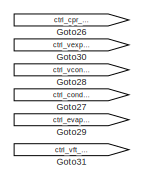
[diagram: root canvas - part 1/6, top left region]
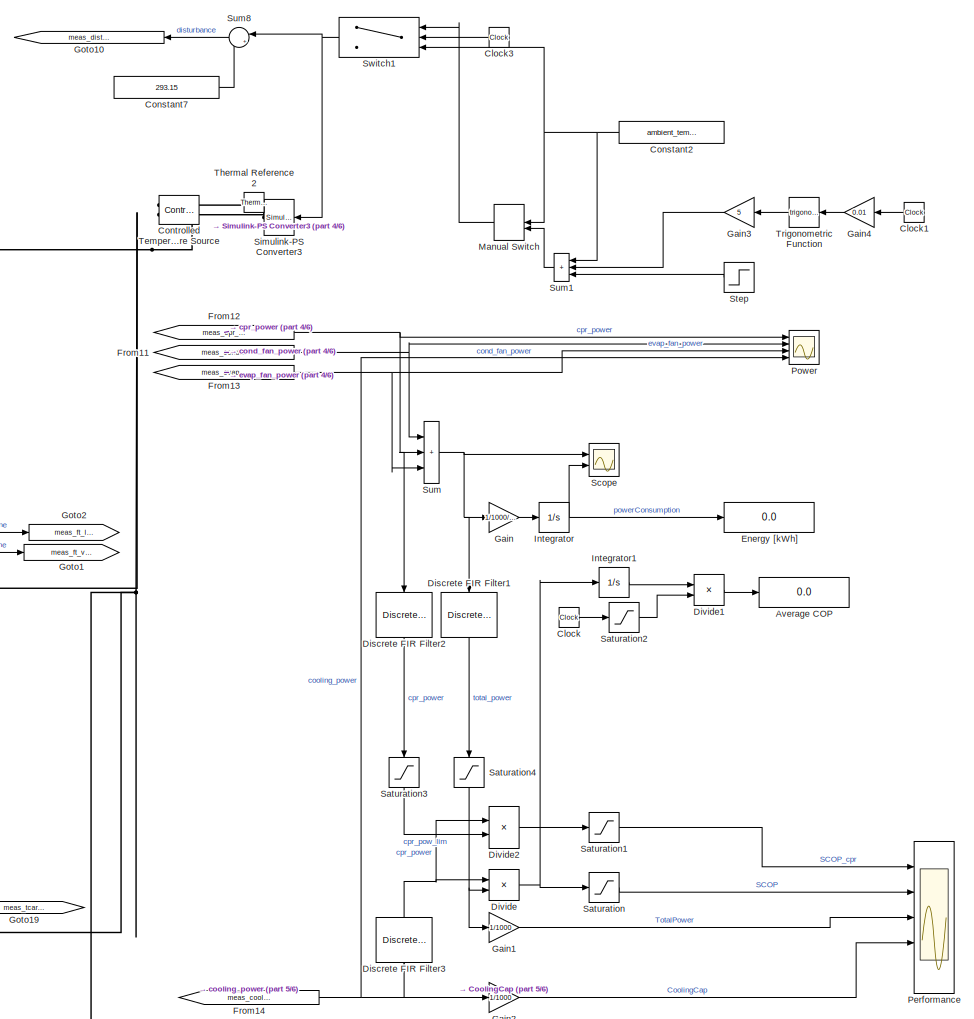
[diagram: root canvas - part 2/6, middle right region]
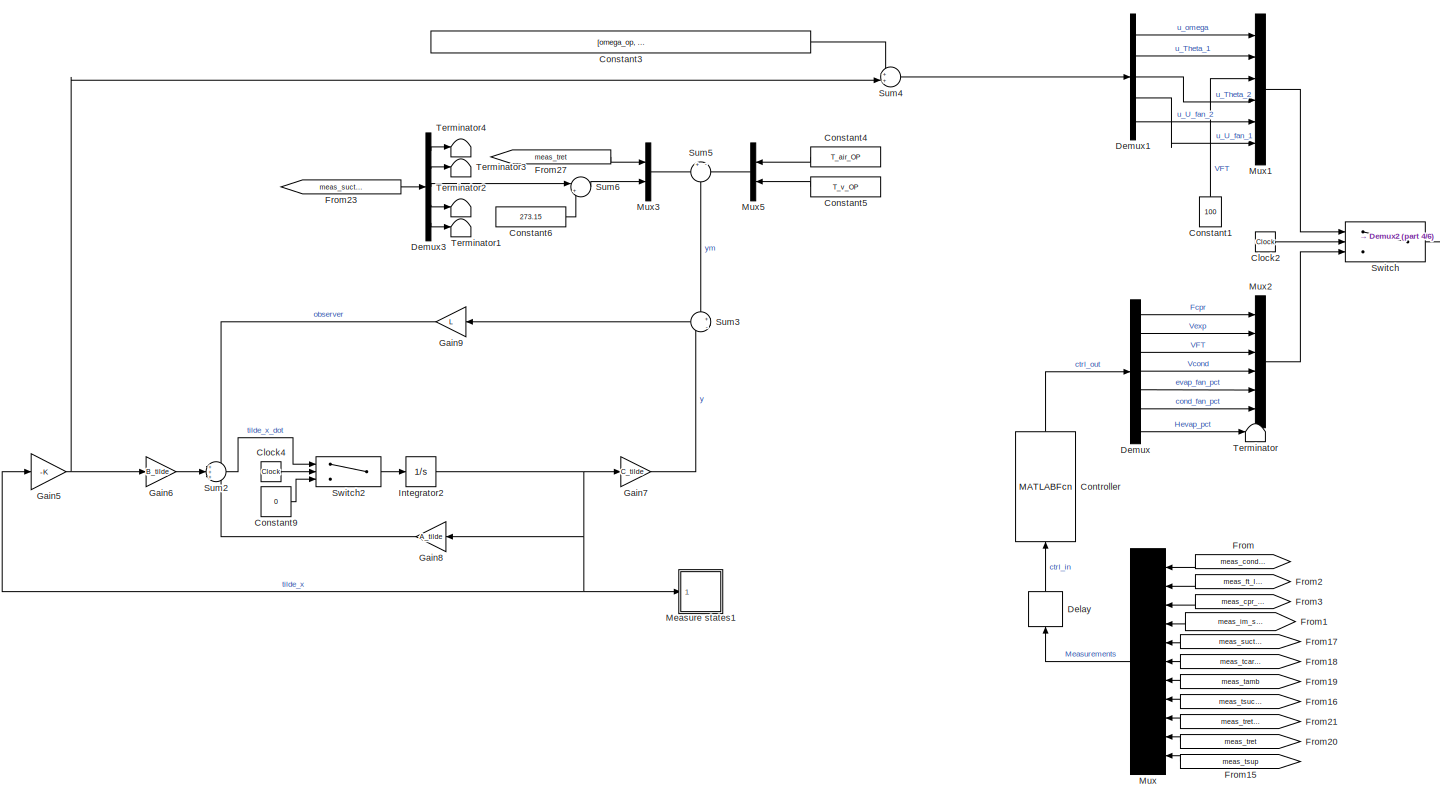
[diagram: root canvas - part 3/6, middle left region]
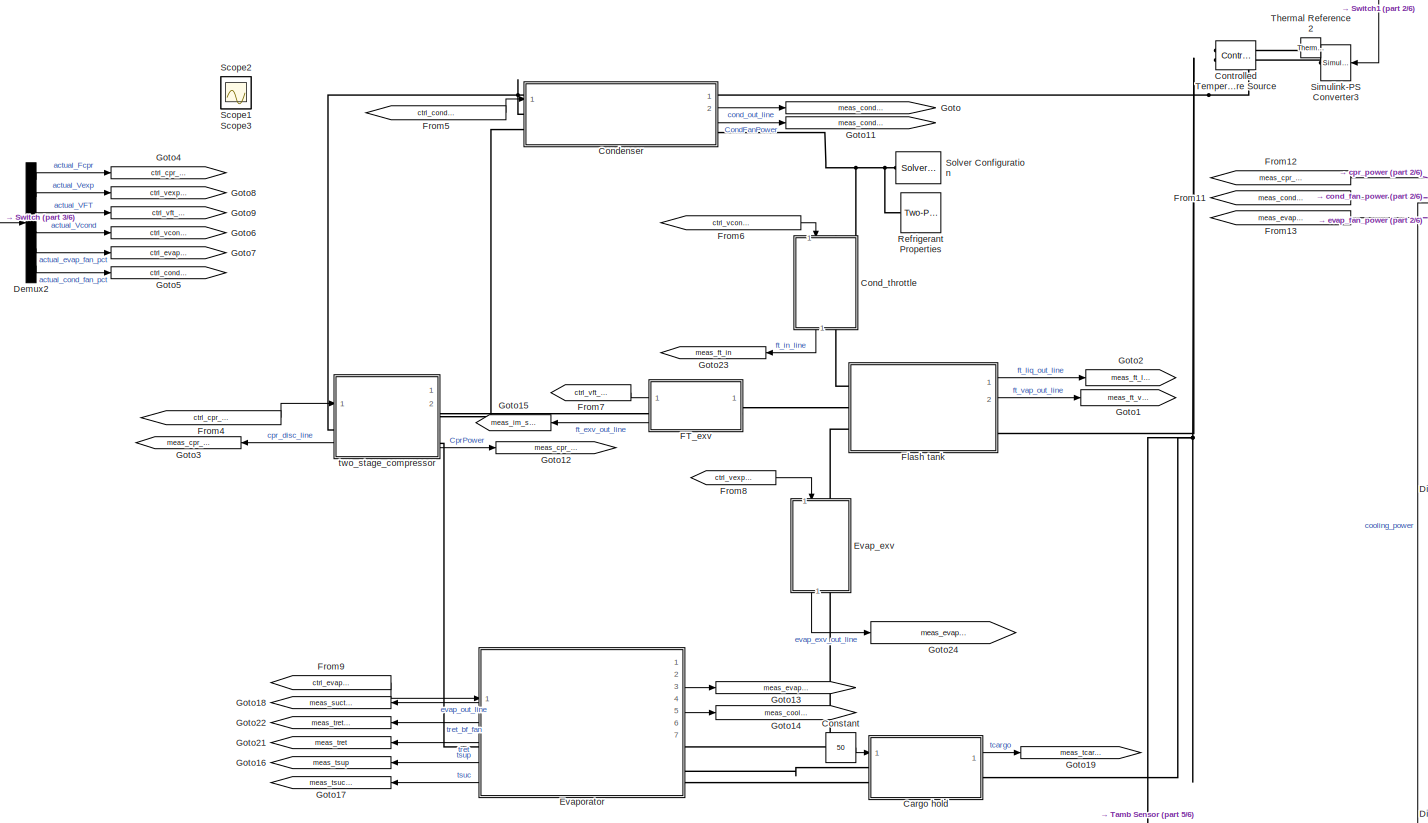
[diagram: root canvas - part 4/6, central region]
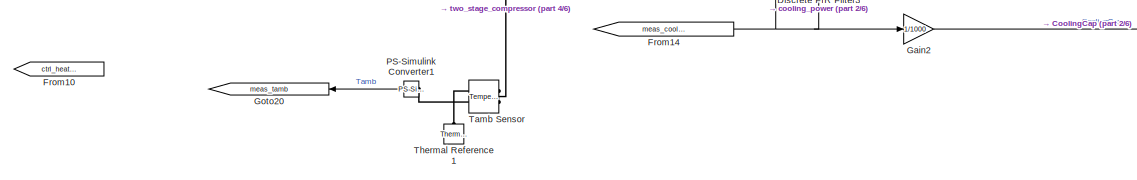
[diagram: root canvas - part 5/6, bottom right region]
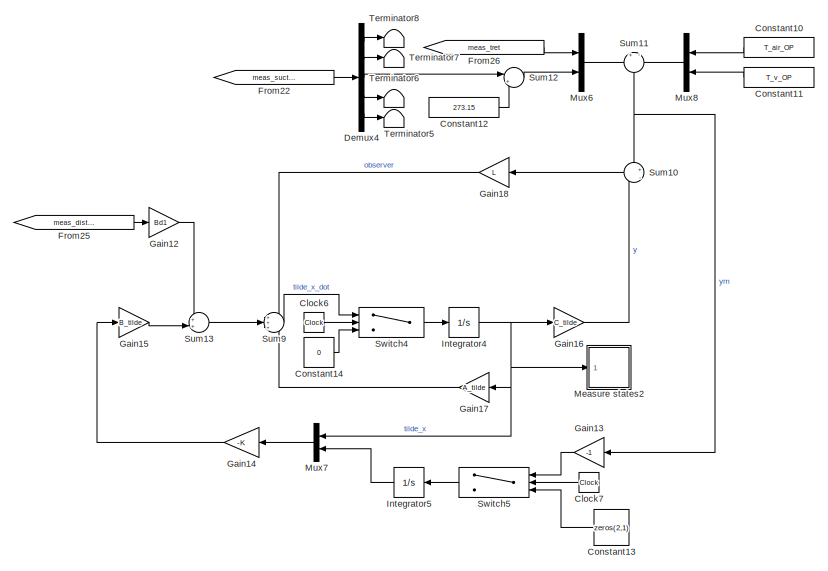
[diagram: root canvas - part 6/6, bottom left region]
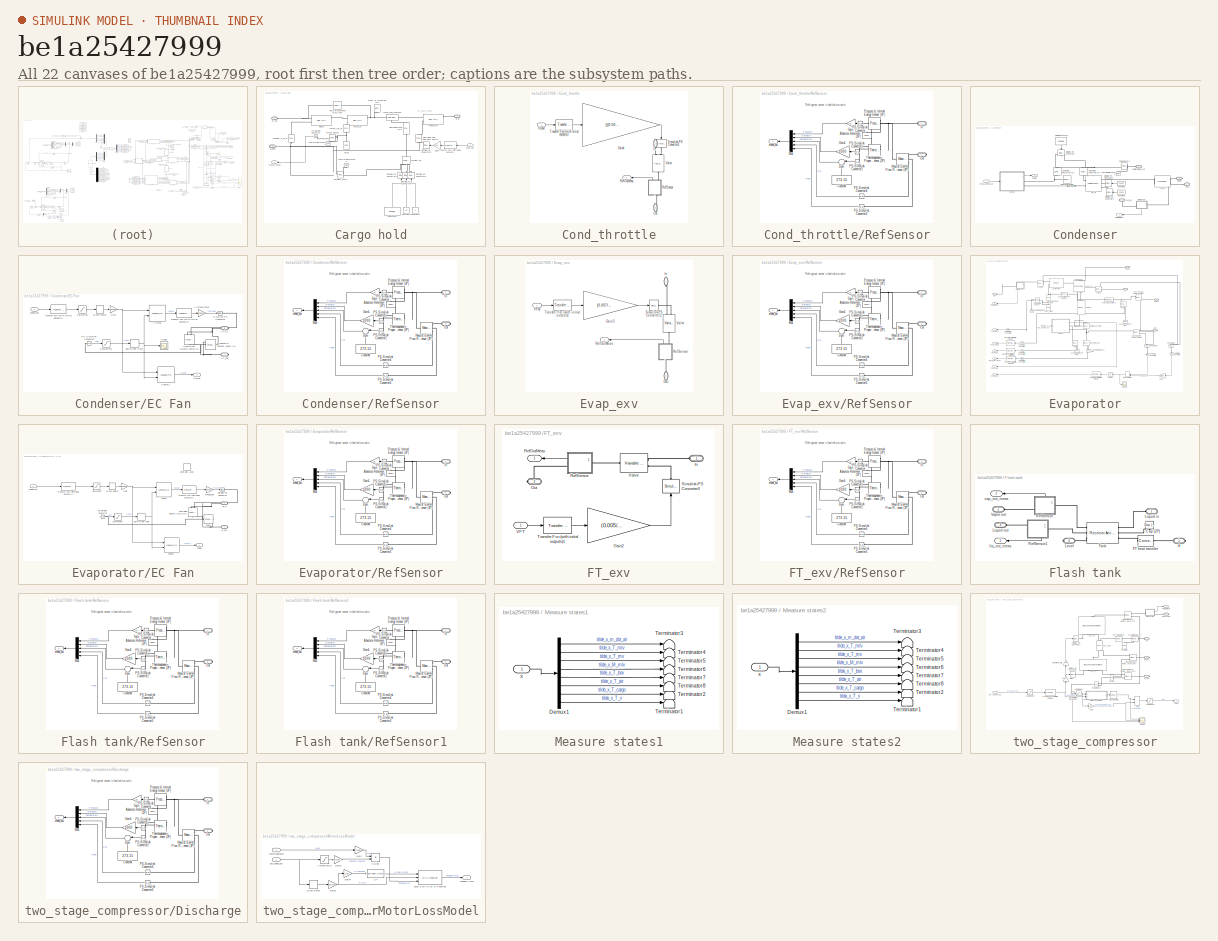
[diagram: thumbnail index - all 22 canvases of the model, root first then tree order]
MODEL slx_be1a25427999
KIND model
CONFIG AbsTol = 1e-2
CONFIG EnableMultiTasking = off
CONFIG FixedStep = auto
CONFIG InitFcn = eTRU_prototype_2_start_sim
CONFIG MaxStep = 1
CONFIG MinStep = auto
CONFIG PostLoadFcn = eTRU_prototype_2_init\n\n
CONFIG RelTol = 1e-2
CONFIG SampleTimeConstraint = Unconstrained
CONFIG SolverName = VariableStepAuto
CONFIG StartFcn = tic
CONFIG StartTime = 0.0
CONFIG StopFcn = toc\nPlotSimResults
CONFIG StopTime = 3000
BLOCK [Display] Average COP
  Decimation = 1
  Ports = [1]
BLOCK [SubSystem] Cargo hold
  NameLocation = top
  Ports = [1, 1, 0, 0, 0, 2, 1]
  RequestExecContextInheritance = off
BLOCK [PMIOPort] Cargo hold/Air_in
  NameLocation = top
  Port = 2
  Side = Left
BLOCK [PMIOPort] Cargo hold/Air_out
  Side = Left
BLOCK [PMIOPort] Cargo hold/Ambient
  Port = 3
  Side = Right
BLOCK [Reference] Cargo hold/Cargo  REF=fl_lib/Thermal/Thermal Elements/Thermal Mass
  NameLocation = right
  Ports = [0, 0, 0, 0, 0, 1]
  SourceBlock = fl_lib/Thermal/Thermal Elements/Thermal Mass
  SourceProductBaseCode = SS
  SourceType = Thermal Mass
BLOCK [Reference] Cargo hold/Cargo_hx  REF=fl_lib/Moist Air/Elements/Pipe (MA)
  Ports = [0, 0, 0, 0, 0, 2, 3]
  SourceBlock = fl_lib/Moist Air/Elements/Pipe (MA)
  SourceProductBaseCode = SS
  SourceType = Pipe (MA)
BLOCK [Constant] Cargo hold/Constant2
  NameLocation = right
  Value = 0
BLOCK [Constant] Cargo hold/Constant3
  NameLocation = right
  Value = 0.5
BLOCK [Constant] Cargo hold/Constant4
  NameLocation = right
  Value = 101300
BLOCK [Reference] Cargo hold/Controlled Heat Flow Rate Source  REF=fl_lib/Thermal/Thermal Sources/Controlled Heat Flow
Rate Source
  NameLocation = right
  Ports = [0, 0, 0, 0, 0, 1, 2]
  SourceBlock = fl_lib/Thermal/Thermal Sources/Controlled Heat Flow\nRate Source
  SourceProductBaseCode = SS
  SourceType = Controlled Heat Flow\nRate Source
BLOCK [Reference] Cargo hold/Flow Resistance (MA)  REF=fl_lib/Moist Air/Elements/Flow Resistance (MA)
  NameLocation = left
  Ports = [0, 0, 0, 0, 0, 1, 1]
  SourceBlock = fl_lib/Moist Air/Elements/Flow Resistance (MA)
  SourceProductBaseCode = SS
  SourceType = Flow Resistance (MA)
BLOCK [Gain] Cargo hold/Gain3
  Gain = 80
  NameLocation = top
BLOCK [Reference] Cargo hold/Moist Air Properties (MA)  REF=fl_lib/Moist Air/Utilities/Moist Air Properties
(MA)
  NameLocation = left
  Ports = [0, 0, 0, 0, 0, 0, 1]
  SourceBlock = fl_lib/Moist Air/Utilities/Moist Air Properties\n(MA)
  SourceProductBaseCode = SS
  SourceType = Moist Air Properties\n(MA)
BLOCK [Reference] Cargo hold/Natural convection mass flow  REF=fl_lib/Moist Air/Sources/Mass Flow Rate
Source (MA)
  Commented = on
  Ports = [0, 0, 0, 0, 0, 1, 1]
  SourceBlock = fl_lib/Moist Air/Sources/Mass Flow Rate\nSource (MA)
  SourceProductBaseCode = SS
  SourceType = Mass Flow Rate\nSource (MA)
BLOCK [Reference] Cargo hold/PS-Simulink Converter  REF=nesl_utility/PS-Simulink
Converter
  NameLocation = top
  Ports = [0, 1, 0, 0, 0, 1]
  SourceBlock = nesl_utility/PS-Simulink\nConverter
  SourceProductBaseCode = PW,SS
  SourceType = PS-Simulink\nConverter
BLOCK [Reference] Cargo hold/Simulink-PS Converter2  REF=nesl_utility/Simulink-PS
Converter
  NameLocation = top
  Ports = [1, 0, 0, 0, 0, 0, 1]
  SourceBlock = nesl_utility/Simulink-PS\nConverter
  SourceProductBaseCode = PW,SS
  SourceType = Simulink-PS\nConverter
BLOCK [Reference] Cargo hold/Simulink-PS Converter4  REF=nesl_utility/Simulink-PS
Converter
  NameLocation = right
  Ports = [1, 0, 0, 0, 0, 0, 1]
  SourceBlock = nesl_utility/Simulink-PS\nConverter
  SourceProductBaseCode = PW,SS
  SourceType = Simulink-PS\nConverter
BLOCK [Reference] Cargo hold/Simulink-PS Converter5  REF=nesl_utility/Simulink-PS
Converter
  NameLocation = right
  Ports = [1, 0, 0, 0, 0, 0, 1]
  SourceBlock = nesl_utility/Simulink-PS\nConverter
  SourceProductBaseCode = PW,SS
  SourceType = Simulink-PS\nConverter
BLOCK [Reference] Cargo hold/Simulink-PS Converter6  REF=nesl_utility/Simulink-PS
Converter
  NameLocation = right
  Ports = [1, 0, 0, 0, 0, 0, 1]
  SourceBlock = nesl_utility/Simulink-PS\nConverter
  SourceProductBaseCode = PW,SS
  SourceType = Simulink-PS\nConverter
BLOCK [Reference] Cargo hold/Tcargo Sensor  REF=fl_lib/Thermal/Thermal Sensors/Temperature Sensor
  NameLocation = top
  Ports = [0, 0, 0, 0, 0, 1, 2]
  SourceBlock = fl_lib/Thermal/Thermal Sensors/Temperature Sensor
  SourceProductBaseCode = SS
  SourceType = Temperature Sensor
BLOCK [Outport] Cargo hold/Tcargo_meas
  NameLocation = top
BLOCK [Reference] Cargo hold/Thermal Reference1  REF=fl_lib/Thermal/Thermal Elements/Thermal Reference
  NameLocation = right
  Ports = [0, 0, 0, 0, 0, 1]
  SourceBlock = fl_lib/Thermal/Thermal Elements/Thermal Reference
  SourceProductBaseCode = SS
  SourceType = Thermal Reference
BLOCK [Reference] Cargo hold/Thermal Reference2  REF=fl_lib/Thermal/Thermal Elements/Thermal Reference
  NameLocation = left
  Ports = [0, 0, 0, 0, 0, 1]
  SourceBlock = fl_lib/Thermal/Thermal Elements/Thermal Reference
  SourceProductBaseCode = SS
  SourceType = Thermal Reference
BLOCK [Reference] Cargo hold/Transfer Fcn (with initial outputs)  REF=simulink_extras/Additional
Linear/Transfer Fcn
(with initial outputs)
  NameLocation = top
  Ports = [1, 1]
  SourceBlock = simulink_extras/Additional\nLinear/Transfer Fcn\n(with initial outputs)
  SourceProductBaseCode = SL
  SourceType = Transfer Function with Initial Outputs
BLOCK [Reference] Cargo hold/ambient_2_air_ht  REF=fl_lib/Thermal/Thermal Elements/Convective Heat
Transfer
  NameLocation = left
  Ports = [0, 0, 0, 0, 0, 1, 1]
  SourceBlock = fl_lib/Thermal/Thermal Elements/Convective Heat\nTransfer
  SourceProductBaseCode = SS
  SourceType = Convective Heat\nTransfer
BLOCK [Reference] Cargo hold/ambient_air  REF=fl_lib/Moist Air/Elements/Controlled Reservoir
(MA)
  NameLocation = right
  Ports = [0, 0, 0, 0, 0, 1, 4]
  SourceBlock = fl_lib/Moist Air/Elements/Controlled Reservoir\n(MA)
  SourceProductBaseCode = SS
  SourceType = Controlled Reservoir\n(MA)
BLOCK [Reference] Cargo hold/ambient_temp  REF=fl_lib/Thermal/Thermal Sensors/Temperature Sensor
  Ports = [0, 0, 0, 0, 0, 1, 2]
  SourceBlock = fl_lib/Thermal/Thermal Sensors/Temperature Sensor
  SourceProductBaseCode = SS
  SourceType = Temperature Sensor
BLOCK [Reference] Cargo hold/cargo_2_air_ht  REF=fl_lib/Thermal/Thermal Elements/Convective Heat
Transfer
  NameLocation = left
  Ports = [0, 0, 0, 0, 0, 1, 1]
  SourceBlock = fl_lib/Thermal/Thermal Elements/Convective Heat\nTransfer
  SourceProductBaseCode = SS
  SourceType = Convective Heat\nTransfer
BLOCK [Reference] Cargo hold/cargo_flow_resitance  REF=fl_lib/Moist Air/Elements/Flow Resistance (MA)
  NameLocation = top
  Ports = [0, 0, 0, 0, 0, 1, 1]
  SourceBlock = fl_lib/Moist Air/Elements/Flow Resistance (MA)
  SourceProductBaseCode = SS
  SourceType = Flow Resistance (MA)
BLOCK [Inport] Cargo hold/heat_pct
  NameLocation = top
BLOCK [Reference] Cargo hold/heating_hx  REF=fl_lib/Moist Air/Elements/Pipe (MA)
  Ports = [0, 0, 0, 0, 0, 2, 3]
  SourceBlock = fl_lib/Moist Air/Elements/Pipe (MA)
  SourceProductBaseCode = SS
  SourceType = Pipe (MA)
BLOCK [Reference] Cargo hold/wall_hx  REF=fl_lib/Moist Air/Elements/Pipe (MA)
  Ports = [0, 0, 0, 0, 0, 2, 3]
  SourceBlock = fl_lib/Moist Air/Elements/Pipe (MA)
  SourceProductBaseCode = SS
  SourceType = Pipe (MA)
BLOCK [Clock] Clock
BLOCK [Clock] Clock1
  NameLocation = top
BLOCK [Clock] Clock2
BLOCK [Clock] Clock3
  NameLocation = top
BLOCK [Clock] Clock4
BLOCK [Clock] Clock6
  Commented = on
BLOCK [Clock] Clock7
  Commented = on
  NameLocation = top
BLOCK [SubSystem] Cond_throttle
  NameLocation = left
  Ports = [1, 1, 0, 0, 0, 1, 1]
  RequestExecContextInheritance = off
BLOCK [Gain] Cond_throttle/Gain4
  Gain = (((0.005/2)^2)*pi)/100*2
BLOCK [PMIOPort] Cond_throttle/In
  NameLocation = left
  Side = Left
BLOCK [PMIOPort] Cond_throttle/Out
  NameLocation = left
  Port = 2
  Side = Right
BLOCK [Outport] Cond_throttle/RefOutMeas
  NameLocation = top
BLOCK [SubSystem] Cond_throttle/RefSensor
  NameLocation = left
  PortSchema = {"entries":[{"content":{"sides":[{"content":{"connectorIds":["LConn1","Out1"]},"type":"ConnectorPlacement.EquallySpacedRectSide","uuid":"384ca129-c08e-4242-8b56-38a57a5275bd"},{"content":{"connectorIds":["RConn1"],"side":"RIGHT"},"type":"ConnectorPlacement.EquallySpacedRectSide","uuid":"d8d27130-51db-4533-93b1-df7418a29f3a"},{"content":{"connectorIds":[],"side":"TOP"},"type":"ConnectorPlacement.Eq...<+398ch>
  Ports = [0, 1, 0, 0, 0, 1, 1]
  RequestExecContextInheritance = off
BLOCK [Reference] Cond_throttle/RefSensor/Absolute Reference (2P)  REF=fl_lib/Two-Phase Fluid/Elements/Absolute Reference
(2P)
  NameLocation = right
  Ports = [0, 0, 0, 0, 0, 1]
  SourceBlock = fl_lib/Two-Phase Fluid/Elements/Absolute Reference\n(2P)
  SourceProductBaseCode = SS
  SourceType = Absolute Reference\n(2P)
BLOCK [Constant] Cond_throttle/RefSensor/Constant
  NameLocation = right
  Value = 273.15
BLOCK [Gain] Cond_throttle/RefSensor/Gain
  Gain = 10
  NameLocation = top
BLOCK [Gain] Cond_throttle/RefSensor/Gain1
  Gain = 1000
  NameLocation = top
BLOCK [PMIOPort] Cond_throttle/RefSensor/In
  Side = Left
BLOCK [Reference] Cond_throttle/RefSensor/Mass & Energy Flow Rate Sensor (2P)  REF=fl_lib/Two-Phase Fluid/Sensors/Mass & Energy Flow
Rate Sensor (2P)
  Ports = [0, 0, 0, 0, 0, 1, 3]
  SourceBlock = fl_lib/Two-Phase Fluid/Sensors/Mass & Energy Flow\nRate Sensor (2P)
  SourceProductBaseCode = SS
  SourceType = Mass & Energy Flow\nRate Sensor (2P)
BLOCK [Mux] Cond_throttle/RefSensor/Mux
  DisplayOption = bar
  Inputs = 5
  NameLocation = top
  Ports = [5, 1]
BLOCK [PMIOPort] Cond_throttle/RefSensor/Out
  Port = 2
  Side = Right
BLOCK [Reference] Cond_throttle/RefSensor/PS-Simulink Converter  REF=nesl_utility/PS-Simulink
Converter
  NameLocation = top
  Ports = [0, 1, 0, 0, 0, 1]
  SourceBlock = nesl_utility/PS-Simulink\nConverter
  SourceProductBaseCode = PW,SS
  SourceType = PS-Simulink\nConverter
BLOCK [Reference] Cond_throttle/RefSensor/PS-Simulink Converter1  REF=nesl_utility/PS-Simulink
Converter
  NameLocation = top
  Ports = [0, 1, 0, 0, 0, 1]
  SourceBlock = nesl_utility/PS-Simulink\nConverter
  SourceProductBaseCode = PW,SS
  SourceType = PS-Simulink\nConverter
BLOCK [Reference] Cond_throttle/RefSensor/PS-Simulink Converter2  REF=nesl_utility/PS-Simulink
Converter
  NameLocation = top
  Ports = [0, 1, 0, 0, 0, 1]
  SourceBlock = nesl_utility/PS-Simulink\nConverter
  SourceProductBaseCode = PW,SS
  SourceType = PS-Simulink\nConverter
BLOCK [Reference] Cond_throttle/RefSensor/PS-Simulink Converter3  REF=nesl_utility/PS-Simulink
Converter
  NameLocation = top
  Ports = [0, 1, 0, 0, 0, 1]
  SourceBlock = nesl_utility/PS-Simulink\nConverter
  SourceProductBaseCode = PW,SS
  SourceType = PS-Simulink\nConverter
BLOCK [Reference] Cond_throttle/RefSensor/PS-Simulink Converter4  REF=nesl_utility/PS-Simulink
Converter
  NameLocation = top
  Ports = [0, 1, 0, 0, 0, 1]
  SourceBlock = nesl_utility/PS-Simulink\nConverter
  SourceProductBaseCode = PW,SS
  SourceType = PS-Simulink\nConverter
BLOCK [Reference] Cond_throttle/RefSensor/Pressure & Internal Energy Sensor (2P)  REF=fl_lib/Two-Phase Fluid/Sensors/Pressure & Internal
Energy Sensor (2P)
  NameLocation = top
  Ports = [0, 0, 0, 0, 0, 1, 3]
  SourceBlock = fl_lib/Two-Phase Fluid/Sensors/Pressure & Internal\nEnergy Sensor (2P)
  SourceProductBaseCode = SS
  SourceType = Pressure & Internal\nEnergy Sensor (2P)
BLOCK [Sum] Cond_throttle/RefSensor/Sum
  Inputs = |+-
  Ports = [2, 1]
BLOCK [Reference] Cond_throttle/RefSensor/Thermodynamic Properties Sensor (2P)  REF=fl_lib/Two-Phase Fluid/Sensors/Thermodynamic
Properties Sensor
(2P)
  NameLocation = top
  Ports = [0, 0, 0, 0, 0, 1, 4]
  SourceBlock = fl_lib/Two-Phase Fluid/Sensors/Thermodynamic\nProperties Sensor\n(2P)
  SourceProductBaseCode = SS
  SourceType = Thermodynamic\nProperties Sensor\n(2P)
BLOCK [Outport] Cond_throttle/RefSensor/meas_out
  NameLocation = top
BLOCK [Reference] Cond_throttle/Simulink-PS Converter4  REF=nesl_utility/Simulink-PS
Converter
  NameLocation = left
  Ports = [1, 0, 0, 0, 0, 0, 1]
  SourceBlock = nesl_utility/Simulink-PS\nConverter
  SourceProductBaseCode = PW,SS
  SourceType = Simulink-PS\nConverter
BLOCK [Reference] Cond_throttle/Transfer Fcn (with initial outputs)2  REF=simulink_extras/Additional
Linear/Transfer Fcn
(with initial outputs)
  Ports = [1, 1]
  SourceBlock = simulink_extras/Additional\nLinear/Transfer Fcn\n(with initial outputs)
  SourceProductBaseCode = SL
  SourceType = Transfer Function with Initial Outputs
BLOCK [Reference] Cond_throttle/Valve  REF=fl_lib/Two-Phase Fluid/Elements/Variable Local
Restriction (2P)
  NameLocation = left
  Ports = [0, 0, 0, 0, 0, 2, 1]
  SourceBlock = fl_lib/Two-Phase Fluid/Elements/Variable Local\nRestriction (2P)
  SourceProductBaseCode = SS
  SourceType = Variable Local\nRestriction (2P)
BLOCK [Inport] Cond_throttle/Vcond
BLOCK [SubSystem] Condenser
  PortSchema = {"entries":[{"content":{"sides":[{"content":{"connectorIds":["LConn1","In1","LConn2"]},"type":"ConnectorPlacement.EquallySpacedRectSide","uuid":"3d48dd4d-d64c-4c15-b87d-785ca519fd3e"},{"content":{"connectorIds":["RConn1","Out1","Out2","RConn2"],"side":"RIGHT"},"type":"ConnectorPlacement.EquallySpacedRectSide","uuid":"adb43978-d4cf-4a53-b69c-b8e1726fc973"},{"content":{"connectorIds":[],"side":"TOP"...<+285ch>
  Ports = [1, 2, 0, 0, 0, 2, 2]
  RequestExecContextInheritance = off
BLOCK [Constant] Condenser/Ambient pressure
  NameLocation = left
  Value = 101300
BLOCK [Constant] Condenser/Constant1
  NameLocation = top
  Value = 20000
BLOCK [Constant] Condenser/Constant2
  NameLocation = top
  Value = 20000
BLOCK [Reference] Condenser/Controlled Reservoir (G)  REF=fl_lib/Gas/Elements/Controlled Reservoir
(G)
  NameLocation = left
  Ports = [0, 0, 0, 0, 0, 1, 2]
  SourceBlock = fl_lib/Gas/Elements/Controlled Reservoir\n(G)
  SourceProductBaseCode = SS
  SourceType = Controlled Reservoir\n(G)
BLOCK [Reference] Condenser/Controlled Reservoir (G)1  REF=fl_lib/Gas/Elements/Controlled Reservoir
(G)
  NameLocation = left
  Ports = [0, 0, 0, 0, 0, 1, 2]
  SourceBlock = fl_lib/Gas/Elements/Controlled Reservoir\n(G)
  SourceProductBaseCode = SS
  SourceType = Controlled Reservoir\n(G)
BLOCK [SubSystem] Condenser/EC Fan
  Ports = [1, 1, 0, 0, 0, 0, 2]
  RequestExecContextInheritance = off
BLOCK [RateLimiter] Condenser/EC Fan/10 sec Ramp
  FallingSlewLimit = -300
  RisingSlewLimit = 300
  SampleTimeMode = inherited
BLOCK [Lookup_n-D] Condenser/EC Fan/AirFlow
  BeginIndexSearchUsingPreviousIndexResult = on
  BreakpointsForDimension1 = Speed
  BreakpointsForDimension2 = Pressure
  InputPortMap = u0,u1
  InternalRulePriority = Speed
  Ports = [2, 1]
  RndMeth = Simplest
  Table = AirFlow
BLOCK [Gain] Condenser/EC Fan/AirFlowScale
  Gain = 1/3600
  NameLocation = top
BLOCK [PMIOPort] Condenser/EC Fan/Air_in
  Port = 2
  Side = Right
BLOCK [PMIOPort] Condenser/EC Fan/Air_out
  Side = Right
BLOCK [Reference] Condenser/EC Fan/Controlled Volumetric Flow Rate Source (G)  REF=fl_lib/Gas/Sources/Controlled
Volumetric Flow Rate
Source (G)
  NameLocation = left
  Ports = [0, 0, 0, 0, 0, 2, 1]
  SourceBlock = fl_lib/Gas/Sources/Controlled\nVolumetric Flow Rate\nSource (G)
  SourceProductBaseCode = SS
  SourceType = Controlled\nVolumetric Flow Rate\nSource (G)
BLOCK [Gain] Condenser/EC Fan/Gain
  Gain = 3060/100
BLOCK [Reference] Condenser/EC Fan/PS-Simulink Converter  REF=nesl_utility/PS-Simulink
Converter
  NameLocation = right
  Ports = [0, 1, 0, 0, 0, 1]
  SourceBlock = nesl_utility/PS-Simulink\nConverter
  SourceProductBaseCode = PW,SS
  SourceType = PS-Simulink\nConverter
BLOCK [Outport] Condenser/EC Fan/Power
BLOCK [Lookup_n-D] Condenser/EC Fan/Power1
  BeginIndexSearchUsingPreviousIndexResult = on
  BreakpointsForDimension1 = Speed
  BreakpointsForDimension2 = Pressure
  InputPortMap = u0,u1
  InternalRulePriority = Speed
  Ports = [2, 1]
  RndMeth = Simplest
  Table = Power
BLOCK [Reference] Condenser/EC Fan/Pressure & Temperature Sensor (G)  REF=fl_lib/Gas/Sensors/Pressure &
Temperature Sensor
(G)
  Ports = [0, 0, 0, 0, 0, 1, 3]
  SourceBlock = fl_lib/Gas/Sensors/Pressure &\nTemperature Sensor\n(G)
  SourceProductBaseCode = SS
  SourceType = Pressure &\nTemperature Sensor\n(G)
BLOCK [Saturate] Condenser/EC Fan/Saturation
  LowerLimit = 0
  UpperLimit = 100
BLOCK [Saturate] Condenser/EC Fan/Saturation1
  LowerLimit = 0
  UpperLimit = 865
BLOCK [Scope] Condenser/EC Fan/Scope
  Floating = off
  NumInputPorts = 1
  Ports = [1]
  ScopeSpecificationString = Simulink.scopes.TimeScopeBlockCfg('CurrentConfiguration', extmgr.ConfigurationSet(extmgr.Configuration('Core','General UI',true),extmgr.Configuration('Core','Source UI',true),extmgr.Configuration('Sources','WiredSimulink',true,'DataLoggingVariableName','ScopeData1'),extmgr.Configuration('Visuals','Time Domain',true,'SerializedDisplays',{struct('MinYLimReal','-3.125','MaxYLimReal','28.125','YLabelR...<+1395ch>
BLOCK [Reference] Condenser/EC Fan/Simulink-PS Converter  REF=nesl_utility/Simulink-PS
Converter
  Ports = [1, 0, 0, 0, 0, 0, 1]
  SourceBlock = nesl_utility/Simulink-PS\nConverter
  SourceProductBaseCode = PW,SS
  SourceType = Simulink-PS\nConverter
BLOCK [Reference] Condenser/EC Fan/Transfer Fcn (with initial outputs)1  REF=simulink_extras/Additional
Linear/Transfer Fcn
(with initial outputs)
  Ports = [1, 1]
  SourceBlock = simulink_extras/Additional\nLinear/Transfer Fcn\n(with initial outputs)
  SourceProductBaseCode = SL
  SourceType = Transfer Function with Initial Outputs
BLOCK [Reference] Condenser/EC Fan/Transfer Fcn (with initial outputs)2  REF=simulink_extras/Additional
Linear/Transfer Fcn
(with initial outputs)
  Ports = [1, 1]
  SourceBlock = simulink_extras/Additional\nLinear/Transfer Fcn\n(with initial outputs)
  SourceProductBaseCode = SL
  SourceType = Transfer Function with Initial Outputs
BLOCK [ZeroOrderHold] Condenser/EC Fan/Zero-Order Hold
  SampleTime = -1
BLOCK [Inport] Condenser/EC Fan/speed_pct
BLOCK [Reference] Condenser/Natural convection  REF=fl_lib/Gas/Sources/Mass Flow Rate
Source (G)
  NameLocation = top
  Ports = [0, 0, 0, 0, 0, 1, 1]
  SourceBlock = fl_lib/Gas/Sources/Mass Flow Rate\nSource (G)
  SourceProductBaseCode = SS
  SourceType = Mass Flow Rate\nSource (G)
BLOCK [Outport] Condenser/Power
  Port = 2
BLOCK [Outport] Condenser/RefOutMeas
  NameLocation = top
BLOCK [SubSystem] Condenser/RefSensor
  NameLocation = top
  Ports = [0, 1, 0, 0, 0, 1, 1]
  RequestExecContextInheritance = off
BLOCK [Reference] Condenser/RefSensor/Absolute Reference (2P)  REF=fl_lib/Two-Phase Fluid/Elements/Absolute Reference
(2P)
  NameLocation = right
  Ports = [0, 0, 0, 0, 0, 1]
  SourceBlock = fl_lib/Two-Phase Fluid/Elements/Absolute Reference\n(2P)
  SourceProductBaseCode = SS
  SourceType = Absolute Reference\n(2P)
BLOCK [Constant] Condenser/RefSensor/Constant
  NameLocation = right
  Value = 273.15
BLOCK [Gain] Condenser/RefSensor/Gain
  Gain = 10
  NameLocation = top
BLOCK [Gain] Condenser/RefSensor/Gain1
  Gain = 1000
  NameLocation = top
BLOCK [PMIOPort] Condenser/RefSensor/In
  Side = Left
BLOCK [Reference] Condenser/RefSensor/Mass & Energy Flow Rate Sensor (2P)  REF=fl_lib/Two-Phase Fluid/Sensors/Mass & Energy Flow
Rate Sensor (2P)
  Ports = [0, 0, 0, 0, 0, 1, 3]
  SourceBlock = fl_lib/Two-Phase Fluid/Sensors/Mass & Energy Flow\nRate Sensor (2P)
  SourceProductBaseCode = SS
  SourceType = Mass & Energy Flow\nRate Sensor (2P)
BLOCK [Mux] Condenser/RefSensor/Mux
  DisplayOption = bar
  Inputs = 5
  NameLocation = top
  Ports = [5, 1]
BLOCK [PMIOPort] Condenser/RefSensor/Out
  Port = 2
  Side = Right
BLOCK [Reference] Condenser/RefSensor/PS-Simulink Converter  REF=nesl_utility/PS-Simulink
Converter
  NameLocation = top
  Ports = [0, 1, 0, 0, 0, 1]
  SourceBlock = nesl_utility/PS-Simulink\nConverter
  SourceProductBaseCode = PW,SS
  SourceType = PS-Simulink\nConverter
BLOCK [Reference] Condenser/RefSensor/PS-Simulink Converter1  REF=nesl_utility/PS-Simulink
Converter
  NameLocation = top
  Ports = [0, 1, 0, 0, 0, 1]
  SourceBlock = nesl_utility/PS-Simulink\nConverter
  SourceProductBaseCode = PW,SS
  SourceType = PS-Simulink\nConverter
BLOCK [Reference] Condenser/RefSensor/PS-Simulink Converter2  REF=nesl_utility/PS-Simulink
Converter
  NameLocation = top
  Ports = [0, 1, 0, 0, 0, 1]
  SourceBlock = nesl_utility/PS-Simulink\nConverter
  SourceProductBaseCode = PW,SS
  SourceType = PS-Simulink\nConverter
BLOCK [Reference] Condenser/RefSensor/PS-Simulink Converter3  REF=nesl_utility/PS-Simulink
Converter
  NameLocation = top
  Ports = [0, 1, 0, 0, 0, 1]
  SourceBlock = nesl_utility/PS-Simulink\nConverter
  SourceProductBaseCode = PW,SS
  SourceType = PS-Simulink\nConverter
BLOCK [Reference] Condenser/RefSensor/PS-Simulink Converter4  REF=nesl_utility/PS-Simulink
Converter
  NameLocation = top
  Ports = [0, 1, 0, 0, 0, 1]
  SourceBlock = nesl_utility/PS-Simulink\nConverter
  SourceProductBaseCode = PW,SS
  SourceType = PS-Simulink\nConverter
BLOCK [Reference] Condenser/RefSensor/Pressure & Internal Energy Sensor (2P)  REF=fl_lib/Two-Phase Fluid/Sensors/Pressure & Internal
Energy Sensor (2P)
  NameLocation = top
  Ports = [0, 0, 0, 0, 0, 1, 3]
  SourceBlock = fl_lib/Two-Phase Fluid/Sensors/Pressure & Internal\nEnergy Sensor (2P)
  SourceProductBaseCode = SS
  SourceType = Pressure & Internal\nEnergy Sensor (2P)
BLOCK [Sum] Condenser/RefSensor/Sum
  Inputs = |+-
  Ports = [2, 1]
BLOCK [Reference] Condenser/RefSensor/Thermodynamic Properties Sensor (2P)  REF=fl_lib/Two-Phase Fluid/Sensors/Thermodynamic
Properties Sensor
(2P)
  NameLocation = top
  Ports = [0, 0, 0, 0, 0, 1, 4]
  SourceBlock = fl_lib/Two-Phase Fluid/Sensors/Thermodynamic\nProperties Sensor\n(2P)
  SourceProductBaseCode = SS
  SourceType = Thermodynamic\nProperties Sensor\n(2P)
BLOCK [Outport] Condenser/RefSensor/meas_out
  NameLocation = top
BLOCK [Reference] Condenser/Simulink-PS Converter1  REF=nesl_utility/Simulink-PS
Converter
  NameLocation = left
  Ports = [1, 0, 0, 0, 0, 0, 1]
  SourceBlock = nesl_utility/Simulink-PS\nConverter
  SourceProductBaseCode = PW,SS
  SourceType = Simulink-PS\nConverter
BLOCK [Reference] Condenser/Simulink-PS Converter2  REF=nesl_utility/Simulink-PS
Converter
  NameLocation = top
  Ports = [1, 0, 0, 0, 0, 0, 1]
  SourceBlock = nesl_utility/Simulink-PS\nConverter
  SourceProductBaseCode = PW,SS
  SourceType = Simulink-PS\nConverter
BLOCK [Reference] Condenser/Simulink-PS Converter3  REF=nesl_utility/Simulink-PS
Converter
  NameLocation = top
  Ports = [1, 0, 0, 0, 0, 0, 1]
  SourceBlock = nesl_utility/Simulink-PS\nConverter
  SourceProductBaseCode = PW,SS
  SourceType = Simulink-PS\nConverter
BLOCK [Reference] Condenser/Tamb Sensor1  REF=fl_lib/Thermal/Thermal Sensors/Temperature Sensor
  NameLocation = top
  Ports = [0, 0, 0, 0, 0, 1, 2]
  SourceBlock = fl_lib/Thermal/Thermal Sensors/Temperature Sensor
  SourceProductBaseCode = SS
  SourceType = Temperature Sensor
BLOCK [Reference] Condenser/Thermal Reference2  REF=fl_lib/Thermal/Thermal Elements/Thermal Reference
  NameLocation = right
  Ports = [0, 0, 0, 0, 0, 1]
  SourceBlock = fl_lib/Thermal/Thermal Elements/Thermal Reference
  SourceProductBaseCode = SS
  SourceType = Thermal Reference
BLOCK [Reference] Condenser/air_hx  REF=SimscapeFluids_lib/Fluid Network
Interfaces/Heat Exchangers/Heat Exchanger (G)
  Ports = [0, 0, 0, 0, 0, 2, 3]
  SourceBlock = SimscapeFluids_lib/Fluid Network\nInterfaces/Heat Exchangers/Heat Exchanger (G)
  SourceProductBaseCode = SH
  SourceType = Heat Exchanger (G)
BLOCK [PMIOPort] Condenser/ambient_temp_ref
  NameLocation = top
  Side = Left
BLOCK [Inport] Condenser/cond_speed_pct
BLOCK [Reference] Condenser/ref_hx  REF=SimscapeFluids_lib/Two-Phase Fluid/Pipes & Fittings/3-Zone Pipe (2P)
  NameLocation = top
  Ports = [0, 0, 0, 0, 0, 2, 2]
  SourceBlock = SimscapeFluids_lib/Two-Phase Fluid/Pipes & Fittings/3-Zone Pipe (2P)
  SourceProductBaseCode = SH
  SourceType = 3-Zone Pipe (2P)
BLOCK [PMIOPort] Condenser/ref_in
  Port = 2
  Side = Left
BLOCK [PMIOPort] Condenser/ref_out
  Port = 4
  Side = Right
BLOCK [PMIOPort] Condenser/sigma
  Port = 3
  Side = Right
BLOCK [Constant] Constant
  Value = 50
BLOCK [Constant] Constant1
  NameLocation = top
  Value = 100
BLOCK [Constant] Constant10
  Commented = on
  NameLocation = top
  Value = T_air_OP
BLOCK [Constant] Constant11
  Commented = on
  NameLocation = top
  Value = T_v_OP
BLOCK [Constant] Constant12
  Commented = on
  Value = 273.15
BLOCK [Constant] Constant13
  Commented = on
  NameLocation = top
  Value = zeros(2,1)
BLOCK [Constant] Constant14
  Commented = on
  Value = 0
BLOCK [Constant] Constant2
  NameLocation = top
  Value = ambient_temp+273.15
BLOCK [Constant] Constant3
  Value = [omega_op, Theta_1_op, Theta_2_op, U_fan_1_op, U_fan_2_op]'
  VectorParams1D = off
BLOCK [Constant] Constant4
  NameLocation = top
  Value = T_air_OP
BLOCK [Constant] Constant5
  NameLocation = top
  Value = T_v_OP
BLOCK [Constant] Constant6
  Value = 273.15
BLOCK [Constant] Constant7
  Value = 293.15
BLOCK [Constant] Constant9
  Value = 0
BLOCK [Reference] Controlled Temperature Source  REF=fl_lib/Thermal/Thermal Sources/Controlled
Temperature Source
  NameLocation = top
  Ports = [0, 0, 0, 0, 0, 1, 2]
  SourceBlock = fl_lib/Thermal/Thermal Sources/Controlled\nTemperature Source
  SourceProductBaseCode = SS
  SourceType = Controlled\nTemperature Source
BLOCK [MATLABFcn] Controller
  MATLABFcn = eTRU_controller_wrapper
  NameLocation = right
  Ports = [1, 1]
  StartFcn = eTRU_prototype_2_start_sim
BLOCK [Delay] Delay
  DelayLength = 1
  InitialCondition = 0
  InputPortMap = u0
  NameLocation = right
  Ports = [1, 1]
  SampleTime = 1
BLOCK [Demux] Demux
  Outputs = 7
  Ports = [1, 7]
BLOCK [Demux] Demux1
  Outputs = 5
  Ports = [1, 5]
BLOCK [Demux] Demux2
  Outputs = 6
  Ports = [1, 6]
BLOCK [Demux] Demux3
  Outputs = 5
  Ports = [1, 5]
BLOCK [Demux] Demux4
  Commented = on
  Outputs = 5
  Ports = [1, 5]
BLOCK [DiscreteFir] Discrete FIR Filter1
  Coefficients = ones(1,300)/300
  InputPortMap = u0
  NameLocation = left
  OutputPortMap = o0
  Ports = [1, 1]
BLOCK [DiscreteFir] Discrete FIR Filter2
  Coefficients = ones(1,300)/300
  InputPortMap = u0
  NameLocation = left
  OutputPortMap = o0
  Ports = [1, 1]
BLOCK [DiscreteFir] Discrete FIR Filter3
  Coefficients = ones(1,300)/300
  InputPortMap = u0
  NameLocation = right
  OutputPortMap = o0
  Ports = [1, 1]
BLOCK [Product] Divide
  Inputs = */
  Ports = [2, 1]
BLOCK [Product] Divide1
  Inputs = */
  Ports = [2, 1]
BLOCK [Product] Divide2
  Inputs = */
  Ports = [2, 1]
BLOCK [Display] Energy [kWh]
  Decimation = 1
  Ports = [1]
BLOCK [SubSystem] Evap_exv
  NameLocation = left
  PortSchema = {"entries":[{"content":{"sides":[{"content":{"connectorIds":["In1","LConn1"]},"type":"ConnectorPlacement.EquallySpacedRectSide","uuid":"a5f6ab4e-c003-4b63-bc8d-93a191bbc7b1"},{"content":{"connectorIds":["RConn1","Out1"],"side":"RIGHT"},"type":"ConnectorPlacement.EquallySpacedRectSide","uuid":"60081e7c-9034-44ee-b85a-7fac1643604f"},{"content":{"connectorIds":[],"side":"TOP"},"type":"ConnectorPlacem...<+260ch>
  Ports = [1, 1, 0, 0, 0, 1, 1]
  RequestExecContextInheritance = off
BLOCK [Gain] Evap_exv/Gain3
  Gain = (0.007/2)^2*pi/100
BLOCK [PMIOPort] Evap_exv/In
  NameLocation = left
  Side = Left
BLOCK [PMIOPort] Evap_exv/Out
  NameLocation = right
  Port = 2
  Side = Right
BLOCK [Outport] Evap_exv/RefOutMeas
  NameLocation = top
BLOCK [SubSystem] Evap_exv/RefSensor
  NameLocation = left
  PortSchema = {"entries":[{"content":{"sides":[{"content":{"connectorIds":["LConn1","Out1"]},"type":"ConnectorPlacement.EquallySpacedRectSide","uuid":"384ca129-c08e-4242-8b56-38a57a5275bd"},{"content":{"connectorIds":["RConn1"],"side":"RIGHT"},"type":"ConnectorPlacement.EquallySpacedRectSide","uuid":"d8d27130-51db-4533-93b1-df7418a29f3a"},{"content":{"connectorIds":[],"side":"TOP"},"type":"ConnectorPlacement.Eq...<+398ch>
  Ports = [0, 1, 0, 0, 0, 1, 1]
  RequestExecContextInheritance = off
BLOCK [Reference] Evap_exv/RefSensor/Absolute Reference (2P)  REF=fl_lib/Two-Phase Fluid/Elements/Absolute Reference
(2P)
  NameLocation = right
  Ports = [0, 0, 0, 0, 0, 1]
  SourceBlock = fl_lib/Two-Phase Fluid/Elements/Absolute Reference\n(2P)
  SourceProductBaseCode = SS
  SourceType = Absolute Reference\n(2P)
BLOCK [Constant] Evap_exv/RefSensor/Constant
  NameLocation = right
  Value = 273.15
BLOCK [Gain] Evap_exv/RefSensor/Gain
  Gain = 10
  NameLocation = top
BLOCK [Gain] Evap_exv/RefSensor/Gain1
  Gain = 1000
  NameLocation = top
BLOCK [PMIOPort] Evap_exv/RefSensor/In
  Side = Left
BLOCK [Reference] Evap_exv/RefSensor/Mass & Energy Flow Rate Sensor (2P)  REF=fl_lib/Two-Phase Fluid/Sensors/Mass & Energy Flow
Rate Sensor (2P)
  Ports = [0, 0, 0, 0, 0, 1, 3]
  SourceBlock = fl_lib/Two-Phase Fluid/Sensors/Mass & Energy Flow\nRate Sensor (2P)
  SourceProductBaseCode = SS
  SourceType = Mass & Energy Flow\nRate Sensor (2P)
BLOCK [Mux] Evap_exv/RefSensor/Mux
  DisplayOption = bar
  Inputs = 5
  NameLocation = top
  Ports = [5, 1]
BLOCK [PMIOPort] Evap_exv/RefSensor/Out
  Port = 2
  Side = Right
BLOCK [Reference] Evap_exv/RefSensor/PS-Simulink Converter  REF=nesl_utility/PS-Simulink
Converter
  NameLocation = top
  Ports = [0, 1, 0, 0, 0, 1]
  SourceBlock = nesl_utility/PS-Simulink\nConverter
  SourceProductBaseCode = PW,SS
  SourceType = PS-Simulink\nConverter
BLOCK [Reference] Evap_exv/RefSensor/PS-Simulink Converter1  REF=nesl_utility/PS-Simulink
Converter
  NameLocation = top
  Ports = [0, 1, 0, 0, 0, 1]
  SourceBlock = nesl_utility/PS-Simulink\nConverter
  SourceProductBaseCode = PW,SS
  SourceType = PS-Simulink\nConverter
BLOCK [Reference] Evap_exv/RefSensor/PS-Simulink Converter2  REF=nesl_utility/PS-Simulink
Converter
  NameLocation = top
  Ports = [0, 1, 0, 0, 0, 1]
  SourceBlock = nesl_utility/PS-Simulink\nConverter
  SourceProductBaseCode = PW,SS
  SourceType = PS-Simulink\nConverter
BLOCK [Reference] Evap_exv/RefSensor/PS-Simulink Converter3  REF=nesl_utility/PS-Simulink
Converter
  NameLocation = top
  Ports = [0, 1, 0, 0, 0, 1]
  SourceBlock = nesl_utility/PS-Simulink\nConverter
  SourceProductBaseCode = PW,SS
  SourceType = PS-Simulink\nConverter
BLOCK [Reference] Evap_exv/RefSensor/PS-Simulink Converter4  REF=nesl_utility/PS-Simulink
Converter
  NameLocation = top
  Ports = [0, 1, 0, 0, 0, 1]
  SourceBlock = nesl_utility/PS-Simulink\nConverter
  SourceProductBaseCode = PW,SS
  SourceType = PS-Simulink\nConverter
BLOCK [Reference] Evap_exv/RefSensor/Pressure & Internal Energy Sensor (2P)  REF=fl_lib/Two-Phase Fluid/Sensors/Pressure & Internal
Energy Sensor (2P)
  NameLocation = top
  Ports = [0, 0, 0, 0, 0, 1, 3]
  SourceBlock = fl_lib/Two-Phase Fluid/Sensors/Pressure & Internal\nEnergy Sensor (2P)
  SourceProductBaseCode = SS
  SourceType = Pressure & Internal\nEnergy Sensor (2P)
BLOCK [Sum] Evap_exv/RefSensor/Sum
  Inputs = |+-
  Ports = [2, 1]
BLOCK [Reference] Evap_exv/RefSensor/Thermodynamic Properties Sensor (2P)  REF=fl_lib/Two-Phase Fluid/Sensors/Thermodynamic
Properties Sensor
(2P)
  NameLocation = top
  Ports = [0, 0, 0, 0, 0, 1, 4]
  SourceBlock = fl_lib/Two-Phase Fluid/Sensors/Thermodynamic\nProperties Sensor\n(2P)
  SourceProductBaseCode = SS
  SourceType = Thermodynamic\nProperties Sensor\n(2P)
BLOCK [Outport] Evap_exv/RefSensor/meas_out
  NameLocation = top
BLOCK [Reference] Evap_exv/Simulink-PS Converter2  REF=nesl_utility/Simulink-PS
Converter
  Ports = [1, 0, 0, 0, 0, 0, 1]
  SourceBlock = nesl_utility/Simulink-PS\nConverter
  SourceProductBaseCode = PW,SS
  SourceType = Simulink-PS\nConverter
BLOCK [Reference] Evap_exv/Transfer Fcn (with initial outputs)  REF=simulink_extras/Additional
Linear/Transfer Fcn
(with initial outputs)
  Ports = [1, 1]
  SourceBlock = simulink_extras/Additional\nLinear/Transfer Fcn\n(with initial outputs)
  SourceProductBaseCode = SL
  SourceType = Transfer Function with Initial Outputs
BLOCK [Reference] Evap_exv/Valve  REF=fl_lib/Two-Phase Fluid/Elements/Variable Local
Restriction (2P)
  NameLocation = left
  Ports = [0, 0, 0, 0, 0, 2, 1]
  SourceBlock = fl_lib/Two-Phase Fluid/Elements/Variable Local\nRestriction (2P)
  SourceProductBaseCode = SS
  SourceType = Variable Local\nRestriction (2P)
BLOCK [Inport] Evap_exv/Vexp
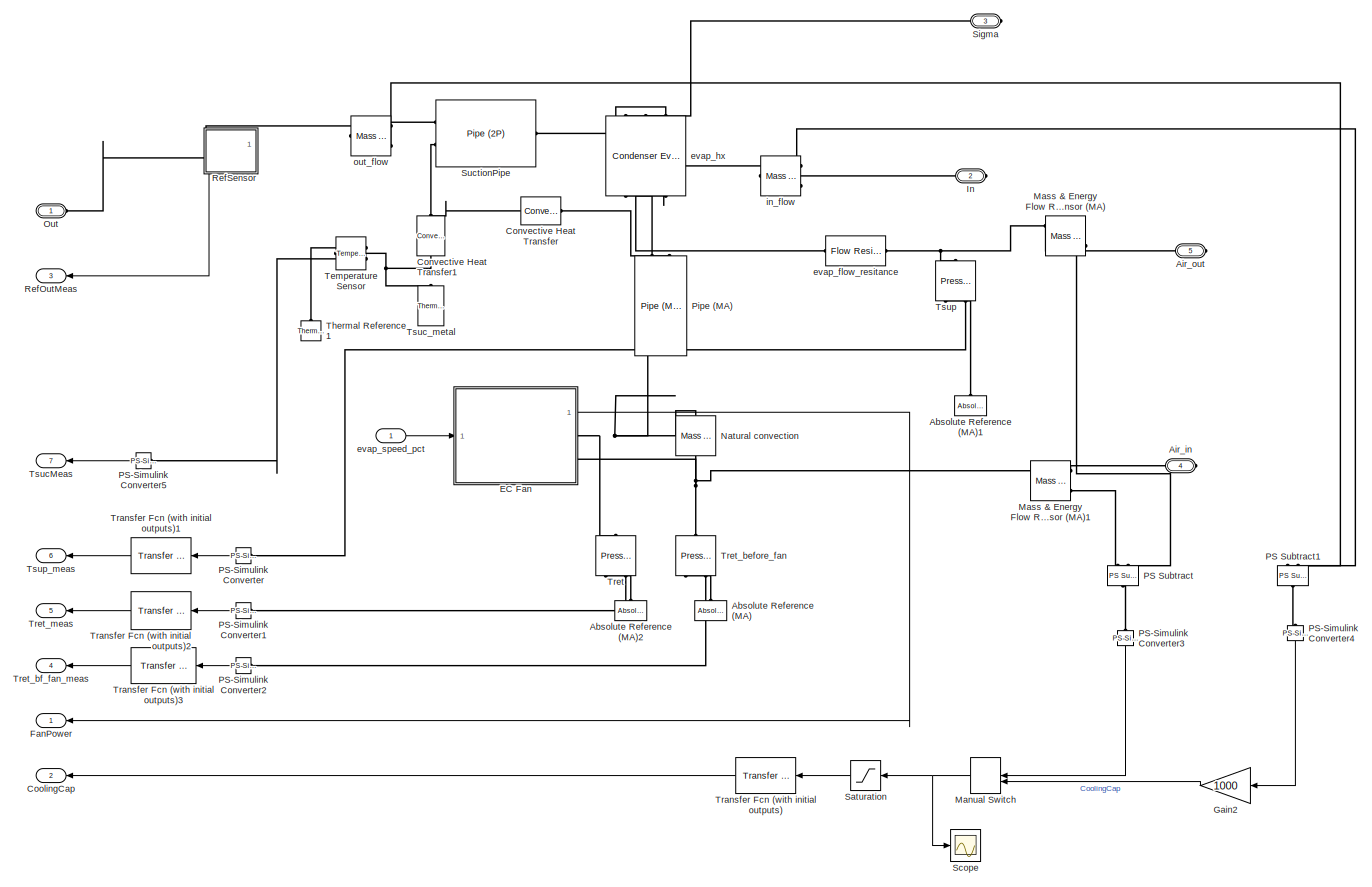
[diagram: Evaporator - part 1/1, most of the canvas]
BLOCK [SubSystem] Evaporator
  PortSchema = {"entries":[{"content":{"sides":[{"content":{"connectorIds":["LConn1","In1","Out3","Out4","Out5","Out6","Out7"]},"type":"ConnectorPlacement.EquallySpacedRectSide","uuid":"033e4ee9-ae46-49ce-a29c-cb5691fe85b1"},{"content":{"connectorIds":["RConn1","Out1","Out2","RConn2","RConn3","RConn4"],"side":"RIGHT"},"type":"ConnectorPlacement.EquallySpacedRectSide","uuid":"f5a957f7-d19d-4090-8dc6-9509ce363ce4"...<+473ch>
  Ports = [1, 7, 0, 0, 0, 1, 4]
  RequestExecContextInheritance = off
BLOCK [Reference] Evaporator/Absolute Reference (MA)  REF=fl_lib/Moist Air/Elements/Absolute Reference
(MA)
  NameLocation = right
  Ports = [0, 0, 0, 0, 0, 1]
  SourceBlock = fl_lib/Moist Air/Elements/Absolute Reference\n(MA)
  SourceProductBaseCode = SS
  SourceType = Absolute Reference\n(MA)
BLOCK [Reference] Evaporator/Absolute Reference (MA)1  REF=fl_lib/Moist Air/Elements/Absolute Reference
(MA)
  NameLocation = right
  Ports = [0, 0, 0, 0, 0, 1]
  SourceBlock = fl_lib/Moist Air/Elements/Absolute Reference\n(MA)
  SourceProductBaseCode = SS
  SourceType = Absolute Reference\n(MA)
BLOCK [Reference] Evaporator/Absolute Reference (MA)2  REF=fl_lib/Moist Air/Elements/Absolute Reference
(MA)
  NameLocation = right
  Ports = [0, 0, 0, 0, 0, 1]
  SourceBlock = fl_lib/Moist Air/Elements/Absolute Reference\n(MA)
  SourceProductBaseCode = SS
  SourceType = Absolute Reference\n(MA)
BLOCK [PMIOPort] Evaporator/Air_in
  Port = 4
  Side = Right
BLOCK [PMIOPort] Evaporator/Air_out
  Port = 5
  Side = Right
BLOCK [Reference] Evaporator/Convective Heat Transfer  REF=fl_lib/Thermal/Thermal Elements/Convective Heat
Transfer
  Ports = [0, 0, 0, 0, 0, 1, 1]
  SourceBlock = fl_lib/Thermal/Thermal Elements/Convective Heat\nTransfer
  SourceProductBaseCode = SS
  SourceType = Convective Heat\nTransfer
BLOCK [Reference] Evaporator/Convective Heat Transfer1  REF=fl_lib/Thermal/Thermal Elements/Convective Heat
Transfer
  NameLocation = left
  Ports = [0, 0, 0, 0, 0, 1, 1]
  SourceBlock = fl_lib/Thermal/Thermal Elements/Convective Heat\nTransfer
  SourceProductBaseCode = SS
  SourceType = Convective Heat\nTransfer
BLOCK [Outport] Evaporator/CoolingCap
  Port = 2
BLOCK [SubSystem] Evaporator/EC Fan
  Ports = [1, 1, 0, 0, 0, 0, 2]
  RequestExecContextInheritance = off
BLOCK [RateLimiter] Evaporator/EC Fan/10 sec Ramp
  FallingSlewLimit = -300
  RisingSlewLimit = 300
  SampleTimeMode = inherited
BLOCK [Lookup_n-D] Evaporator/EC Fan/AirFlow
  BeginIndexSearchUsingPreviousIndexResult = on
  BreakpointsForDimension1 = Speed
  BreakpointsForDimension2 = Pressure
  InputPortMap = u0,u1
  InternalRulePriority = Speed
  Ports = [2, 1]
  RndMeth = Simplest
  Table = AirFlow
BLOCK [Gain] Evaporator/EC Fan/AirFlowScale
  Gain = 1/3600
  NameLocation = top
BLOCK [PMIOPort] Evaporator/EC Fan/Air_in
  Port = 2
  Side = Right
BLOCK [PMIOPort] Evaporator/EC Fan/Air_out
  Side = Right
BLOCK [Memory] Evaporator/EC Fan/Avoid Alge. Loop
  Commented = on
BLOCK [Reference] Evaporator/EC Fan/Controlled Volumetric Flow Rate Source (MA)  REF=fl_lib/Moist Air/Sources/Controlled
Volumetric Flow Rate
Source (MA)
  NameLocation = left
  Ports = [0, 0, 0, 0, 0, 2, 1]
  SourceBlock = fl_lib/Moist Air/Sources/Controlled\nVolumetric Flow Rate\nSource (MA)
  SourceProductBaseCode = SS
  SourceType = Controlled\nVolumetric Flow Rate\nSource (MA)
BLOCK [Gain] Evaporator/EC Fan/Gain
  Gain = 3060/100
BLOCK [Reference] Evaporator/EC Fan/PS-Simulink Converter  REF=nesl_utility/PS-Simulink
Converter
  NameLocation = right
  Ports = [0, 1, 0, 0, 0, 1]
  SourceBlock = nesl_utility/PS-Simulink\nConverter
  SourceProductBaseCode = PW,SS
  SourceType = PS-Simulink\nConverter
BLOCK [Outport] Evaporator/EC Fan/Power
BLOCK [Lookup_n-D] Evaporator/EC Fan/Power1
  BeginIndexSearchUsingPreviousIndexResult = on
  BreakpointsForDimension1 = Speed
  BreakpointsForDimension2 = Pressure
  InputPortMap = u0,u1
  InternalRulePriority = Speed
  Ports = [2, 1]
  RndMeth = Simplest
  Table = Power
BLOCK [Saturate] Evaporator/EC Fan/Saturation
  LowerLimit = 0
  UpperLimit = 100
BLOCK [Saturate] Evaporator/EC Fan/Saturation1
  LowerLimit = 0
  UpperLimit = 865
BLOCK [Reference] Evaporator/EC Fan/Simulink-PS Converter  REF=nesl_utility/Simulink-PS
Converter
  Ports = [1, 0, 0, 0, 0, 0, 1]
  SourceBlock = nesl_utility/Simulink-PS\nConverter
  SourceProductBaseCode = PW,SS
  SourceType = Simulink-PS\nConverter
BLOCK [Reference] Evaporator/EC Fan/Transfer Fcn (with initial outputs)1  REF=simulink_extras/Additional
Linear/Transfer Fcn
(with initial outputs)
  Ports = [1, 1]
  SourceBlock = simulink_extras/Additional\nLinear/Transfer Fcn\n(with initial outputs)
  SourceProductBaseCode = SL
  SourceType = Transfer Function with Initial Outputs
BLOCK [Reference] Evaporator/EC Fan/Transfer Fcn (with initial outputs)2  REF=simulink_extras/Additional
Linear/Transfer Fcn
(with initial outputs)
  Ports = [1, 1]
  SourceBlock = simulink_extras/Additional\nLinear/Transfer Fcn\n(with initial outputs)
  SourceProductBaseCode = SL
  SourceType = Transfer Function with Initial Outputs
BLOCK [Reference] Evaporator/EC Fan/Tsup1  REF=fl_lib/Moist Air/Sensors/Pressure &
Temperature Sensor
(MA)
  NameLocation = top
  Ports = [0, 0, 0, 0, 0, 1, 3]
  SourceBlock = fl_lib/Moist Air/Sensors/Pressure &\nTemperature Sensor\n(MA)
  SourceProductBaseCode = SS
  SourceType = Pressure &\nTemperature Sensor\n(MA)
BLOCK [ZeroOrderHold] Evaporator/EC Fan/Zero-Order Hold
BLOCK [Inport] Evaporator/EC Fan/speed_pct
BLOCK [Outport] Evaporator/FanPower
BLOCK [Gain] Evaporator/Gain2
  Gain = 1000
  NameLocation = top
BLOCK [PMIOPort] Evaporator/In
  Port = 2
  Side = Right
BLOCK [ManualSwitch] Evaporator/Manual Switch
  NameLocation = top
BLOCK [Reference] Evaporator/Mass & Energy Flow Rate Sensor (MA)  REF=fl_lib/Moist Air/Sensors/Mass & Energy Flow
Rate Sensor (MA)
  NameLocation = top
  Ports = [0, 0, 0, 0, 0, 3, 3]
  SourceBlock = fl_lib/Moist Air/Sensors/Mass & Energy Flow\nRate Sensor (MA)
  SourceProductBaseCode = SS
  SourceType = Mass & Energy Flow\nRate Sensor (MA)
BLOCK [Reference] Evaporator/Mass & Energy Flow Rate Sensor (MA)1  REF=fl_lib/Moist Air/Sensors/Mass & Energy Flow
Rate Sensor (MA)
  Ports = [0, 0, 0, 0, 0, 3, 3]
  SourceBlock = fl_lib/Moist Air/Sensors/Mass & Energy Flow\nRate Sensor (MA)
  SourceProductBaseCode = SS
  SourceType = Mass & Energy Flow\nRate Sensor (MA)
BLOCK [Reference] Evaporator/Natural convection  REF=fl_lib/Moist Air/Sources/Mass Flow Rate
Source (MA)
  Commented = on
  NameLocation = right
  Ports = [0, 0, 0, 0, 0, 1, 1]
  SourceBlock = fl_lib/Moist Air/Sources/Mass Flow Rate\nSource (MA)
  SourceProductBaseCode = SS
  SourceType = Mass Flow Rate\nSource (MA)
BLOCK [PMIOPort] Evaporator/Out
  Side = Left
BLOCK [Reference] Evaporator/PS Subtract  REF=fl_lib/Physical Signals/Functions/PS Subtract
  NameLocation = right
  Ports = [0, 0, 0, 0, 0, 2, 1]
  SourceBlock = fl_lib/Physical Signals/Functions/PS Subtract
  SourceProductBaseCode = SS
  SourceType = PS Subtract
BLOCK [Reference] Evaporator/PS Subtract1  REF=fl_lib/Physical Signals/Functions/PS Subtract
  NameLocation = right
  Ports = [0, 0, 0, 0, 0, 2, 1]
  SourceBlock = fl_lib/Physical Signals/Functions/PS Subtract
  SourceProductBaseCode = SS
  SourceType = PS Subtract
BLOCK [Reference] Evaporator/PS-Simulink Converter  REF=nesl_utility/PS-Simulink
Converter
  NameLocation = top
  Ports = [0, 1, 0, 0, 0, 1]
  SourceBlock = nesl_utility/PS-Simulink\nConverter
  SourceProductBaseCode = PW,SS
  SourceType = PS-Simulink\nConverter
BLOCK [Reference] Evaporator/PS-Simulink Converter1  REF=nesl_utility/PS-Simulink
Converter
  NameLocation = top
  Ports = [0, 1, 0, 0, 0, 1]
  SourceBlock = nesl_utility/PS-Simulink\nConverter
  SourceProductBaseCode = PW,SS
  SourceType = PS-Simulink\nConverter
BLOCK [Reference] Evaporator/PS-Simulink Converter2  REF=nesl_utility/PS-Simulink
Converter
  NameLocation = top
  Ports = [0, 1, 0, 0, 0, 1]
  SourceBlock = nesl_utility/PS-Simulink\nConverter
  SourceProductBaseCode = PW,SS
  SourceType = PS-Simulink\nConverter
BLOCK [Reference] Evaporator/PS-Simulink Converter3  REF=nesl_utility/PS-Simulink
Converter
  NameLocation = left
  Ports = [0, 1, 0, 0, 0, 1]
  SourceBlock = nesl_utility/PS-Simulink\nConverter
  SourceProductBaseCode = PW,SS
  SourceType = PS-Simulink\nConverter
BLOCK [Reference] Evaporator/PS-Simulink Converter4  REF=nesl_utility/PS-Simulink
Converter
  NameLocation = left
  Ports = [0, 1, 0, 0, 0, 1]
  SourceBlock = nesl_utility/PS-Simulink\nConverter
  SourceProductBaseCode = PW,SS
  SourceType = PS-Simulink\nConverter
BLOCK [Reference] Evaporator/PS-Simulink Converter5  REF=nesl_utility/PS-Simulink
Converter
  NameLocation = top
  Ports = [0, 1, 0, 0, 0, 1]
  SourceBlock = nesl_utility/PS-Simulink\nConverter
  SourceProductBaseCode = PW,SS
  SourceType = PS-Simulink\nConverter
BLOCK [Reference] Evaporator/Pipe (MA)  REF=fl_lib/Moist Air/Elements/Pipe (MA)
  NameLocation = left
  Ports = [0, 0, 0, 0, 0, 2, 3]
  SourceBlock = fl_lib/Moist Air/Elements/Pipe (MA)
  SourceProductBaseCode = SS
  SourceType = Pipe (MA)
BLOCK [Outport] Evaporator/RefOutMeas
  Port = 3
BLOCK [SubSystem] Evaporator/RefSensor
  NameLocation = top
  Ports = [0, 1, 0, 0, 0, 1, 1]
  RequestExecContextInheritance = off
BLOCK [Reference] Evaporator/RefSensor/Absolute Reference (2P)  REF=fl_lib/Two-Phase Fluid/Elements/Absolute Reference
(2P)
  NameLocation = right
  Ports = [0, 0, 0, 0, 0, 1]
  SourceBlock = fl_lib/Two-Phase Fluid/Elements/Absolute Reference\n(2P)
  SourceProductBaseCode = SS
  SourceType = Absolute Reference\n(2P)
BLOCK [Constant] Evaporator/RefSensor/Constant
  NameLocation = right
  Value = 273.15
BLOCK [Gain] Evaporator/RefSensor/Gain
  Gain = 10
  NameLocation = top
BLOCK [Gain] Evaporator/RefSensor/Gain1
  Gain = 1000
  NameLocation = top
BLOCK [PMIOPort] Evaporator/RefSensor/In
  Side = Left
BLOCK [Reference] Evaporator/RefSensor/Mass & Energy Flow Rate Sensor (2P)  REF=fl_lib/Two-Phase Fluid/Sensors/Mass & Energy Flow
Rate Sensor (2P)
  Ports = [0, 0, 0, 0, 0, 1, 3]
  SourceBlock = fl_lib/Two-Phase Fluid/Sensors/Mass & Energy Flow\nRate Sensor (2P)
  SourceProductBaseCode = SS
  SourceType = Mass & Energy Flow\nRate Sensor (2P)
BLOCK [Mux] Evaporator/RefSensor/Mux
  DisplayOption = bar
  Inputs = 5
  NameLocation = top
  Ports = [5, 1]
BLOCK [PMIOPort] Evaporator/RefSensor/Out
  Port = 2
  Side = Right
BLOCK [Reference] Evaporator/RefSensor/PS-Simulink Converter  REF=nesl_utility/PS-Simulink
Converter
  NameLocation = top
  Ports = [0, 1, 0, 0, 0, 1]
  SourceBlock = nesl_utility/PS-Simulink\nConverter
  SourceProductBaseCode = PW,SS
  SourceType = PS-Simulink\nConverter
BLOCK [Reference] Evaporator/RefSensor/PS-Simulink Converter1  REF=nesl_utility/PS-Simulink
Converter
  NameLocation = top
  Ports = [0, 1, 0, 0, 0, 1]
  SourceBlock = nesl_utility/PS-Simulink\nConverter
  SourceProductBaseCode = PW,SS
  SourceType = PS-Simulink\nConverter
BLOCK [Reference] Evaporator/RefSensor/PS-Simulink Converter2  REF=nesl_utility/PS-Simulink
Converter
  NameLocation = top
  Ports = [0, 1, 0, 0, 0, 1]
  SourceBlock = nesl_utility/PS-Simulink\nConverter
  SourceProductBaseCode = PW,SS
  SourceType = PS-Simulink\nConverter
BLOCK [Reference] Evaporator/RefSensor/PS-Simulink Converter3  REF=nesl_utility/PS-Simulink
Converter
  NameLocation = top
  Ports = [0, 1, 0, 0, 0, 1]
  SourceBlock = nesl_utility/PS-Simulink\nConverter
  SourceProductBaseCode = PW,SS
  SourceType = PS-Simulink\nConverter
BLOCK [Reference] Evaporator/RefSensor/PS-Simulink Converter4  REF=nesl_utility/PS-Simulink
Converter
  NameLocation = top
  Ports = [0, 1, 0, 0, 0, 1]
  SourceBlock = nesl_utility/PS-Simulink\nConverter
  SourceProductBaseCode = PW,SS
  SourceType = PS-Simulink\nConverter
BLOCK [Reference] Evaporator/RefSensor/Pressure & Internal Energy Sensor (2P)  REF=fl_lib/Two-Phase Fluid/Sensors/Pressure & Internal
Energy Sensor (2P)
  NameLocation = top
  Ports = [0, 0, 0, 0, 0, 1, 3]
  SourceBlock = fl_lib/Two-Phase Fluid/Sensors/Pressure & Internal\nEnergy Sensor (2P)
  SourceProductBaseCode = SS
  SourceType = Pressure & Internal\nEnergy Sensor (2P)
BLOCK [Sum] Evaporator/RefSensor/Sum
  Inputs = |+-
  Ports = [2, 1]
BLOCK [Reference] Evaporator/RefSensor/Thermodynamic Properties Sensor (2P)  REF=fl_lib/Two-Phase Fluid/Sensors/Thermodynamic
Properties Sensor
(2P)
  NameLocation = top
  Ports = [0, 0, 0, 0, 0, 1, 4]
  SourceBlock = fl_lib/Two-Phase Fluid/Sensors/Thermodynamic\nProperties Sensor\n(2P)
  SourceProductBaseCode = SS
  SourceType = Thermodynamic\nProperties Sensor\n(2P)
BLOCK [Outport] Evaporator/RefSensor/meas_out
  NameLocation = top
BLOCK [Saturate] Evaporator/Saturation
  LowerLimit = -20000
  NameLocation = top
  UpperLimit = 20000
BLOCK [Scope] Evaporator/Scope
  Floating = off
  NumInputPorts = 1
  Ports = [1]
  ScopeSpecificationString = Simulink.scopes.TimeScopeBlockCfg('CurrentConfiguration', extmgr.ConfigurationSet(extmgr.Configuration('Core','General UI',true),extmgr.Configuration('Core','Source UI',true),extmgr.Configuration('Sources','WiredSimulink',true,'DataLoggingVariableName','ScopeData1'),extmgr.Configuration('Visuals','Time Domain',true,'SerializedDisplays',{struct('MinYLimReal','-1554.03169','MaxYLimReal','9047.7273',...<+1439ch>
BLOCK [PMIOPort] Evaporator/Sigma
  Port = 3
  Side = Right
BLOCK [Reference] Evaporator/SuctionPipe  REF=fl_lib/Two-Phase Fluid/Elements/Pipe (2P)
  Ports = [0, 0, 0, 0, 0, 2, 1]
  SourceBlock = fl_lib/Two-Phase Fluid/Elements/Pipe (2P)
  SourceProductBaseCode = SS
  SourceType = Pipe (2P)
BLOCK [Reference] Evaporator/Temperature Sensor  REF=fl_lib/Thermal/Thermal Sensors/Temperature Sensor
  NameLocation = top
  Ports = [0, 0, 0, 0, 0, 1, 2]
  SourceBlock = fl_lib/Thermal/Thermal Sensors/Temperature Sensor
  SourceProductBaseCode = SS
  SourceType = Temperature Sensor
BLOCK [Reference] Evaporator/Thermal Reference1  REF=fl_lib/Thermal/Thermal Elements/Thermal Reference
  NameLocation = right
  Ports = [0, 0, 0, 0, 0, 1]
  SourceBlock = fl_lib/Thermal/Thermal Elements/Thermal Reference
  SourceProductBaseCode = SS
  SourceType = Thermal Reference
BLOCK [Reference] Evaporator/Transfer Fcn (with initial outputs)  REF=simulink_extras/Additional
Linear/Transfer Fcn
(with initial outputs)
  NameLocation = top
  Ports = [1, 1]
  SourceBlock = simulink_extras/Additional\nLinear/Transfer Fcn\n(with initial outputs)
  SourceProductBaseCode = SL
  SourceType = Transfer Function with Initial Outputs
BLOCK [Reference] Evaporator/Transfer Fcn (with initial outputs)1  REF=simulink_extras/Additional
Linear/Transfer Fcn
(with initial outputs)
  NameLocation = top
  Ports = [1, 1]
  SourceBlock = simulink_extras/Additional\nLinear/Transfer Fcn\n(with initial outputs)
  SourceProductBaseCode = SL
  SourceType = Transfer Function with Initial Outputs
BLOCK [Reference] Evaporator/Transfer Fcn (with initial outputs)2  REF=simulink_extras/Additional
Linear/Transfer Fcn
(with initial outputs)
  NameLocation = top
  Ports = [1, 1]
  SourceBlock = simulink_extras/Additional\nLinear/Transfer Fcn\n(with initial outputs)
  SourceProductBaseCode = SL
  SourceType = Transfer Function with Initial Outputs
BLOCK [Reference] Evaporator/Transfer Fcn (with initial outputs)3  REF=simulink_extras/Additional
Linear/Transfer Fcn
(with initial outputs)
  NameLocation = top
  Ports = [1, 1]
  SourceBlock = simulink_extras/Additional\nLinear/Transfer Fcn\n(with initial outputs)
  SourceProductBaseCode = SL
  SourceType = Transfer Function with Initial Outputs
BLOCK [Reference] Evaporator/Tret  REF=fl_lib/Moist Air/Sensors/Pressure &
Temperature Sensor
(MA)
  NameLocation = left
  Ports = [0, 0, 0, 0, 0, 1, 3]
  SourceBlock = fl_lib/Moist Air/Sensors/Pressure &\nTemperature Sensor\n(MA)
  SourceProductBaseCode = SS
  SourceType = Pressure &\nTemperature Sensor\n(MA)
BLOCK [Reference] Evaporator/Tret_before_fan  REF=fl_lib/Moist Air/Sensors/Pressure &
Temperature Sensor
(MA)
  NameLocation = left
  Ports = [0, 0, 0, 0, 0, 1, 3]
  SourceBlock = fl_lib/Moist Air/Sensors/Pressure &\nTemperature Sensor\n(MA)
  SourceProductBaseCode = SS
  SourceType = Pressure &\nTemperature Sensor\n(MA)
BLOCK [Outport] Evaporator/Tret_bf_fan_meas
  NameLocation = top
  Port = 4
BLOCK [Outport] Evaporator/Tret_meas
  NameLocation = top
  Port = 5
BLOCK [Outport] Evaporator/TsucMeas
  Port = 7
BLOCK [Reference] Evaporator/Tsuc_metal  REF=fl_lib/Thermal/Thermal Elements/Thermal Mass
  NameLocation = right
  Ports = [0, 0, 0, 0, 0, 1]
  SourceBlock = fl_lib/Thermal/Thermal Elements/Thermal Mass
  SourceProductBaseCode = SS
  SourceType = Thermal Mass
BLOCK [Reference] Evaporator/Tsup  REF=fl_lib/Moist Air/Sensors/Pressure &
Temperature Sensor
(MA)
  NameLocation = left
  Ports = [0, 0, 0, 0, 0, 1, 3]
  SourceBlock = fl_lib/Moist Air/Sensors/Pressure &\nTemperature Sensor\n(MA)
  SourceProductBaseCode = SS
  SourceType = Pressure &\nTemperature Sensor\n(MA)
BLOCK [Outport] Evaporator/Tsup_meas
  NameLocation = top
  Port = 6
BLOCK [Reference] Evaporator/evap_flow_resitance  REF=fl_lib/Moist Air/Elements/Flow Resistance (MA)
  Ports = [0, 0, 0, 0, 0, 1, 1]
  SourceBlock = fl_lib/Moist Air/Elements/Flow Resistance (MA)
  SourceProductBaseCode = SS
  SourceType = Flow Resistance (MA)
BLOCK [Reference] Evaporator/evap_hx  REF=SimscapeFluids_lib/Fluid Network
Interfaces/Heat Exchangers/Condenser Evaporator
(2P-MA)
  NameLocation = left
  Ports = [0, 0, 0, 0, 0, 3, 3]
  SourceBlock = SimscapeFluids_lib/Fluid Network\nInterfaces/Heat Exchangers/Condenser Evaporator\n(2P-MA)
  SourceProductBaseCode = SH
  SourceType = Condenser Evaporator\n(2P-MA)
BLOCK [Inport] Evaporator/evap_speed_pct
BLOCK [Reference] Evaporator/in_flow  REF=fl_lib/Two-Phase Fluid/Sensors/Mass & Energy Flow
Rate Sensor (2P)
  NameLocation = top
  Ports = [0, 0, 0, 0, 0, 1, 3]
  SourceBlock = fl_lib/Two-Phase Fluid/Sensors/Mass & Energy Flow\nRate Sensor (2P)
  SourceProductBaseCode = SS
  SourceType = Mass & Energy Flow\nRate Sensor (2P)
BLOCK [Reference] Evaporator/out_flow  REF=fl_lib/Two-Phase Fluid/Sensors/Mass & Energy Flow
Rate Sensor (2P)
  NameLocation = top
  Ports = [0, 0, 0, 0, 0, 1, 3]
  SourceBlock = fl_lib/Two-Phase Fluid/Sensors/Mass & Energy Flow\nRate Sensor (2P)
  SourceProductBaseCode = SS
  SourceType = Mass & Energy Flow\nRate Sensor (2P)
BLOCK [SubSystem] FT_exv
  NameLocation = top
  PortSchema = {"entries":[{"content":{"sides":[{"content":{"connectorIds":["LConn1"]},"type":"ConnectorPlacement.EquallySpacedRectSide","uuid":"b279e9a8-1d21-4470-93a8-fbc83ce7b0b2"},{"content":{"connectorIds":["In1","RConn1","Out1"],"side":"RIGHT"},"type":"ConnectorPlacement.EquallySpacedRectSide","uuid":"0dfd93ae-010b-42e4-9e53-34ca9fdad0fd"},{"content":{"connectorIds":[],"side":"TOP"},"type":"ConnectorPlacem...<+260ch>
  Ports = [1, 1, 0, 0, 0, 1, 1]
  RequestExecContextInheritance = off
BLOCK [Gain] FT_exv/Gain2
  Gain = (0.005/2)^2*pi/100*8
BLOCK [PMIOPort] FT_exv/In
  Side = Left
BLOCK [PMIOPort] FT_exv/Out
  Port = 2
  Side = Right
BLOCK [Outport] FT_exv/RefOutMeas
  NameLocation = top
BLOCK [SubSystem] FT_exv/RefSensor
  NameLocation = top
  PortSchema = {"entries":[{"content":{"sides":[{"content":{"connectorIds":["LConn1"]},"type":"ConnectorPlacement.EquallySpacedRectSide","uuid":"384ca129-c08e-4242-8b56-38a57a5275bd"},{"content":{"connectorIds":["RConn1","Out1"],"side":"RIGHT"},"type":"ConnectorPlacement.EquallySpacedRectSide","uuid":"d8d27130-51db-4533-93b1-df7418a29f3a"},{"content":{"connectorIds":[],"side":"TOP"},"type":"ConnectorPlacement.Eq...<+398ch>
  Ports = [0, 1, 0, 0, 0, 1, 1]
  RequestExecContextInheritance = off
BLOCK [Reference] FT_exv/RefSensor/Absolute Reference (2P)  REF=fl_lib/Two-Phase Fluid/Elements/Absolute Reference
(2P)
  NameLocation = right
  Ports = [0, 0, 0, 0, 0, 1]
  SourceBlock = fl_lib/Two-Phase Fluid/Elements/Absolute Reference\n(2P)
  SourceProductBaseCode = SS
  SourceType = Absolute Reference\n(2P)
BLOCK [Constant] FT_exv/RefSensor/Constant
  NameLocation = right
  Value = 273.15
BLOCK [Gain] FT_exv/RefSensor/Gain
  Gain = 10
  NameLocation = top
BLOCK [Gain] FT_exv/RefSensor/Gain1
  Gain = 1000
  NameLocation = top
BLOCK [PMIOPort] FT_exv/RefSensor/In
  Side = Left
BLOCK [Reference] FT_exv/RefSensor/Mass & Energy Flow Rate Sensor (2P)  REF=fl_lib/Two-Phase Fluid/Sensors/Mass & Energy Flow
Rate Sensor (2P)
  Ports = [0, 0, 0, 0, 0, 1, 3]
  SourceBlock = fl_lib/Two-Phase Fluid/Sensors/Mass & Energy Flow\nRate Sensor (2P)
  SourceProductBaseCode = SS
  SourceType = Mass & Energy Flow\nRate Sensor (2P)
BLOCK [Mux] FT_exv/RefSensor/Mux
  DisplayOption = bar
  Inputs = 5
  NameLocation = top
  Ports = [5, 1]
BLOCK [PMIOPort] FT_exv/RefSensor/Out
  Port = 2
  Side = Right
BLOCK [Reference] FT_exv/RefSensor/PS-Simulink Converter  REF=nesl_utility/PS-Simulink
Converter
  NameLocation = top
  Ports = [0, 1, 0, 0, 0, 1]
  SourceBlock = nesl_utility/PS-Simulink\nConverter
  SourceProductBaseCode = PW,SS
  SourceType = PS-Simulink\nConverter
BLOCK [Reference] FT_exv/RefSensor/PS-Simulink Converter1  REF=nesl_utility/PS-Simulink
Converter
  NameLocation = top
  Ports = [0, 1, 0, 0, 0, 1]
  SourceBlock = nesl_utility/PS-Simulink\nConverter
  SourceProductBaseCode = PW,SS
  SourceType = PS-Simulink\nConverter
BLOCK [Reference] FT_exv/RefSensor/PS-Simulink Converter2  REF=nesl_utility/PS-Simulink
Converter
  NameLocation = top
  Ports = [0, 1, 0, 0, 0, 1]
  SourceBlock = nesl_utility/PS-Simulink\nConverter
  SourceProductBaseCode = PW,SS
  SourceType = PS-Simulink\nConverter
BLOCK [Reference] FT_exv/RefSensor/PS-Simulink Converter3  REF=nesl_utility/PS-Simulink
Converter
  NameLocation = top
  Ports = [0, 1, 0, 0, 0, 1]
  SourceBlock = nesl_utility/PS-Simulink\nConverter
  SourceProductBaseCode = PW,SS
  SourceType = PS-Simulink\nConverter
BLOCK [Reference] FT_exv/RefSensor/PS-Simulink Converter4  REF=nesl_utility/PS-Simulink
Converter
  NameLocation = top
  Ports = [0, 1, 0, 0, 0, 1]
  SourceBlock = nesl_utility/PS-Simulink\nConverter
  SourceProductBaseCode = PW,SS
  SourceType = PS-Simulink\nConverter
BLOCK [Reference] FT_exv/RefSensor/Pressure & Internal Energy Sensor (2P)  REF=fl_lib/Two-Phase Fluid/Sensors/Pressure & Internal
Energy Sensor (2P)
  NameLocation = top
  Ports = [0, 0, 0, 0, 0, 1, 3]
  SourceBlock = fl_lib/Two-Phase Fluid/Sensors/Pressure & Internal\nEnergy Sensor (2P)
  SourceProductBaseCode = SS
  SourceType = Pressure & Internal\nEnergy Sensor (2P)
BLOCK [Sum] FT_exv/RefSensor/Sum
  Inputs = |+-
  Ports = [2, 1]
BLOCK [Reference] FT_exv/RefSensor/Thermodynamic Properties Sensor (2P)  REF=fl_lib/Two-Phase Fluid/Sensors/Thermodynamic
Properties Sensor
(2P)
  NameLocation = top
  Ports = [0, 0, 0, 0, 0, 1, 4]
  SourceBlock = fl_lib/Two-Phase Fluid/Sensors/Thermodynamic\nProperties Sensor\n(2P)
  SourceProductBaseCode = SS
  SourceType = Thermodynamic\nProperties Sensor\n(2P)
BLOCK [Outport] FT_exv/RefSensor/meas_out
  NameLocation = top
BLOCK [Reference] FT_exv/Simulink-PS Converter3  REF=nesl_utility/Simulink-PS
Converter
  NameLocation = right
  Ports = [1, 0, 0, 0, 0, 0, 1]
  SourceBlock = nesl_utility/Simulink-PS\nConverter
  SourceProductBaseCode = PW,SS
  SourceType = Simulink-PS\nConverter
BLOCK [Reference] FT_exv/Transfer Fcn (with initial outputs)1  REF=simulink_extras/Additional
Linear/Transfer Fcn
(with initial outputs)
  Ports = [1, 1]
  SourceBlock = simulink_extras/Additional\nLinear/Transfer Fcn\n(with initial outputs)
  SourceProductBaseCode = SL
  SourceType = Transfer Function with Initial Outputs
BLOCK [Inport] FT_exv/VFT
BLOCK [Reference] FT_exv/Valve  REF=fl_lib/Two-Phase Fluid/Elements/Variable Local
Restriction (2P)
  NameLocation = top
  Ports = [0, 0, 0, 0, 0, 2, 1]
  SourceBlock = fl_lib/Two-Phase Fluid/Elements/Variable Local\nRestriction (2P)
  SourceProductBaseCode = SS
  SourceType = Variable Local\nRestriction (2P)
BLOCK [SubSystem] Flash tank
  Ports = [0, 2, 0, 0, 0, 3, 2]
  RequestExecContextInheritance = off
BLOCK [Reference] Flash tank/Cap (2P)  REF=fl_lib/Two-Phase Fluid/Elements/Cap (2P)
  NameLocation = left
  Ports = [0, 0, 0, 0, 0, 1]
  SourceBlock = fl_lib/Two-Phase Fluid/Elements/Cap (2P)
  SourceProductBaseCode = SS
  SourceType = Cap (2P)
BLOCK [Reference] Flash tank/FT heat transfer   REF=fl_lib/Thermal/Thermal Elements/Convective Heat
Transfer
  Ports = [0, 0, 0, 0, 0, 1, 1]
  SourceBlock = fl_lib/Thermal/Thermal Elements/Convective Heat\nTransfer
  SourceProductBaseCode = SS
  SourceType = Convective Heat\nTransfer
BLOCK [PMIOPort] Flash tank/H
  Port = 5
  Side = Right
BLOCK [PMIOPort] Flash tank/Level
  Port = 4
  Side = Right
BLOCK [PMIOPort] Flash tank/Liquid in
  NameLocation = top
  Side = Left
BLOCK [PMIOPort] Flash tank/Liquid out
  Port = 3
  Side = Left
BLOCK [SubSystem] Flash tank/RefSensor
  NameLocation = top
  PortSchema = {"entries":[{"content":{"sides":[{"content":{"connectorIds":["LConn1"]},"type":"ConnectorPlacement.EquallySpacedRectSide","uuid":"384ca129-c08e-4242-8b56-38a57a5275bd"},{"content":{"connectorIds":["RConn1","Out1"],"side":"RIGHT"},"type":"ConnectorPlacement.EquallySpacedRectSide","uuid":"d8d27130-51db-4533-93b1-df7418a29f3a"},{"content":{"connectorIds":[],"side":"TOP"},"type":"ConnectorPlacement.Eq...<+398ch>
  Ports = [0, 1, 0, 0, 0, 1, 1]
  RequestExecContextInheritance = off
BLOCK [Reference] Flash tank/RefSensor/Absolute Reference (2P)  REF=fl_lib/Two-Phase Fluid/Elements/Absolute Reference
(2P)
  NameLocation = right
  Ports = [0, 0, 0, 0, 0, 1]
  SourceBlock = fl_lib/Two-Phase Fluid/Elements/Absolute Reference\n(2P)
  SourceProductBaseCode = SS
  SourceType = Absolute Reference\n(2P)
BLOCK [Constant] Flash tank/RefSensor/Constant
  NameLocation = right
  Value = 273.15
BLOCK [Gain] Flash tank/RefSensor/Gain
  Gain = 10
  NameLocation = top
BLOCK [Gain] Flash tank/RefSensor/Gain1
  Gain = 1000
  NameLocation = top
BLOCK [PMIOPort] Flash tank/RefSensor/In
  Side = Left
BLOCK [Reference] Flash tank/RefSensor/Mass & Energy Flow Rate Sensor (2P)  REF=fl_lib/Two-Phase Fluid/Sensors/Mass & Energy Flow
Rate Sensor (2P)
  Ports = [0, 0, 0, 0, 0, 1, 3]
  SourceBlock = fl_lib/Two-Phase Fluid/Sensors/Mass & Energy Flow\nRate Sensor (2P)
  SourceProductBaseCode = SS
  SourceType = Mass & Energy Flow\nRate Sensor (2P)
BLOCK [Mux] Flash tank/RefSensor/Mux
  DisplayOption = bar
  Inputs = 5
  NameLocation = top
  Ports = [5, 1]
BLOCK [PMIOPort] Flash tank/RefSensor/Out
  Port = 2
  Side = Right
BLOCK [Reference] Flash tank/RefSensor/PS-Simulink Converter  REF=nesl_utility/PS-Simulink
Converter
  NameLocation = top
  Ports = [0, 1, 0, 0, 0, 1]
  SourceBlock = nesl_utility/PS-Simulink\nConverter
  SourceProductBaseCode = PW,SS
  SourceType = PS-Simulink\nConverter
BLOCK [Reference] Flash tank/RefSensor/PS-Simulink Converter1  REF=nesl_utility/PS-Simulink
Converter
  NameLocation = top
  Ports = [0, 1, 0, 0, 0, 1]
  SourceBlock = nesl_utility/PS-Simulink\nConverter
  SourceProductBaseCode = PW,SS
  SourceType = PS-Simulink\nConverter
BLOCK [Reference] Flash tank/RefSensor/PS-Simulink Converter2  REF=nesl_utility/PS-Simulink
Converter
  NameLocation = top
  Ports = [0, 1, 0, 0, 0, 1]
  SourceBlock = nesl_utility/PS-Simulink\nConverter
  SourceProductBaseCode = PW,SS
  SourceType = PS-Simulink\nConverter
BLOCK [Reference] Flash tank/RefSensor/PS-Simulink Converter3  REF=nesl_utility/PS-Simulink
Converter
  NameLocation = top
  Ports = [0, 1, 0, 0, 0, 1]
  SourceBlock = nesl_utility/PS-Simulink\nConverter
  SourceProductBaseCode = PW,SS
  SourceType = PS-Simulink\nConverter
BLOCK [Reference] Flash tank/RefSensor/PS-Simulink Converter4  REF=nesl_utility/PS-Simulink
Converter
  NameLocation = top
  Ports = [0, 1, 0, 0, 0, 1]
  SourceBlock = nesl_utility/PS-Simulink\nConverter
  SourceProductBaseCode = PW,SS
  SourceType = PS-Simulink\nConverter
BLOCK [Reference] Flash tank/RefSensor/Pressure & Internal Energy Sensor (2P)  REF=fl_lib/Two-Phase Fluid/Sensors/Pressure & Internal
Energy Sensor (2P)
  NameLocation = top
  Ports = [0, 0, 0, 0, 0, 1, 3]
  SourceBlock = fl_lib/Two-Phase Fluid/Sensors/Pressure & Internal\nEnergy Sensor (2P)
  SourceProductBaseCode = SS
  SourceType = Pressure & Internal\nEnergy Sensor (2P)
BLOCK [Sum] Flash tank/RefSensor/Sum
  Inputs = |+-
  Ports = [2, 1]
BLOCK [Reference] Flash tank/RefSensor/Thermodynamic Properties Sensor (2P)  REF=fl_lib/Two-Phase Fluid/Sensors/Thermodynamic
Properties Sensor
(2P)
  NameLocation = top
  Ports = [0, 0, 0, 0, 0, 1, 4]
  SourceBlock = fl_lib/Two-Phase Fluid/Sensors/Thermodynamic\nProperties Sensor\n(2P)
  SourceProductBaseCode = SS
  SourceType = Thermodynamic\nProperties Sensor\n(2P)
BLOCK [Outport] Flash tank/RefSensor/meas_out
  NameLocation = top
BLOCK [SubSystem] Flash tank/RefSensor1
  NameLocation = top
  Ports = [0, 1, 0, 0, 0, 1, 1]
  RequestExecContextInheritance = off
BLOCK [Reference] Flash tank/RefSensor1/Absolute Reference (2P)  REF=fl_lib/Two-Phase Fluid/Elements/Absolute Reference
(2P)
  NameLocation = right
  Ports = [0, 0, 0, 0, 0, 1]
  SourceBlock = fl_lib/Two-Phase Fluid/Elements/Absolute Reference\n(2P)
  SourceProductBaseCode = SS
  SourceType = Absolute Reference\n(2P)
BLOCK [Constant] Flash tank/RefSensor1/Constant
  NameLocation = right
  Value = 273.15
BLOCK [Gain] Flash tank/RefSensor1/Gain
  Gain = 10
  NameLocation = top
BLOCK [Gain] Flash tank/RefSensor1/Gain1
  Gain = 1000
  NameLocation = top
BLOCK [PMIOPort] Flash tank/RefSensor1/In
  Side = Left
BLOCK [Reference] Flash tank/RefSensor1/Mass & Energy Flow Rate Sensor (2P)  REF=fl_lib/Two-Phase Fluid/Sensors/Mass & Energy Flow
Rate Sensor (2P)
  Ports = [0, 0, 0, 0, 0, 1, 3]
  SourceBlock = fl_lib/Two-Phase Fluid/Sensors/Mass & Energy Flow\nRate Sensor (2P)
  SourceProductBaseCode = SS
  SourceType = Mass & Energy Flow\nRate Sensor (2P)
BLOCK [Mux] Flash tank/RefSensor1/Mux
  DisplayOption = bar
  Inputs = 5
  NameLocation = top
  Ports = [5, 1]
BLOCK [PMIOPort] Flash tank/RefSensor1/Out
  Port = 2
  Side = Right
BLOCK [Reference] Flash tank/RefSensor1/PS-Simulink Converter  REF=nesl_utility/PS-Simulink
Converter
  NameLocation = top
  Ports = [0, 1, 0, 0, 0, 1]
  SourceBlock = nesl_utility/PS-Simulink\nConverter
  SourceProductBaseCode = PW,SS
  SourceType = PS-Simulink\nConverter
BLOCK [Reference] Flash tank/RefSensor1/PS-Simulink Converter1  REF=nesl_utility/PS-Simulink
Converter
  NameLocation = top
  Ports = [0, 1, 0, 0, 0, 1]
  SourceBlock = nesl_utility/PS-Simulink\nConverter
  SourceProductBaseCode = PW,SS
  SourceType = PS-Simulink\nConverter
BLOCK [Reference] Flash tank/RefSensor1/PS-Simulink Converter2  REF=nesl_utility/PS-Simulink
Converter
  NameLocation = top
  Ports = [0, 1, 0, 0, 0, 1]
  SourceBlock = nesl_utility/PS-Simulink\nConverter
  SourceProductBaseCode = PW,SS
  SourceType = PS-Simulink\nConverter
BLOCK [Reference] Flash tank/RefSensor1/PS-Simulink Converter3  REF=nesl_utility/PS-Simulink
Converter
  NameLocation = top
  Ports = [0, 1, 0, 0, 0, 1]
  SourceBlock = nesl_utility/PS-Simulink\nConverter
  SourceProductBaseCode = PW,SS
  SourceType = PS-Simulink\nConverter
BLOCK [Reference] Flash tank/RefSensor1/PS-Simulink Converter4  REF=nesl_utility/PS-Simulink
Converter
  NameLocation = top
  Ports = [0, 1, 0, 0, 0, 1]
  SourceBlock = nesl_utility/PS-Simulink\nConverter
  SourceProductBaseCode = PW,SS
  SourceType = PS-Simulink\nConverter
BLOCK [Reference] Flash tank/RefSensor1/Pressure & Internal Energy Sensor (2P)  REF=fl_lib/Two-Phase Fluid/Sensors/Pressure & Internal
Energy Sensor (2P)
  NameLocation = top
  Ports = [0, 0, 0, 0, 0, 1, 3]
  SourceBlock = fl_lib/Two-Phase Fluid/Sensors/Pressure & Internal\nEnergy Sensor (2P)
  SourceProductBaseCode = SS
  SourceType = Pressure & Internal\nEnergy Sensor (2P)
BLOCK [Sum] Flash tank/RefSensor1/Sum
  Inputs = |+-
  Ports = [2, 1]
BLOCK [Reference] Flash tank/RefSensor1/Thermodynamic Properties Sensor (2P)  REF=fl_lib/Two-Phase Fluid/Sensors/Thermodynamic
Properties Sensor
(2P)
  NameLocation = top
  Ports = [0, 0, 0, 0, 0, 1, 4]
  SourceBlock = fl_lib/Two-Phase Fluid/Sensors/Thermodynamic\nProperties Sensor\n(2P)
  SourceProductBaseCode = SS
  SourceType = Thermodynamic\nProperties Sensor\n(2P)
BLOCK [Outport] Flash tank/RefSensor1/meas_out
  NameLocation = top
BLOCK [Reference] Flash tank/Tank  REF=SimscapeFluids_lib/Two-Phase Fluid/Tanks & Accumulators/Receiver Accumulator
(2P)
  Ports = [0, 0, 0, 0, 0, 3, 3]
  SourceBlock = SimscapeFluids_lib/Two-Phase Fluid/Tanks & Accumulators/Receiver Accumulator\n(2P)
  SourceProductBaseCode = SH
  SourceType = Receiver Accumulator\n(2P)
BLOCK [PMIOPort] Flash tank/Vapor out
  Port = 2
  Side = Left
BLOCK [Outport] Flash tank/liq_out_meas
BLOCK [Outport] Flash tank/vap_out_meas
  Port = 2
BLOCK [From] From
  GotoTag = meas_cond_out
  NameLocation = top
BLOCK [From] From1
  GotoTag = meas_im_suc
  NameLocation = top
BLOCK [From] From10
  Commented = on
  GotoTag = ctrl_heat_pct
BLOCK [From] From11
  GotoTag = meas_cond_fan_power
BLOCK [From] From12
  GotoTag = meas_cpr_power
BLOCK [From] From13
  GotoTag = meas_evap_fan_power
BLOCK [From] From14
  GotoTag = meas_cooling_power
BLOCK [From] From15
  GotoTag = meas_tsup
  NameLocation = top
BLOCK [From] From16
  GotoTag = meas_tsuc_sens
  NameLocation = top
BLOCK [From] From17
  GotoTag = meas_suction_line
  NameLocation = top
BLOCK [From] From18
  GotoTag = meas_tcargo
  NameLocation = top
BLOCK [From] From19
  GotoTag = meas_tamb
  NameLocation = top
BLOCK [From] From2
  GotoTag = meas_ft_liq_out
  NameLocation = top
BLOCK [From] From20
  GotoTag = meas_tret
  NameLocation = top
BLOCK [From] From21
  GotoTag = meas_tret_bf_fan
  NameLocation = top
BLOCK [From] From22
  Commented = on
  GotoTag = meas_suction_line
BLOCK [From] From23
  GotoTag = meas_suction_line
BLOCK [From] From25
  Commented = on
  GotoTag = meas_disturbance
BLOCK [From] From26
  Commented = on
  GotoTag = meas_tret
BLOCK [From] From27
  GotoTag = meas_tret
BLOCK [From] From3
  GotoTag = meas_cpr_disc
  NameLocation = top
BLOCK [From] From4
  GotoTag = ctrl_cpr_speed_pct
BLOCK [From] From5
  GotoTag = ctrl_cond_fan_pct
BLOCK [From] From6
  GotoTag = ctrl_vcond_pct
BLOCK [From] From7
  GotoTag = ctrl_vft_pct
BLOCK [From] From8
  GotoTag = ctrl_vexp_pct
BLOCK [From] From9
  GotoTag = ctrl_evap_fan_pct
BLOCK [Gain] Gain
  Gain = 1/1000/3600
BLOCK [Gain] Gain1
  Gain = 1/1000
BLOCK [Gain] Gain12
  Commented = on
  Gain = Bd1
  Multiplication = Matrix(K*u)
BLOCK [Gain] Gain13
  Commented = on
  Gain = -1
  Multiplication = Matrix(K*u)
  NameLocation = top
BLOCK [Gain] Gain14
  Commented = on
  Gain = -K
  Multiplication = Matrix(K*u)
  NameLocation = top
BLOCK [Gain] Gain15
  Commented = on
  Gain = B_tilde
  Multiplication = Matrix(K*u)
BLOCK [Gain] Gain16
  Commented = on
  Gain = C_tilde
  Multiplication = Matrix(K*u)
BLOCK [Gain] Gain17
  Commented = on
  Gain = A_tilde
  Multiplication = Matrix(K*u)
  NameLocation = top
BLOCK [Gain] Gain18
  Commented = on
  Gain = L
  Multiplication = Matrix(K*u)
  NameLocation = top
BLOCK [Gain] Gain2
  Gain = 1/1000
BLOCK [Gain] Gain3
  Gain = 5
  NameLocation = top
BLOCK [Gain] Gain4
  Gain = 0.01
  NameLocation = top
BLOCK [Gain] Gain5
  Gain = -K
  Multiplication = Matrix(K*u)
BLOCK [Gain] Gain6
  Gain = B_tilde
  Multiplication = Matrix(K*u)
BLOCK [Gain] Gain7
  Gain = C_tilde
  Multiplication = Matrix(K*u)
BLOCK [Gain] Gain8
  Gain = A_tilde
  Multiplication = Matrix(K*u)
  NameLocation = top
BLOCK [Gain] Gain9
  Gain = L
  Multiplication = Matrix(K*u)
  NameLocation = top
BLOCK [Goto] Goto
  GotoTag = meas_cond_out
BLOCK [Goto] Goto1
  GotoTag = meas_ft_vap_out
BLOCK [Goto] Goto10
  GotoTag = meas_disturbance
  NameLocation = top
BLOCK [Goto] Goto11
  GotoTag = meas_cond_fan_power
BLOCK [Goto] Goto12
  GotoTag = meas_cpr_power
BLOCK [Goto] Goto13
  GotoTag = meas_evap_fan_power
BLOCK [Goto] Goto14
  GotoTag = meas_cooling_power
BLOCK [Goto] Goto15
  GotoTag = meas_im_suc
  NameLocation = top
BLOCK [Goto] Goto16
  GotoTag = meas_tsup
  NameLocation = top
BLOCK [Goto] Goto17
  GotoTag = meas_tsuc_sens
  NameLocation = top
BLOCK [Goto] Goto18
  GotoTag = meas_suction_line
  NameLocation = top
BLOCK [Goto] Goto19
  GotoTag = meas_tcargo
BLOCK [Goto] Goto2
  GotoTag = meas_ft_liq_out
BLOCK [Goto] Goto20
  GotoTag = meas_tamb
  NameLocation = top
BLOCK [Goto] Goto21
  GotoTag = meas_tret
  NameLocation = top
BLOCK [Goto] Goto22
  GotoTag = meas_tret_bf_fan
  NameLocation = top
BLOCK [Goto] Goto23
  GotoTag = meas_ft_in
  NameLocation = top
BLOCK [Goto] Goto24
  GotoTag = meas_evap_exv_out
BLOCK [Goto] Goto26
  Commented = on
  GotoTag = ctrl_cpr_speed_pct
BLOCK [Goto] Goto27
  Commented = on
  GotoTag = ctrl_cond_fan_pct
BLOCK [Goto] Goto28
  Commented = on
  GotoTag = ctrl_vcond_pct
BLOCK [Goto] Goto29
  Commented = on
  GotoTag = ctrl_evap_fan_pct
BLOCK [Goto] Goto3
  GotoTag = meas_cpr_disc
  NameLocation = top
BLOCK [Goto] Goto30
  Commented = on
  GotoTag = ctrl_vexp_pct
BLOCK [Goto] Goto31
  Commented = on
  GotoTag = ctrl_vft_pct
BLOCK [Goto] Goto4
  GotoTag = ctrl_cpr_speed_pct
BLOCK [Goto] Goto5
  GotoTag = ctrl_cond_fan_pct
BLOCK [Goto] Goto6
  GotoTag = ctrl_vcond_pct
BLOCK [Goto] Goto7
  GotoTag = ctrl_evap_fan_pct
BLOCK [Goto] Goto8
  GotoTag = ctrl_vexp_pct
BLOCK [Goto] Goto9
  GotoTag = ctrl_vft_pct
BLOCK [Integrator] Integrator
  Ports = [1, 1]
BLOCK [Integrator] Integrator1
  Ports = [1, 1]
BLOCK [Integrator] Integrator2
  Ports = [1, 1]
BLOCK [Integrator] Integrator4
  Commented = on
  Ports = [1, 1]
BLOCK [Integrator] Integrator5
  Commented = on
  NameLocation = top
  Ports = [1, 1]
BLOCK [ManualSwitch] Manual Switch
  CurrentSetting = 0
  NameLocation = top
BLOCK [SubSystem] Measure states1
  Ports = [1]
  RequestExecContextInheritance = off
BLOCK [Demux] Measure states1/Demux1
  Outputs = 8
  Ports = [1, 8]
BLOCK [Terminator] Measure states1/Terminator1
BLOCK [Terminator] Measure states1/Terminator2
BLOCK [Terminator] Measure states1/Terminator3
BLOCK [Terminator] Measure states1/Terminator4
BLOCK [Terminator] Measure states1/Terminator5
BLOCK [Terminator] Measure states1/Terminator6
BLOCK [Terminator] Measure states1/Terminator7
BLOCK [Terminator] Measure states1/Terminator8
BLOCK [Inport] Measure states1/x
BLOCK [SubSystem] Measure states2
  Commented = on
  Ports = [1]
  RequestExecContextInheritance = off
BLOCK [Demux] Measure states2/Demux1
  Outputs = 8
  Ports = [1, 8]
BLOCK [Terminator] Measure states2/Terminator1
BLOCK [Terminator] Measure states2/Terminator2
BLOCK [Terminator] Measure states2/Terminator3
BLOCK [Terminator] Measure states2/Terminator4
BLOCK [Terminator] Measure states2/Terminator5
BLOCK [Terminator] Measure states2/Terminator6
BLOCK [Terminator] Measure states2/Terminator7
BLOCK [Terminator] Measure states2/Terminator8
BLOCK [Inport] Measure states2/x
BLOCK [Mux] Mux
  DisplayOption = bar
  Inputs = 11
  NameLocation = top
  Ports = [11, 1]
BLOCK [Mux] Mux1
  DisplayOption = bar
  Inputs = 6
  Ports = [6, 1]
BLOCK [Mux] Mux2
  DisplayOption = bar
  Inputs = 6
  Ports = [6, 1]
BLOCK [Mux] Mux3
  DisplayOption = bar
  Inputs = 2
  Ports = [2, 1]
BLOCK [Mux] Mux5
  DisplayOption = bar
  Inputs = 2
  NameLocation = top
  Ports = [2, 1]
BLOCK [Mux] Mux6
  Commented = on
  DisplayOption = bar
  Inputs = 2
  Ports = [2, 1]
BLOCK [Mux] Mux7
  Commented = on
  DisplayOption = bar
  Inputs = 2
  NameLocation = top
  Ports = [2, 1]
BLOCK [Mux] Mux8
  Commented = on
  DisplayOption = bar
  Inputs = 2
  NameLocation = top
  Ports = [2, 1]
BLOCK [Reference] PS-Simulink Converter1  REF=nesl_utility/PS-Simulink
Converter
  NameLocation = top
  Ports = [0, 1, 0, 0, 0, 1]
  SourceBlock = nesl_utility/PS-Simulink\nConverter
  SourceProductBaseCode = PW,SS
  SourceType = PS-Simulink\nConverter
BLOCK [Scope] Performance
  Floating = off
  NumInputPorts = 5
  Ports = [5]
  ScopeSpecificationString = Simulink.scopes.TimeScopeBlockCfg('CurrentConfiguration', extmgr.ConfigurationSet(extmgr.Configuration('Core','General UI',true),extmgr.Configuration('Core','Source UI',true),extmgr.Configuration('Sources','WiredSimulink',true,'DataLoggingVariableName','ScopeData2'),extmgr.Configuration('Visuals','Time Domain',true,'SerializedDisplays',{struct('MinYLimReal','-1.93619','MaxYLimReal','16.40251','YLa...<+1462ch>
BLOCK [Scope] Power
  Floating = off
  NumInputPorts = 4
  Ports = [4]
  ScopeSpecificationString = Simulink.scopes.TimeScopeBlockCfg('CurrentConfiguration', extmgr.ConfigurationSet(extmgr.Configuration('Core','General UI',true),extmgr.Configuration('Core','Source UI',true),extmgr.Configuration('Sources','WiredSimulink',true,'DataLoggingVariableName','ScopeData4'),extmgr.Configuration('Visuals','Time Domain',true,'SerializedDisplays',{struct('MinYLimReal','-1936.19381','MaxYLimReal','16402.50828...<+1898ch>
BLOCK [Reference] Refrigerant Properties  REF=fl_lib/Two-Phase Fluid/Utilities/Two-Phase Fluid
Properties (2P)
  Ports = [0, 0, 0, 0, 0, 0, 1]
  SourceBlock = fl_lib/Two-Phase Fluid/Utilities/Two-Phase Fluid\nProperties (2P)
  SourceProductBaseCode = SS
  SourceType = Two-Phase Fluid\nProperties (2P)
BLOCK [Saturate] Saturation
  LowerLimit = 0
  UpperLimit = 10
BLOCK [Saturate] Saturation1
  LowerLimit = 0
  UpperLimit = 10
BLOCK [Saturate] Saturation2
  LowerLimit = 0.0001
  UpperLimit = 20000000
BLOCK [Saturate] Saturation3
  LowerLimit = 0.0001
  NameLocation = left
  UpperLimit = 20000
BLOCK [Saturate] Saturation4
  LowerLimit = 0.0001
  NameLocation = left
  UpperLimit = 20000
BLOCK [Scope] Scope
  Floating = off
  NumInputPorts = 2
  Ports = [2]
  ScopeSpecificationString = Simulink.scopes.TimeScopeBlockCfg('CurrentConfiguration', extmgr.ConfigurationSet(extmgr.Configuration('Core','General UI',true),extmgr.Configuration('Core','Source UI',true),extmgr.Configuration('Sources','WiredSimulink',true),extmgr.Configuration('Visuals','Time Domain',true,'SerializedDisplays',{struct('MinYLimReal','-2791.21919','MaxYLimReal','3228.69178','YLabelReal','','MinYLimMag','  0.0000...<+1988ch>
BLOCK [Scope] Scope1
  Floating = off
  IOType = viewer
  NumInputPorts = 1
  Ports = []
  ScopeSpecificationString = Simulink.scopes.TimeScopeBlockCfg('CurrentConfiguration', extmgr.ConfigurationSet(extmgr.Configuration('Core','General UI',true),extmgr.Configuration('Core','Source UI',true),extmgr.Configuration('Sources','WiredSimulink',true,'DataLoggingVariableName','ScopeData1'),extmgr.Configuration('Visuals','Time Domain',true,'SerializedDisplays',{struct('MinYLimReal','-0.52458','MaxYLimReal','4.72118','YLab...<+1359ch>
BLOCK [Scope] Scope2
  Floating = off
  IOType = viewer
  NumInputPorts = 1
  Ports = []
  ScopeSpecificationString = Simulink.scopes.TimeScopeBlockCfg('CurrentConfiguration', extmgr.ConfigurationSet(extmgr.Configuration('Core','General UI',true),extmgr.Configuration('Core','Source UI',true),extmgr.Configuration('Sources','WiredSimulink',true,'DataLoggingVariableName','ScopeData2'),extmgr.Configuration('Visuals','Time Domain',true,'SerializedDisplays',{struct('MinYLimReal','-15.49282','MaxYLimReal','94.71724','YL...<+1414ch>
BLOCK [Scope] Scope3
  Floating = off
  IOType = viewer
  NumInputPorts = 1
  Ports = []
  ScopeSpecificationString = Simulink.scopes.TimeScopeBlockCfg('CurrentConfiguration', extmgr.ConfigurationSet(extmgr.Configuration('Core','General UI',true),extmgr.Configuration('Core','Source UI',true),extmgr.Configuration('Sources','WiredSimulink',true,'DataLoggingVariableName','ScopeData3'),extmgr.Configuration('Visuals','Time Domain',true,'SerializedDisplays',{struct('MinYLimReal','-263.79679','MaxYLimReal','1589.76569',...<+1426ch>
BLOCK [Reference] Simulink-PS Converter3  REF=nesl_utility/Simulink-PS
Converter
  NameLocation = top
  Ports = [1, 0, 0, 0, 0, 0, 1]
  SourceBlock = nesl_utility/Simulink-PS\nConverter
  SourceProductBaseCode = PW,SS
  SourceType = Simulink-PS\nConverter
BLOCK [Reference] Solver Configuration  REF=nesl_utility/Solver
Configuration
  Ports = [0, 0, 0, 0, 0, 0, 1]
  SourceBlock = nesl_utility/Solver\nConfiguration
  SourceProductBaseCode = PW,SS
  SourceType = Solver\nConfiguration
BLOCK [Step] Step
  After = 5
  Commented = on
  NameLocation = top
  SampleTime = 0
  Time = 1000
BLOCK [Sum] Sum
  IconShape = rectangular
  Inputs = +++
  Ports = [3, 1]
BLOCK [Sum] Sum1
  IconShape = rectangular
  Inputs = +++
  NameLocation = top
  Ports = [3, 1]
BLOCK [Sum] Sum10
  Commented = on
  Inputs = +|-
  NameLocation = top
  Ports = [2, 1]
BLOCK [Sum] Sum11
  Commented = on
  Inputs = +|-
  NameLocation = left
  Ports = [2, 1]
BLOCK [Sum] Sum12
  Commented = on
  Inputs = |++
  Ports = [2, 1]
BLOCK [Sum] Sum13
  Commented = on
  Inputs = ++|
  Ports = [2, 1]
BLOCK [Sum] Sum2
  Inputs = +++
  Ports = [3, 1]
BLOCK [Sum] Sum3
  Inputs = +|-
  NameLocation = top
  Ports = [2, 1]
BLOCK [Sum] Sum4
  Inputs = ++|
  Ports = [2, 1]
BLOCK [Sum] Sum5
  Inputs = +|-
  NameLocation = left
  Ports = [2, 1]
BLOCK [Sum] Sum6
  Inputs = |++
  Ports = [2, 1]
BLOCK [Sum] Sum8
  Inputs = |+-
  NameLocation = top
  Ports = [2, 1]
BLOCK [Sum] Sum9
  Commented = on
  Inputs = +++
  Ports = [3, 1]
BLOCK [Switch] Switch
  Criteria = u2 > Threshold
  InputSameDT = off
  SaturateOnIntegerOverflow = off
  Threshold = 4000
BLOCK [Switch] Switch1
  Criteria = u2 > Threshold
  InputSameDT = off
  NameLocation = top
  SaturateOnIntegerOverflow = off
  Threshold = 1000
BLOCK [Switch] Switch2
  Criteria = u2 > Threshold
  InputSameDT = off
  SaturateOnIntegerOverflow = off
  Threshold = 4000
BLOCK [Switch] Switch4
  Commented = on
  Criteria = u2 > Threshold
  InputSameDT = off
  SaturateOnIntegerOverflow = off
  Threshold = 6000
BLOCK [Switch] Switch5
  Commented = on
  Criteria = u2 > Threshold
  InputSameDT = off
  NameLocation = top
  SaturateOnIntegerOverflow = off
  Threshold = 6000
BLOCK [Reference] Tamb Sensor  REF=fl_lib/Thermal/Thermal Sensors/Temperature Sensor
  NameLocation = top
  Ports = [0, 0, 0, 0, 0, 1, 2]
  SourceBlock = fl_lib/Thermal/Thermal Sensors/Temperature Sensor
  SourceProductBaseCode = SS
  SourceType = Temperature Sensor
BLOCK [Terminator] Terminator
BLOCK [Terminator] Terminator1
BLOCK [Terminator] Terminator2
BLOCK [Terminator] Terminator3
BLOCK [Terminator] Terminator4
BLOCK [Terminator] Terminator5
  Commented = on
BLOCK [Terminator] Terminator6
  Commented = on
BLOCK [Terminator] Terminator7
  Commented = on
BLOCK [Terminator] Terminator8
  Commented = on
BLOCK [Reference] Thermal Reference1  REF=fl_lib/Thermal/Thermal Elements/Thermal Reference
  NameLocation = right
  Ports = [0, 0, 0, 0, 0, 1]
  SourceBlock = fl_lib/Thermal/Thermal Elements/Thermal Reference
  SourceProductBaseCode = SS
  SourceType = Thermal Reference
BLOCK [Reference] Thermal Reference2  REF=fl_lib/Thermal/Thermal Elements/Thermal Reference
  NameLocation = top
  Ports = [0, 0, 0, 0, 0, 1]
  SourceBlock = fl_lib/Thermal/Thermal Elements/Thermal Reference
  SourceProductBaseCode = SS
  SourceType = Thermal Reference
BLOCK [Trigonometry] Trigonometric Function
  NameLocation = top
  Ports = [1, 1]
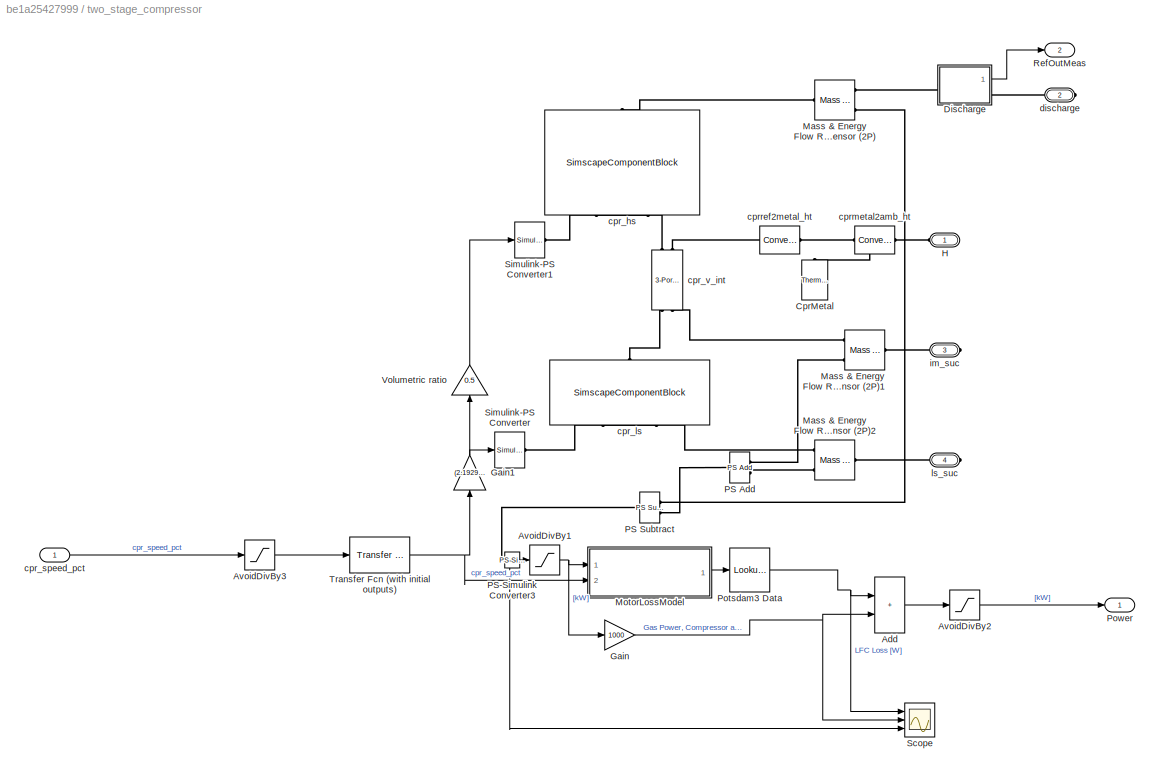
BLOCK [SubSystem] two_stage_compressor
  PortSchema = {"entries":[{"content":{"sides":[{"content":{"connectorIds":["LConn1","In1","Out2"]},"type":"ConnectorPlacement.EquallySpacedRectSide","uuid":"3d48dd4d-d64c-4c15-b87d-785ca519fd3e"},{"content":{"connectorIds":["RConn1","RConn2","RConn3","Out1"],"side":"RIGHT"},"type":"ConnectorPlacement.EquallySpacedRectSide","uuid":"adb43978-d4cf-4a53-b69c-b8e1726fc973"},{"content":{"connectorIds":[],"side":"TOP"...<+429ch>
  Ports = [1, 2, 0, 0, 0, 1, 3]
  RequestExecContextInheritance = off
BLOCK [Sum] two_stage_compressor/Add
  IconShape = rectangular
  Ports = [2, 1]
BLOCK [Saturate] two_stage_compressor/AvoidDivBy1
  LowerLimit = 0
  UpperLimit = inf
BLOCK [Saturate] two_stage_compressor/AvoidDivBy2
  LowerLimit = 0
  UpperLimit = inf
BLOCK [Saturate] two_stage_compressor/AvoidDivBy3
  LowerLimit = 0.01
  UpperLimit = 100
BLOCK [Reference] two_stage_compressor/CprMetal  REF=fl_lib/Thermal/Thermal Elements/Thermal Mass
  NameLocation = right
  Ports = [0, 0, 0, 0, 0, 1]
  SourceBlock = fl_lib/Thermal/Thermal Elements/Thermal Mass
  SourceProductBaseCode = SS
  SourceType = Thermal Mass
BLOCK [SubSystem] two_stage_compressor/Discharge
  Ports = [0, 1, 0, 0, 0, 1, 1]
  RequestExecContextInheritance = off
BLOCK [Reference] two_stage_compressor/Discharge/Absolute Reference (2P)  REF=fl_lib/Two-Phase Fluid/Elements/Absolute Reference
(2P)
  NameLocation = right
  Ports = [0, 0, 0, 0, 0, 1]
  SourceBlock = fl_lib/Two-Phase Fluid/Elements/Absolute Reference\n(2P)
  SourceProductBaseCode = SS
  SourceType = Absolute Reference\n(2P)
BLOCK [Constant] two_stage_compressor/Discharge/Constant
  NameLocation = right
  Value = 273.15
BLOCK [Gain] two_stage_compressor/Discharge/Gain
  Gain = 10
  NameLocation = top
BLOCK [Gain] two_stage_compressor/Discharge/Gain1
  Gain = 1000
  NameLocation = top
BLOCK [PMIOPort] two_stage_compressor/Discharge/In
  Side = Left
BLOCK [Reference] two_stage_compressor/Discharge/Mass & Energy Flow Rate Sensor (2P)  REF=fl_lib/Two-Phase Fluid/Sensors/Mass & Energy Flow
Rate Sensor (2P)
  Ports = [0, 0, 0, 0, 0, 1, 3]
  SourceBlock = fl_lib/Two-Phase Fluid/Sensors/Mass & Energy Flow\nRate Sensor (2P)
  SourceProductBaseCode = SS
  SourceType = Mass & Energy Flow\nRate Sensor (2P)
BLOCK [Mux] two_stage_compressor/Discharge/Mux
  DisplayOption = bar
  Inputs = 5
  NameLocation = top
  Ports = [5, 1]
BLOCK [PMIOPort] two_stage_compressor/Discharge/Out
  Port = 2
  Side = Right
BLOCK [Reference] two_stage_compressor/Discharge/PS-Simulink Converter  REF=nesl_utility/PS-Simulink
Converter
  NameLocation = top
  Ports = [0, 1, 0, 0, 0, 1]
  SourceBlock = nesl_utility/PS-Simulink\nConverter
  SourceProductBaseCode = PW,SS
  SourceType = PS-Simulink\nConverter
BLOCK [Reference] two_stage_compressor/Discharge/PS-Simulink Converter1  REF=nesl_utility/PS-Simulink
Converter
  NameLocation = top
  Ports = [0, 1, 0, 0, 0, 1]
  SourceBlock = nesl_utility/PS-Simulink\nConverter
  SourceProductBaseCode = PW,SS
  SourceType = PS-Simulink\nConverter
BLOCK [Reference] two_stage_compressor/Discharge/PS-Simulink Converter2  REF=nesl_utility/PS-Simulink
Converter
  NameLocation = top
  Ports = [0, 1, 0, 0, 0, 1]
  SourceBlock = nesl_utility/PS-Simulink\nConverter
  SourceProductBaseCode = PW,SS
  SourceType = PS-Simulink\nConverter
BLOCK [Reference] two_stage_compressor/Discharge/PS-Simulink Converter3  REF=nesl_utility/PS-Simulink
Converter
  NameLocation = top
  Ports = [0, 1, 0, 0, 0, 1]
  SourceBlock = nesl_utility/PS-Simulink\nConverter
  SourceProductBaseCode = PW,SS
  SourceType = PS-Simulink\nConverter
BLOCK [Reference] two_stage_compressor/Discharge/PS-Simulink Converter4  REF=nesl_utility/PS-Simulink
Converter
  NameLocation = top
  Ports = [0, 1, 0, 0, 0, 1]
  SourceBlock = nesl_utility/PS-Simulink\nConverter
  SourceProductBaseCode = PW,SS
  SourceType = PS-Simulink\nConverter
BLOCK [Reference] two_stage_compressor/Discharge/Pressure & Internal Energy Sensor (2P)  REF=fl_lib/Two-Phase Fluid/Sensors/Pressure & Internal
Energy Sensor (2P)
  NameLocation = top
  Ports = [0, 0, 0, 0, 0, 1, 3]
  SourceBlock = fl_lib/Two-Phase Fluid/Sensors/Pressure & Internal\nEnergy Sensor (2P)
  SourceProductBaseCode = SS
  SourceType = Pressure & Internal\nEnergy Sensor (2P)
BLOCK [Sum] two_stage_compressor/Discharge/Sum
  Inputs = |+-
  Ports = [2, 1]
BLOCK [Reference] two_stage_compressor/Discharge/Thermodynamic Properties Sensor (2P)  REF=fl_lib/Two-Phase Fluid/Sensors/Thermodynamic
Properties Sensor
(2P)
  NameLocation = top
  Ports = [0, 0, 0, 0, 0, 1, 4]
  SourceBlock = fl_lib/Two-Phase Fluid/Sensors/Thermodynamic\nProperties Sensor\n(2P)
  SourceProductBaseCode = SS
  SourceType = Thermodynamic\nProperties Sensor\n(2P)
BLOCK [Outport] two_stage_compressor/Discharge/meas_out
  NameLocation = top
BLOCK [Gain] two_stage_compressor/Gain
  Gain = 1000
BLOCK [Gain] two_stage_compressor/Gain1
  Gain = (2.1929e-4*55)/100
  NameLocation = right
BLOCK [PMIOPort] two_stage_compressor/H
  NameLocation = top
  Side = Left
BLOCK [Reference] two_stage_compressor/Mass & Energy Flow Rate Sensor (2P)  REF=fl_lib/Two-Phase Fluid/Sensors/Mass & Energy Flow
Rate Sensor (2P)
  Ports = [0, 0, 0, 0, 0, 1, 3]
  SourceBlock = fl_lib/Two-Phase Fluid/Sensors/Mass & Energy Flow\nRate Sensor (2P)
  SourceProductBaseCode = SS
  SourceType = Mass & Energy Flow\nRate Sensor (2P)
BLOCK [Reference] two_stage_compressor/Mass & Energy Flow Rate Sensor (2P)1  REF=fl_lib/Two-Phase Fluid/Sensors/Mass & Energy Flow
Rate Sensor (2P)
  Ports = [0, 0, 0, 0, 0, 1, 3]
  SourceBlock = fl_lib/Two-Phase Fluid/Sensors/Mass & Energy Flow\nRate Sensor (2P)
  SourceProductBaseCode = SS
  SourceType = Mass & Energy Flow\nRate Sensor (2P)
BLOCK [Reference] two_stage_compressor/Mass & Energy Flow Rate Sensor (2P)2  REF=fl_lib/Two-Phase Fluid/Sensors/Mass & Energy Flow
Rate Sensor (2P)
  Ports = [0, 0, 0, 0, 0, 1, 3]
  SourceBlock = fl_lib/Two-Phase Fluid/Sensors/Mass & Energy Flow\nRate Sensor (2P)
  SourceProductBaseCode = SS
  SourceType = Mass & Energy Flow\nRate Sensor (2P)
BLOCK [SubSystem] two_stage_compressor/MotorLossModel
  Ports = [2, 1]
  RequestExecContextInheritance = off
BLOCK [RateLimiter] two_stage_compressor/MotorLossModel/10 sec Ramp
  FallingSlewLimit = -5
  RisingSlewLimit = 5
  SampleTimeMode = inherited
BLOCK [Saturate] two_stage_compressor/MotorLossModel/AvoidDivBy0
  LowerLimit = 10
  UpperLimit = 100
BLOCK [Product] two_stage_compressor/MotorLossModel/Divide
  Inputs = */
  Ports = [2, 1]
BLOCK [Gain] two_stage_compressor/MotorLossModel/Gain
  Gain = 1000
BLOCK [Gain] two_stage_compressor/MotorLossModel/Gain2
  Gain = 50/100*2*pi/asm.nom.Zpp
BLOCK [Gain] two_stage_compressor/MotorLossModel/Gain3
  Gain = 50/100
BLOCK [Gain] two_stage_compressor/MotorLossModel/Gain4
  Gain = 2*pi
BLOCK [Outport] two_stage_compressor/MotorLossModel/Iphase[Arms]
BLOCK [M-S-Function] two_stage_compressor/MotorLossModel/Level-2 MATLAB S-Function
  FunctionName = msfcn_StaticASM
  Parameters = asm
  Ports = [3, 1]
BLOCK [Inport] two_stage_compressor/MotorLossModel/MotorLoad[kW]
BLOCK [Fcn] two_stage_compressor/MotorLossModel/U//f
  Expr = (asm.nom.UfGain*u(1) + asm.nom.UfOffset)/1.5/sqrt(2)
BLOCK [Inport] two_stage_compressor/MotorLossModel/cpr_speed_pct
  Port = 2
BLOCK [Reference] two_stage_compressor/PS Add  REF=fl_lib/Physical Signals/Functions/PS Add
  Ports = [0, 0, 0, 0, 0, 2, 1]
  SourceBlock = fl_lib/Physical Signals/Functions/PS Add
  SourceProductBaseCode = SS
  SourceType = PS Add
BLOCK [Reference] two_stage_compressor/PS Subtract  REF=fl_lib/Physical Signals/Functions/PS Subtract
  Ports = [0, 0, 0, 0, 0, 2, 1]
  SourceBlock = fl_lib/Physical Signals/Functions/PS Subtract
  SourceProductBaseCode = SS
  SourceType = PS Subtract
BLOCK [Reference] two_stage_compressor/PS-Simulink Converter3  REF=nesl_utility/PS-Simulink
Converter
  Ports = [0, 1, 0, 0, 0, 1]
  SourceBlock = nesl_utility/PS-Simulink\nConverter
  SourceProductBaseCode = PW,SS
  SourceType = PS-Simulink\nConverter
BLOCK [Lookup_n-D] two_stage_compressor/Potsdam3 Data
  BeginIndexSearchUsingPreviousIndexResult = on
  BreakpointsForDimension1 = [10 21]
  InputPortMap = u0
  InternalRulePriority = Speed
  NumberOfTableDimensions = 1
  Ports = [1, 1]
  RndMeth = Simplest
  Table = [66 178]
BLOCK [Outport] two_stage_compressor/Power
BLOCK [Outport] two_stage_compressor/RefOutMeas
  Port = 2
BLOCK [Scope] two_stage_compressor/Scope
  Floating = off
  NumInputPorts = 3
  Ports = [3]
  ScopeSpecificationString = Simulink.scopes.TimeScopeBlockCfg('CurrentConfiguration', extmgr.ConfigurationSet(extmgr.Configuration('Core','General UI',true),extmgr.Configuration('Core','Source UI',true),extmgr.Configuration('Sources','WiredSimulink',true,'DataLoggingVariableName','ScopeData1'),extmgr.Configuration('Visuals','Time Domain',true,'SerializedDisplays',{struct('MinYLimReal','-64.28486','MaxYLimReal','220.38196','Y...<+2085ch>
BLOCK [Reference] two_stage_compressor/Simulink-PS Converter  REF=nesl_utility/Simulink-PS
Converter
  Ports = [1, 0, 0, 0, 0, 0, 1]
  SourceBlock = nesl_utility/Simulink-PS\nConverter
  SourceProductBaseCode = PW,SS
  SourceType = Simulink-PS\nConverter
BLOCK [Reference] two_stage_compressor/Simulink-PS Converter1  REF=nesl_utility/Simulink-PS
Converter
  Ports = [1, 0, 0, 0, 0, 0, 1]
  SourceBlock = nesl_utility/Simulink-PS\nConverter
  SourceProductBaseCode = PW,SS
  SourceType = Simulink-PS\nConverter
BLOCK [Reference] two_stage_compressor/Transfer Fcn (with initial outputs)  REF=simulink_extras/Additional
Linear/Transfer Fcn
(with initial outputs)
  Ports = [1, 1]
  SourceBlock = simulink_extras/Additional\nLinear/Transfer Fcn\n(with initial outputs)
  SourceProductBaseCode = SL
  SourceType = Transfer Function with Initial Outputs
BLOCK [Gain] two_stage_compressor/Volumetric ratio
  Gain = 0.5
  NameLocation = right
BLOCK [SimscapeComponentBlock] two_stage_compressor/cpr_hs
  ClassName = controlled_volumetric_flow_sink
  ComponentPath = controlled_volumetric_flow_sink
  ComponentVariantNames = controlled_volumetric_flow_sink
  ComponentVariants = controlled_volumetric_flow_sink
  CopyFcn = simscape.engine.sli.internal.componentblockcallback(gcbh,'COPY')
  InternalSimscapePortConfiguration = {"Bottom":[],"Left":[{"id":"A","label":"A","type":"foundation.two_phase_fluid.two_phase_fluid"},{"id":"V","label":"V","type":"input"}],"Right":[{"id":"B","label":"B","type":"foundation.two_phase_fluid.two_phase_fluid"}],"Top":[]}
  MaskType = Controlled Volumetric Flow Rate Sink (2P)
  NameLocation = right
  Ports = [0, 0, 0, 0, 0, 2, 1]
  PreCopyFcn = simscape.engine.sli.internal.componentblockcallback(gcbh,'PRECOPY')
  PreDeleteFcn = simscape.engine.sli.internal.componentblockcallback(gcbh,'PREDELETE')
  SchemaVersion = 1
  SourceFile = controlled_volumetric_flow_sink
  area_A = 0.01
  area_A_conf = compiletime
  area_A_unit = m^2
  area_B = 0.01
  area_B_conf = compiletime
  area_B_unit = m^2
  isentropic_efficiency = 0.65
  isentropic_efficiency_conf = compiletime
  isentropic_efficiency_unit = 1
  power_spec = foundation.enum.power_spec.isentropic
  power_spec_conf = compiletime
  power_spec_unit = 1
BLOCK [SimscapeComponentBlock] two_stage_compressor/cpr_ls
  ClassName = controlled_volumetric_flow_sink
  ComponentPath = controlled_volumetric_flow_sink
  ComponentVariantNames = controlled_volumetric_flow_sink
  ComponentVariants = controlled_volumetric_flow_sink
  CopyFcn = simscape.engine.sli.internal.componentblockcallback(gcbh,'COPY')
  InternalSimscapePortConfiguration = {"Bottom":[],"Left":[{"id":"A","label":"A","type":"foundation.two_phase_fluid.two_phase_fluid"},{"id":"V","label":"V","type":"input"}],"Right":[{"id":"B","label":"B","type":"foundation.two_phase_fluid.two_phase_fluid"}],"Top":[]}
  MaskType = Controlled Volumetric Flow Rate Sink (2P)
  NameLocation = right
  Ports = [0, 0, 0, 0, 0, 2, 1]
  PreCopyFcn = simscape.engine.sli.internal.componentblockcallback(gcbh,'PRECOPY')
  PreDeleteFcn = simscape.engine.sli.internal.componentblockcallback(gcbh,'PREDELETE')
  SchemaVersion = 1
  SourceFile = controlled_volumetric_flow_sink
  area_A = 0.01
  area_A_conf = compiletime
  area_A_unit = m^2
  area_B = 0.01
  area_B_conf = compiletime
  area_B_unit = m^2
  isentropic_efficiency = 0.65
  isentropic_efficiency_conf = compiletime
  isentropic_efficiency_unit = 1
  power_spec = foundation.enum.power_spec.isentropic
  power_spec_conf = compiletime
  power_spec_unit = 1
BLOCK [Inport] two_stage_compressor/cpr_speed_pct
BLOCK [Reference] two_stage_compressor/cpr_v_int  REF=fl_lib/Two-Phase Fluid/Elements/3-Port Constant
Volume Chamber (2P)
  NameLocation = right
  Ports = [0, 0, 0, 0, 0, 2, 2]
  SourceBlock = fl_lib/Two-Phase Fluid/Elements/3-Port Constant\nVolume Chamber (2P)
  SourceProductBaseCode = SS
  SourceType = 3-Port Constant\nVolume Chamber (2P)
BLOCK [Reference] two_stage_compressor/cprmetal2amb_ht  REF=fl_lib/Thermal/Thermal Elements/Convective Heat
Transfer
  NameLocation = top
  Ports = [0, 0, 0, 0, 0, 1, 1]
  SourceBlock = fl_lib/Thermal/Thermal Elements/Convective Heat\nTransfer
  SourceProductBaseCode = SS
  SourceType = Convective Heat\nTransfer
BLOCK [Reference] two_stage_compressor/cprref2metal_ht  REF=fl_lib/Thermal/Thermal Elements/Convective Heat
Transfer
  NameLocation = top
  Ports = [0, 0, 0, 0, 0, 1, 1]
  SourceBlock = fl_lib/Thermal/Thermal Elements/Convective Heat\nTransfer
  SourceProductBaseCode = SS
  SourceType = Convective Heat\nTransfer
BLOCK [PMIOPort] two_stage_compressor/discharge
  Port = 2
  Side = Right
BLOCK [PMIOPort] two_stage_compressor/im_suc
  Port = 3
  Side = Right
BLOCK [PMIOPort] two_stage_compressor/ls_suc
  Port = 4
  Side = Right
ANNOTATION Cargo hold: im_start_temp
ANNOTATION Cond_throttle/RefSensor: Refrigerant sensor in bar/celcius units
ANNOTATION Condenser/RefSensor: Refrigerant sensor in bar/celcius units
ANNOTATION Evap_exv/RefSensor: Refrigerant sensor in bar/celcius units
ANNOTATION Evaporator/RefSensor: Refrigerant sensor in bar/celcius units
ANNOTATION FT_exv/RefSensor: Refrigerant sensor in bar/celcius units
ANNOTATION Flash tank/RefSensor: Refrigerant sensor in bar/celcius units
ANNOTATION Flash tank/RefSensor1: Refrigerant sensor in bar/celcius units
ANNOTATION two_stage_compressor/Discharge: Refrigerant sensor in bar/celcius units
LINE Cargo hold/Constant2:1 -> Cargo hold/Simulink-PS Converter6:1
LINE Cargo hold/Constant3:1 -> Cargo hold/Simulink-PS Converter5:1
LINE Cargo hold/Constant4:1 -> Cargo hold/Simulink-PS Converter4:1
LINE Cargo hold/Gain3:1 -> Cargo hold/Simulink-PS Converter2:1
LINE Cargo hold/PS-Simulink Converter:1 -> Cargo hold/Tcargo_meas:1
LINE Cargo hold/Transfer Fcn (with initial outputs):1 -> Cargo hold/Gain3:1
LINE Cargo hold/heat_pct:1 -> Cargo hold/Transfer Fcn (with initial outputs):1
LINE Cargo hold:1 -> Goto19:1
LINE Clock1:1 -> Gain4:1
LINE Clock2:1 -> Switch:2
LINE Clock3:1 -> Switch1:2
LINE Clock4:1 -> Switch2:2
LINE Clock6:1 -> Switch4:2
LINE Clock7:1 -> Switch5:2
LINE Clock:1 -> Saturation2:1
LINE Cond_throttle/Gain4:1 -> Cond_throttle/Simulink-PS Converter4:1
LINE Cond_throttle/RefSensor/Constant:1 -> Cond_throttle/RefSensor/Sum:2
LINE Cond_throttle/RefSensor/Gain1:1 -> Cond_throttle/RefSensor/Mux:2
LINE Cond_throttle/RefSensor/Gain:1 -> Cond_throttle/RefSensor/Mux:1
LINE Cond_throttle/RefSensor/Mux:1 -> Cond_throttle/RefSensor/meas_out:1
LINE Cond_throttle/RefSensor/PS-Simulink Converter1:1 -> Cond_throttle/RefSensor/Gain1:1
LINE Cond_throttle/RefSensor/PS-Simulink Converter2:1 -> Cond_throttle/RefSensor/Sum:1
LINE Cond_throttle/RefSensor/PS-Simulink Converter3:1 -> Cond_throttle/RefSensor/Mux:5
LINE Cond_throttle/RefSensor/PS-Simulink Converter4:1 -> Cond_throttle/RefSensor/Mux:4
LINE Cond_throttle/RefSensor/PS-Simulink Converter:1 -> Cond_throttle/RefSensor/Gain:1
LINE Cond_throttle/RefSensor/Sum:1 -> Cond_throttle/RefSensor/Mux:3
LINE Cond_throttle/RefSensor:1 -> Cond_throttle/RefOutMeas:1
LINE Cond_throttle/Transfer Fcn (with initial outputs)2:1 -> Cond_throttle/Gain4:1
LINE Cond_throttle/Vcond:1 -> Cond_throttle/Transfer Fcn (with initial outputs)2:1
LINE Cond_throttle:1 -> Goto23:1
LINE Condenser/Ambient pressure:1 -> Condenser/Simulink-PS Converter1:1
LINE Condenser/Constant1:1 -> Condenser/Simulink-PS Converter2:1
LINE Condenser/Constant2:1 -> Condenser/Simulink-PS Converter3:1
LINE Condenser/EC Fan/10 sec Ramp:1 -> Condenser/EC Fan/Gain:1
LINE Condenser/EC Fan/AirFlow:1 -> Condenser/EC Fan/Transfer Fcn (with initial outputs)2:1
LINE Condenser/EC Fan/AirFlowScale:1 -> Condenser/EC Fan/Simulink-PS Converter:1
NET Condenser/EC Fan/Gain:1 -> Condenser/EC Fan/AirFlow:1, Condenser/EC Fan/Power1:1
LINE Condenser/EC Fan/PS-Simulink Converter:1 -> Condenser/EC Fan/Saturation1:1
LINE Condenser/EC Fan/Power1:1 -> Condenser/EC Fan/Power:1
LINE Condenser/EC Fan/Saturation1:1 -> Condenser/EC Fan/Zero-Order Hold:1
LINE Condenser/EC Fan/Saturation:1 -> Condenser/EC Fan/10 sec Ramp:1
LINE Condenser/EC Fan/Transfer Fcn (with initial outputs)1:1 -> Condenser/EC Fan/Saturation:1
LINE Condenser/EC Fan/Transfer Fcn (with initial outputs)2:1 -> Condenser/EC Fan/AirFlowScale:1
NET Condenser/EC Fan/Zero-Order Hold:1 -> Condenser/EC Fan/AirFlow:2, Condenser/EC Fan/Power1:2, Condenser/EC Fan/Scope:1
LINE Condenser/EC Fan/speed_pct:1 -> Condenser/EC Fan/Transfer Fcn (with initial outputs)1:1
LINE Condenser/EC Fan:1 -> Condenser/Power:1
LINE Condenser/RefSensor/Constant:1 -> Condenser/RefSensor/Sum:2
LINE Condenser/RefSensor/Gain1:1 -> Condenser/RefSensor/Mux:2
LINE Condenser/RefSensor/Gain:1 -> Condenser/RefSensor/Mux:1
LINE Condenser/RefSensor/Mux:1 -> Condenser/RefSensor/meas_out:1
LINE Condenser/RefSensor/PS-Simulink Converter1:1 -> Condenser/RefSensor/Gain1:1
LINE Condenser/RefSensor/PS-Simulink Converter2:1 -> Condenser/RefSensor/Sum:1
LINE Condenser/RefSensor/PS-Simulink Converter3:1 -> Condenser/RefSensor/Mux:5
LINE Condenser/RefSensor/PS-Simulink Converter4:1 -> Condenser/RefSensor/Mux:4
LINE Condenser/RefSensor/PS-Simulink Converter:1 -> Condenser/RefSensor/Gain:1
LINE Condenser/RefSensor/Sum:1 -> Condenser/RefSensor/Mux:3
LINE Condenser/RefSensor:1 -> Condenser/RefOutMeas:1
LINE Condenser/cond_speed_pct:1 -> Condenser/EC Fan:1
LINE Condenser:1 -> Goto:1
LINE Condenser:2 -> Goto11:1
LINE Constant10:1 -> Mux8:1
LINE Constant11:1 -> Mux8:2
LINE Constant12:1 -> Sum12:2
LINE Constant13:1 -> Switch5:3
LINE Constant14:1 -> Switch4:3
LINE Constant1:1 -> Mux1:3
NET Constant2:1 -> Manual Switch:1, Sum1:1, Switch1:3
LINE Constant3:1 -> Sum4:1
LINE Constant4:1 -> Mux5:1
LINE Constant5:1 -> Mux5:2
LINE Constant6:1 -> Sum6:2
LINE Constant7:1 -> Sum8:2
LINE Constant9:1 -> Switch2:3
LINE Constant:1 -> Cargo hold:1
LINE Controller:1 -> Demux:1
LINE Delay:1 -> Controller:1
LINE Demux1:1 -> Mux1:1
LINE Demux1:2 -> Mux1:2
LINE Demux1:3 -> Mux1:4
LINE Demux1:4 -> Mux1:6
LINE Demux1:5 -> Mux1:5
LINE Demux2:1 -> Goto4:1
LINE Demux2:2 -> Goto8:1
LINE Demux2:3 -> Goto9:1
LINE Demux2:4 -> Goto6:1
LINE Demux2:5 -> Goto7:1
LINE Demux2:6 -> Goto5:1
LINE Demux3:1 -> Terminator4:1
LINE Demux3:2 -> Terminator3:1
LINE Demux3:3 -> Sum6:1
LINE Demux3:4 -> Terminator2:1
LINE Demux3:5 -> Terminator1:1
LINE Demux4:1 -> Terminator8:1
LINE Demux4:2 -> Terminator7:1
LINE Demux4:3 -> Sum12:1
LINE Demux4:4 -> Terminator6:1
LINE Demux4:5 -> Terminator5:1
LINE Demux:1 -> Mux2:1
LINE Demux:2 -> Mux2:2
LINE Demux:3 -> Mux2:3
LINE Demux:4 -> Mux2:4
LINE Demux:5 -> Mux2:5
LINE Demux:6 -> Mux2:6
LINE Demux:7 -> Terminator:1
LINE Discrete FIR Filter1:1 -> Saturation4:1
LINE Discrete FIR Filter2:1 -> Saturation3:1
NET Discrete FIR Filter3:1 -> Divide2:1, Divide:1
LINE Divide1:1 -> Average COP:1
LINE Divide2:1 -> Saturation1:1
NET Divide:1 -> Integrator1:1, Saturation:1
LINE Evap_exv/Gain3:1 -> Evap_exv/Simulink-PS Converter2:1
LINE Evap_exv/RefSensor/Constant:1 -> Evap_exv/RefSensor/Sum:2
LINE Evap_exv/RefSensor/Gain1:1 -> Evap_exv/RefSensor/Mux:2
LINE Evap_exv/RefSensor/Gain:1 -> Evap_exv/RefSensor/Mux:1
LINE Evap_exv/RefSensor/Mux:1 -> Evap_exv/RefSensor/meas_out:1
LINE Evap_exv/RefSensor/PS-Simulink Converter1:1 -> Evap_exv/RefSensor/Gain1:1
LINE Evap_exv/RefSensor/PS-Simulink Converter2:1 -> Evap_exv/RefSensor/Sum:1
LINE Evap_exv/RefSensor/PS-Simulink Converter3:1 -> Evap_exv/RefSensor/Mux:5
LINE Evap_exv/RefSensor/PS-Simulink Converter4:1 -> Evap_exv/RefSensor/Mux:4
LINE Evap_exv/RefSensor/PS-Simulink Converter:1 -> Evap_exv/RefSensor/Gain:1
LINE Evap_exv/RefSensor/Sum:1 -> Evap_exv/RefSensor/Mux:3
LINE Evap_exv/RefSensor:1 -> Evap_exv/RefOutMeas:1
LINE Evap_exv/Transfer Fcn (with initial outputs):1 -> Evap_exv/Gain3:1
LINE Evap_exv/Vexp:1 -> Evap_exv/Transfer Fcn (with initial outputs):1
LINE Evap_exv:1 -> Goto24:1
LINE Evaporator/EC Fan/10 sec Ramp:1 -> Evaporator/EC Fan/Gain:1
LINE Evaporator/EC Fan/AirFlow:1 -> Evaporator/EC Fan/Transfer Fcn (with initial outputs)2:1
LINE Evaporator/EC Fan/AirFlowScale:1 -> Evaporator/EC Fan/Simulink-PS Converter:1
NET Evaporator/EC Fan/Gain:1 -> Evaporator/EC Fan/AirFlow:1, Evaporator/EC Fan/Power1:1
LINE Evaporator/EC Fan/PS-Simulink Converter:1 -> Evaporator/EC Fan/Saturation1:1
LINE Evaporator/EC Fan/Power1:1 -> Evaporator/EC Fan/Power:1
LINE Evaporator/EC Fan/Saturation1:1 -> Evaporator/EC Fan/Zero-Order Hold:1
LINE Evaporator/EC Fan/Saturation:1 -> Evaporator/EC Fan/10 sec Ramp:1
LINE Evaporator/EC Fan/Transfer Fcn (with initial outputs)1:1 -> Evaporator/EC Fan/Saturation:1
LINE Evaporator/EC Fan/Transfer Fcn (with initial outputs)2:1 -> Evaporator/EC Fan/AirFlowScale:1
NET Evaporator/EC Fan/Zero-Order Hold:1 -> Evaporator/EC Fan/AirFlow:2, Evaporator/EC Fan/Power1:2
LINE Evaporator/EC Fan/speed_pct:1 -> Evaporator/EC Fan/Transfer Fcn (with initial outputs)1:1
LINE Evaporator/EC Fan:1 -> Evaporator/FanPower:1
LINE Evaporator/Gain2:1 -> Evaporator/Manual Switch:2
NET Evaporator/Manual Switch:1 -> Evaporator/Saturation:1, Evaporator/Scope:1
LINE Evaporator/PS-Simulink Converter1:1 -> Evaporator/Transfer Fcn (with initial outputs)2:1
LINE Evaporator/PS-Simulink Converter2:1 -> Evaporator/Transfer Fcn (with initial outputs)3:1
LINE Evaporator/PS-Simulink Converter3:1 -> Evaporator/Manual Switch:1
LINE Evaporator/PS-Simulink Converter4:1 -> Evaporator/Gain2:1
LINE Evaporator/PS-Simulink Converter5:1 -> Evaporator/TsucMeas:1
LINE Evaporator/PS-Simulink Converter:1 -> Evaporator/Transfer Fcn (with initial outputs)1:1
LINE Evaporator/RefSensor/Constant:1 -> Evaporator/RefSensor/Sum:2
LINE Evaporator/RefSensor/Gain1:1 -> Evaporator/RefSensor/Mux:2
LINE Evaporator/RefSensor/Gain:1 -> Evaporator/RefSensor/Mux:1
LINE Evaporator/RefSensor/Mux:1 -> Evaporator/RefSensor/meas_out:1
LINE Evaporator/RefSensor/PS-Simulink Converter1:1 -> Evaporator/RefSensor/Gain1:1
LINE Evaporator/RefSensor/PS-Simulink Converter2:1 -> Evaporator/RefSensor/Sum:1
LINE Evaporator/RefSensor/PS-Simulink Converter3:1 -> Evaporator/RefSensor/Mux:5
LINE Evaporator/RefSensor/PS-Simulink Converter4:1 -> Evaporator/RefSensor/Mux:4
LINE Evaporator/RefSensor/PS-Simulink Converter:1 -> Evaporator/RefSensor/Gain:1
LINE Evaporator/RefSensor/Sum:1 -> Evaporator/RefSensor/Mux:3
LINE Evaporator/RefSensor:1 -> Evaporator/RefOutMeas:1
LINE Evaporator/Saturation:1 -> Evaporator/Transfer Fcn (with initial outputs):1
LINE Evaporator/Transfer Fcn (with initial outputs)1:1 -> Evaporator/Tsup_meas:1
LINE Evaporator/Transfer Fcn (with initial outputs)2:1 -> Evaporator/Tret_meas:1
LINE Evaporator/Transfer Fcn (with initial outputs)3:1 -> Evaporator/Tret_bf_fan_meas:1
LINE Evaporator/Transfer Fcn (with initial outputs):1 -> Evaporator/CoolingCap:1
LINE Evaporator/evap_speed_pct:1 -> Evaporator/EC Fan:1
LINE Evaporator:1 -> Goto13:1
LINE Evaporator:2 -> Goto14:1
LINE Evaporator:3 -> Goto18:1
LINE Evaporator:4 -> Goto22:1
LINE Evaporator:5 -> Goto21:1
LINE Evaporator:6 -> Goto16:1
LINE Evaporator:7 -> Goto17:1
LINE FT_exv/Gain2:1 -> FT_exv/Simulink-PS Converter3:1
LINE FT_exv/RefSensor/Constant:1 -> FT_exv/RefSensor/Sum:2
LINE FT_exv/RefSensor/Gain1:1 -> FT_exv/RefSensor/Mux:2
LINE FT_exv/RefSensor/Gain:1 -> FT_exv/RefSensor/Mux:1
LINE FT_exv/RefSensor/Mux:1 -> FT_exv/RefSensor/meas_out:1
LINE FT_exv/RefSensor/PS-Simulink Converter1:1 -> FT_exv/RefSensor/Gain1:1
LINE FT_exv/RefSensor/PS-Simulink Converter2:1 -> FT_exv/RefSensor/Sum:1
LINE FT_exv/RefSensor/PS-Simulink Converter3:1 -> FT_exv/RefSensor/Mux:5
LINE FT_exv/RefSensor/PS-Simulink Converter4:1 -> FT_exv/RefSensor/Mux:4
LINE FT_exv/RefSensor/PS-Simulink Converter:1 -> FT_exv/RefSensor/Gain:1
LINE FT_exv/RefSensor/Sum:1 -> FT_exv/RefSensor/Mux:3
LINE FT_exv/RefSensor:1 -> FT_exv/RefOutMeas:1
LINE FT_exv/Transfer Fcn (with initial outputs)1:1 -> FT_exv/Gain2:1
LINE FT_exv/VFT:1 -> FT_exv/Transfer Fcn (with initial outputs)1:1
LINE FT_exv:1 -> Goto15:1
LINE Flash tank/RefSensor/Constant:1 -> Flash tank/RefSensor/Sum:2
LINE Flash tank/RefSensor/Gain1:1 -> Flash tank/RefSensor/Mux:2
LINE Flash tank/RefSensor/Gain:1 -> Flash tank/RefSensor/Mux:1
LINE Flash tank/RefSensor/Mux:1 -> Flash tank/RefSensor/meas_out:1
LINE Flash tank/RefSensor/PS-Simulink Converter1:1 -> Flash tank/RefSensor/Gain1:1
LINE Flash tank/RefSensor/PS-Simulink Converter2:1 -> Flash tank/RefSensor/Sum:1
LINE Flash tank/RefSensor/PS-Simulink Converter3:1 -> Flash tank/RefSensor/Mux:5
LINE Flash tank/RefSensor/PS-Simulink Converter4:1 -> Flash tank/RefSensor/Mux:4
LINE Flash tank/RefSensor/PS-Simulink Converter:1 -> Flash tank/RefSensor/Gain:1
LINE Flash tank/RefSensor/Sum:1 -> Flash tank/RefSensor/Mux:3
LINE Flash tank/RefSensor1/Constant:1 -> Flash tank/RefSensor1/Sum:2
LINE Flash tank/RefSensor1/Gain1:1 -> Flash tank/RefSensor1/Mux:2
LINE Flash tank/RefSensor1/Gain:1 -> Flash tank/RefSensor1/Mux:1
LINE Flash tank/RefSensor1/Mux:1 -> Flash tank/RefSensor1/meas_out:1
LINE Flash tank/RefSensor1/PS-Simulink Converter1:1 -> Flash tank/RefSensor1/Gain1:1
LINE Flash tank/RefSensor1/PS-Simulink Converter2:1 -> Flash tank/RefSensor1/Sum:1
LINE Flash tank/RefSensor1/PS-Simulink Converter3:1 -> Flash tank/RefSensor1/Mux:5
LINE Flash tank/RefSensor1/PS-Simulink Converter4:1 -> Flash tank/RefSensor1/Mux:4
LINE Flash tank/RefSensor1/PS-Simulink Converter:1 -> Flash tank/RefSensor1/Gain:1
LINE Flash tank/RefSensor1/Sum:1 -> Flash tank/RefSensor1/Mux:3
LINE Flash tank/RefSensor1:1 -> Flash tank/liq_out_meas:1
LINE Flash tank/RefSensor:1 -> Flash tank/vap_out_meas:1
LINE Flash tank:1 -> Goto2:1
LINE Flash tank:2 -> Goto1:1
NET From11:1 -> Power:2, Sum:1
NET From12:1 -> Discrete FIR Filter2:1, Power:1, Sum:2
NET From13:1 -> Power:3, Sum:3
NET From14:1 -> Discrete FIR Filter3:1, Gain2:1, Power:4
LINE From15:1 -> Mux:11
LINE From16:1 -> Mux:8
LINE From17:1 -> Mux:5
LINE From18:1 -> Mux:6
LINE From19:1 -> Mux:7
LINE From1:1 -> Mux:4
LINE From20:1 -> Mux:10
LINE From21:1 -> Mux:9
LINE From22:1 -> Demux4:1
LINE From23:1 -> Demux3:1
LINE From25:1 -> Gain12:1
LINE From26:1 -> Mux6:1
LINE From27:1 -> Mux3:1
LINE From2:1 -> Mux:2
LINE From3:1 -> Mux:3
LINE From4:1 -> two_stage_compressor:1
LINE From5:1 -> Condenser:1
LINE From6:1 -> Cond_throttle:1
LINE From7:1 -> FT_exv:1
LINE From8:1 -> Evap_exv:1
LINE From9:1 -> Evaporator:1
LINE From:1 -> Mux:1
LINE Gain12:1 -> Sum13:1
LINE Gain13:1 -> Switch5:1
LINE Gain14:1 -> Gain15:1
LINE Gain15:1 -> Sum13:2
LINE Gain16:1 -> Sum10:2
LINE Gain17:1 -> Sum9:3
LINE Gain18:1 -> Sum9:1
LINE Gain1:1 -> Performance:3
LINE Gain2:1 -> Performance:4
LINE Gain3:1 -> Sum1:2
LINE Gain4:1 -> Trigonometric Function:1
NET Gain5:1 -> Gain6:1, Sum4:2
LINE Gain6:1 -> Sum2:2
LINE Gain7:1 -> Sum3:2
LINE Gain8:1 -> Sum2:3
LINE Gain9:1 -> Sum2:1
LINE Gain:1 -> Integrator:1
LINE Integrator1:1 -> Divide1:1
NET Integrator2:1 -> Gain5:1, Gain7:1, Gain8:1, Measure states1:1
NET Integrator4:1 -> Gain16:1, Gain17:1, Measure states2:1, Mux7:1
LINE Integrator5:1 -> Mux7:2
NET Integrator:1 -> Energy [kWh]:1, Scope:2
LINE Manual Switch:1 -> Switch1:1
LINE Measure states1/Demux1:1 -> Measure states1/Terminator3:1
LINE Measure states1/Demux1:2 -> Measure states1/Terminator4:1
LINE Measure states1/Demux1:3 -> Measure states1/Terminator5:1
LINE Measure states1/Demux1:4 -> Measure states1/Terminator6:1
LINE Measure states1/Demux1:5 -> Measure states1/Terminator7:1
LINE Measure states1/Demux1:6 -> Measure states1/Terminator8:1
LINE Measure states1/Demux1:7 -> Measure states1/Terminator2:1
LINE Measure states1/Demux1:8 -> Measure states1/Terminator1:1
LINE Measure states1/x:1 -> Measure states1/Demux1:1
LINE Measure states2/Demux1:1 -> Measure states2/Terminator3:1
LINE Measure states2/Demux1:2 -> Measure states2/Terminator4:1
LINE Measure states2/Demux1:3 -> Measure states2/Terminator5:1
LINE Measure states2/Demux1:4 -> Measure states2/Terminator6:1
LINE Measure states2/Demux1:5 -> Measure states2/Terminator7:1
LINE Measure states2/Demux1:6 -> Measure states2/Terminator8:1
LINE Measure states2/Demux1:7 -> Measure states2/Terminator2:1
LINE Measure states2/Demux1:8 -> Measure states2/Terminator1:1
LINE Measure states2/x:1 -> Measure states2/Demux1:1
LINE Mux1:1 -> Switch:1
LINE Mux2:1 -> Switch:3
LINE Mux3:1 -> Sum5:1
LINE Mux5:1 -> Sum5:2
LINE Mux6:1 -> Sum11:1
LINE Mux7:1 -> Gain14:1
LINE Mux8:1 -> Sum11:2
LINE Mux:1 -> Delay:1
LINE PS-Simulink Converter1:1 -> Goto20:1
LINE Saturation1:1 -> Performance:1
LINE Saturation2:1 -> Divide1:2
LINE Saturation3:1 -> Divide2:2
NET Saturation4:1 -> Divide:2, Gain1:1
LINE Saturation:1 -> Performance:2
LINE Step:1 -> Sum1:3
LINE Sum10:1 -> Gain18:1
NET Sum11:1 -> Gain13:1, Sum10:1
LINE Sum12:1 -> Mux6:2
LINE Sum13:1 -> Sum9:2
LINE Sum1:1 -> Manual Switch:2
LINE Sum2:1 -> Switch2:1
LINE Sum3:1 -> Gain9:1
LINE Sum4:1 -> Demux1:1
LINE Sum5:1 -> Sum3:1
LINE Sum6:1 -> Mux3:2
LINE Sum8:1 -> Goto10:1
LINE Sum9:1 -> Switch4:1
NET Sum:1 -> Discrete FIR Filter1:1, Gain:1, Scope:1
NET Switch1:1 -> Simulink-PS Converter3:1, Sum8:1
LINE Switch2:1 -> Integrator2:1
LINE Switch4:1 -> Integrator4:1
LINE Switch5:1 -> Integrator5:1
LINE Switch:1 -> Demux2:1
LINE Trigonometric Function:1 -> Gain3:1
LINE two_stage_compressor/Add:1 -> two_stage_compressor/AvoidDivBy2:1
NET two_stage_compressor/AvoidDivBy1:1 -> two_stage_compressor/Gain:1, two_stage_compressor/MotorLossModel:1
LINE two_stage_compressor/AvoidDivBy2:1 -> two_stage_compressor/Power:1
LINE two_stage_compressor/AvoidDivBy3:1 -> two_stage_compressor/Transfer Fcn (with initial outputs):1
LINE two_stage_compressor/Discharge/Constant:1 -> two_stage_compressor/Discharge/Sum:2
LINE two_stage_compressor/Discharge/Gain1:1 -> two_stage_compressor/Discharge/Mux:2
LINE two_stage_compressor/Discharge/Gain:1 -> two_stage_compressor/Discharge/Mux:1
LINE two_stage_compressor/Discharge/Mux:1 -> two_stage_compressor/Discharge/meas_out:1
LINE two_stage_compressor/Discharge/PS-Simulink Converter1:1 -> two_stage_compressor/Discharge/Gain1:1
LINE two_stage_compressor/Discharge/PS-Simulink Converter2:1 -> two_stage_compressor/Discharge/Sum:1
LINE two_stage_compressor/Discharge/PS-Simulink Converter3:1 -> two_stage_compressor/Discharge/Mux:5
LINE two_stage_compressor/Discharge/PS-Simulink Converter4:1 -> two_stage_compressor/Discharge/Mux:4
LINE two_stage_compressor/Discharge/PS-Simulink Converter:1 -> two_stage_compressor/Discharge/Gain:1
LINE two_stage_compressor/Discharge/Sum:1 -> two_stage_compressor/Discharge/Mux:3
LINE two_stage_compressor/Discharge:1 -> two_stage_compressor/RefOutMeas:1
NET two_stage_compressor/Gain1:1 -> two_stage_compressor/Simulink-PS Converter:1, two_stage_compressor/Volumetric ratio:1
NET two_stage_compressor/Gain:1 -> two_stage_compressor/Add:2, two_stage_compressor/Scope:2
LINE two_stage_compressor/MotorLossModel/10 sec Ramp:1 -> two_stage_compressor/MotorLossModel/Gain3:1
LINE two_stage_compressor/MotorLossModel/AvoidDivBy0:1 -> two_stage_compressor/MotorLossModel/Gain2:1
LINE two_stage_compressor/MotorLossModel/Divide:1 -> two_stage_compressor/MotorLossModel/Level-2 MATLAB S-Function:3
LINE two_stage_compressor/MotorLossModel/Gain2:1 -> two_stage_compressor/MotorLossModel/Divide:2
NET two_stage_compressor/MotorLossModel/Gain3:1 -> two_stage_compressor/MotorLossModel/Gain4:1, two_stage_compressor/MotorLossModel/Level-2 MATLAB S-Function:2
LINE two_stage_compressor/MotorLossModel/Gain4:1 -> two_stage_compressor/MotorLossModel/U//f:1
LINE two_stage_compressor/MotorLossModel/Gain:1 -> two_stage_compressor/MotorLossModel/Divide:1
LINE two_stage_compressor/MotorLossModel/Level-2 MATLAB S-Function:1 -> two_stage_compressor/MotorLossModel/Iphase[Arms]:1
LINE two_stage_compressor/MotorLossModel/MotorLoad[kW]:1 -> two_stage_compressor/MotorLossModel/Gain:1
LINE two_stage_compressor/MotorLossModel/U//f:1 -> two_stage_compressor/MotorLossModel/Level-2 MATLAB S-Function:1
NET two_stage_compressor/MotorLossModel/cpr_speed_pct:1 -> two_stage_compressor/MotorLossModel/10 sec Ramp:1, two_stage_compressor/MotorLossModel/AvoidDivBy0:1
LINE two_stage_compressor/MotorLossModel:1 -> two_stage_compressor/Potsdam3 Data:1
NET two_stage_compressor/PS-Simulink Converter3:1 -> two_stage_compressor/AvoidDivBy1:1, two_stage_compressor/Scope:3
NET two_stage_compressor/Potsdam3 Data:1 -> two_stage_compressor/Add:1, two_stage_compressor/Scope:1
NET two_stage_compressor/Transfer Fcn (with initial outputs):1 -> two_stage_compressor/Gain1:1, two_stage_compressor/MotorLossModel:2
LINE two_stage_compressor/Volumetric ratio:1 -> two_stage_compressor/Simulink-PS Converter1:1
LINE two_stage_compressor/cpr_speed_pct:1 -> two_stage_compressor/AvoidDivBy3:1
LINE two_stage_compressor:1 -> Goto12:1
LINE two_stage_compressor:2 -> Goto3:1
PLINE Cargo hold/Air_in:RConn1 -- Cargo hold/heating_hx:RConn1
PNET net1: Cargo hold/Air_out:RConn1 -- Cargo hold/Natural convection mass flow:LConn1 -- Cargo hold/wall_hx:LConn1
PNET net2: Cargo hold/Ambient:RConn1 -- Cargo hold/Controlled Heat Flow Rate Source:RConn2 -- Cargo hold/ambient_2_air_ht:RConn1 -- Cargo hold/ambient_temp:LConn1
PNET net3: Cargo hold/Cargo:LConn1 -- Cargo hold/Tcargo Sensor:LConn1 -- Cargo hold/cargo_2_air_ht:RConn1
PLINE Cargo hold/Cargo_hx:LConn1 -- Cargo hold/wall_hx:RConn1
PLINE Cargo hold/Cargo_hx:LConn2 -- Cargo hold/cargo_2_air_ht:LConn1
PNET net4: Cargo hold/Cargo_hx:RConn1 -- Cargo hold/Moist Air Properties (MA):RConn1 -- Cargo hold/Natural convection mass flow:RConn1 -- Cargo hold/cargo_flow_resitance:RConn1
PLINE Cargo hold/Controlled Heat Flow Rate Source:LConn1 -- Cargo hold/heating_hx:LConn2
PLINE Cargo hold/Controlled Heat Flow Rate Source:RConn1 -- Cargo hold/Simulink-PS Converter2:RConn1
PNET net5: Cargo hold/Flow Resistance (MA):LConn1 -- Cargo hold/cargo_flow_resitance:LConn1 -- Cargo hold/heating_hx:LConn1
PLINE Cargo hold/Flow Resistance (MA):RConn1 -- Cargo hold/ambient_air:LConn1
PLINE Cargo hold/PS-Simulink Converter:LConn1 -- Cargo hold/Tcargo Sensor:RConn2
PLINE Cargo hold/Simulink-PS Converter4:RConn1 -- Cargo hold/ambient_air:RConn2
PLINE Cargo hold/Simulink-PS Converter5:RConn1 -- Cargo hold/ambient_air:RConn3
PLINE Cargo hold/Simulink-PS Converter6:RConn1 -- Cargo hold/ambient_air:RConn4
PLINE Cargo hold/Tcargo Sensor:RConn1 -- Cargo hold/Thermal Reference1:LConn1
PLINE Cargo hold/Thermal Reference2:LConn1 -- Cargo hold/ambient_temp:RConn1
PLINE Cargo hold/ambient_2_air_ht:LConn1 -- Cargo hold/wall_hx:LConn2
PLINE Cargo hold/ambient_air:RConn1 -- Cargo hold/ambient_temp:RConn2
PLINE Cargo hold:LConn1 -- Evaporator:RConn3
PLINE Cargo hold:LConn2 -- Evaporator:RConn4
PNET net6: Cargo hold:RConn1 -- Condenser:LConn1 -- Controlled Temperature Source:LConn1 -- Flash tank:RConn2 -- Tamb Sensor:LConn1 -- two_stage_compressor:LConn1
PLINE Cond_throttle/In:RConn1 -- Cond_throttle/Valve:LConn1
PLINE Cond_throttle/Out:RConn1 -- Cond_throttle/RefSensor:RConn1
PLINE Cond_throttle/RefSensor/Absolute Reference (2P):LConn1 -- Cond_throttle/RefSensor/Pressure & Internal Energy Sensor (2P):RConn1
PNET net7: Cond_throttle/RefSensor/In:RConn1 -- Cond_throttle/RefSensor/Mass & Energy Flow Rate Sensor (2P):LConn1 -- Cond_throttle/RefSensor/Pressure & Internal Energy Sensor (2P):LConn1 -- Cond_throttle/RefSensor/Thermodynamic Properties Sensor (2P):LConn1
PLINE Cond_throttle/RefSensor/Mass & Energy Flow Rate Sensor (2P):RConn1 -- Cond_throttle/RefSensor/Out:RConn1
PLINE Cond_throttle/RefSensor/Mass & Energy Flow Rate Sensor (2P):RConn2 -- Cond_throttle/RefSensor/PS-Simulink Converter3:LConn1
PLINE Cond_throttle/RefSensor/Mass & Energy Flow Rate Sensor (2P):RConn3 -- Cond_throttle/RefSensor/PS-Simulink Converter4:LConn1
PLINE Cond_throttle/RefSensor/PS-Simulink Converter1:LConn1 -- Cond_throttle/RefSensor/Thermodynamic Properties Sensor (2P):RConn2
PLINE Cond_throttle/RefSensor/PS-Simulink Converter2:LConn1 -- Cond_throttle/RefSensor/Thermodynamic Properties Sensor (2P):RConn1
PLINE Cond_throttle/RefSensor/PS-Simulink Converter:LConn1 -- Cond_throttle/RefSensor/Pressure & Internal Energy Sensor (2P):RConn2
PLINE Cond_throttle/RefSensor:LConn1 -- Cond_throttle/Valve:RConn1
PLINE Cond_throttle/Simulink-PS Converter4:RConn1 -- Cond_throttle/Valve:LConn2
PNET net8: Cond_throttle:LConn1 -- Condenser:RConn2 -- Refrigerant Properties:RConn1 -- Solver Configuration:RConn1
PLINE Cond_throttle:RConn1 -- Flash tank:LConn1
PNET net9: Condenser/Controlled Reservoir (G)1:LConn1 -- Condenser/EC Fan:RConn1 -- Condenser/Natural convection:RConn1
PNET net10: Condenser/Controlled Reservoir (G)1:RConn1 -- Condenser/Controlled Reservoir (G):RConn1 -- Condenser/Tamb Sensor1:RConn2
PNET net11: Condenser/Controlled Reservoir (G)1:RConn2 -- Condenser/Controlled Reservoir (G):RConn2 -- Condenser/Simulink-PS Converter1:RConn1
PLINE Condenser/Controlled Reservoir (G):LConn1 -- Condenser/air_hx:LConn1
PNET net12: Condenser/EC Fan/Air_in:RConn1 -- Condenser/EC Fan/Controlled Volumetric Flow Rate Source (G):LConn1 -- Condenser/EC Fan/Pressure & Temperature Sensor (G):LConn1
PNET net13: Condenser/EC Fan/Air_out:RConn1 -- Condenser/EC Fan/Controlled Volumetric Flow Rate Source (G):RConn1 -- Condenser/EC Fan/Pressure & Temperature Sensor (G):RConn1
PLINE Condenser/EC Fan/Controlled Volumetric Flow Rate Source (G):LConn2 -- Condenser/EC Fan/Simulink-PS Converter:RConn1
PLINE Condenser/EC Fan/PS-Simulink Converter:LConn1 -- Condenser/EC Fan/Pressure & Temperature Sensor (G):RConn2
PNET net14: Condenser/EC Fan:RConn2 -- Condenser/Natural convection:LConn1 -- Condenser/air_hx:LConn2
PLINE Condenser/RefSensor/Absolute Reference (2P):LConn1 -- Condenser/RefSensor/Pressure & Internal Energy Sensor (2P):RConn1
PNET net15: Condenser/RefSensor/In:RConn1 -- Condenser/RefSensor/Mass & Energy Flow Rate Sensor (2P):LConn1 -- Condenser/RefSensor/Pressure & Internal Energy Sensor (2P):LConn1 -- Condenser/RefSensor/Thermodynamic Properties Sensor (2P):LConn1
PLINE Condenser/RefSensor/Mass & Energy Flow Rate Sensor (2P):RConn1 -- Condenser/RefSensor/Out:RConn1
PLINE Condenser/RefSensor/Mass & Energy Flow Rate Sensor (2P):RConn2 -- Condenser/RefSensor/PS-Simulink Converter3:LConn1
PLINE Condenser/RefSensor/Mass & Energy Flow Rate Sensor (2P):RConn3 -- Condenser/RefSensor/PS-Simulink Converter4:LConn1
PLINE Condenser/RefSensor/PS-Simulink Converter1:LConn1 -- Condenser/RefSensor/Thermodynamic Properties Sensor (2P):RConn2
PLINE Condenser/RefSensor/PS-Simulink Converter2:LConn1 -- Condenser/RefSensor/Thermodynamic Properties Sensor (2P):RConn1
PLINE Condenser/RefSensor/PS-Simulink Converter:LConn1 -- Condenser/RefSensor/Pressure & Internal Energy Sensor (2P):RConn2
PLINE Condenser/RefSensor:LConn1 -- Condenser/ref_hx:LConn1
PLINE Condenser/RefSensor:RConn1 -- Condenser/ref_out:RConn1
PLINE Condenser/Simulink-PS Converter2:RConn1 -- Condenser/air_hx:RConn2
PLINE Condenser/Simulink-PS Converter3:RConn1 -- Condenser/air_hx:RConn3
PLINE Condenser/Tamb Sensor1:LConn1 -- Condenser/ambient_temp_ref:RConn1
PLINE Condenser/Tamb Sensor1:RConn1 -- Condenser/Thermal Reference2:LConn1
PLINE Condenser/air_hx:RConn1 -- Condenser/ref_hx:LConn2
PLINE Condenser/ref_hx:RConn1 -- Condenser/ref_in:RConn1
PLINE Condenser/ref_hx:RConn2 -- Condenser/sigma:RConn1
PLINE Condenser:LConn2 -- two_stage_compressor:RConn1
PLINE Controlled Temperature Source:RConn1 -- Simulink-PS Converter3:RConn1
PLINE Controlled Temperature Source:RConn2 -- Thermal Reference2:LConn1
PLINE Evap_exv/In:RConn1 -- Evap_exv/Valve:LConn1
PLINE Evap_exv/Out:RConn1 -- Evap_exv/RefSensor:RConn1
PLINE Evap_exv/RefSensor/Absolute Reference (2P):LConn1 -- Evap_exv/RefSensor/Pressure & Internal Energy Sensor (2P):RConn1
PNET net16: Evap_exv/RefSensor/In:RConn1 -- Evap_exv/RefSensor/Mass & Energy Flow Rate Sensor (2P):LConn1 -- Evap_exv/RefSensor/Pressure & Internal Energy Sensor (2P):LConn1 -- Evap_exv/RefSensor/Thermodynamic Properties Sensor (2P):LConn1
PLINE Evap_exv/RefSensor/Mass & Energy Flow Rate Sensor (2P):RConn1 -- Evap_exv/RefSensor/Out:RConn1
PLINE Evap_exv/RefSensor/Mass & Energy Flow Rate Sensor (2P):RConn2 -- Evap_exv/RefSensor/PS-Simulink Converter3:LConn1
PLINE Evap_exv/RefSensor/Mass & Energy Flow Rate Sensor (2P):RConn3 -- Evap_exv/RefSensor/PS-Simulink Converter4:LConn1
PLINE Evap_exv/RefSensor/PS-Simulink Converter1:LConn1 -- Evap_exv/RefSensor/Thermodynamic Properties Sensor (2P):RConn2
PLINE Evap_exv/RefSensor/PS-Simulink Converter2:LConn1 -- Evap_exv/RefSensor/Thermodynamic Properties Sensor (2P):RConn1
PLINE Evap_exv/RefSensor/PS-Simulink Converter:LConn1 -- Evap_exv/RefSensor/Pressure & Internal Energy Sensor (2P):RConn2
PLINE Evap_exv/RefSensor:LConn1 -- Evap_exv/Valve:RConn1
PLINE Evap_exv/Simulink-PS Converter2:RConn1 -- Evap_exv/Valve:LConn2
PLINE Evap_exv:LConn1 -- Flash tank:LConn3
PLINE Evap_exv:RConn1 -- Evaporator:RConn1
PLINE Evaporator/Absolute Reference (MA)1:LConn1 -- Evaporator/Tsup:RConn1
PLINE Evaporator/Absolute Reference (MA)2:LConn1 -- Evaporator/Tret:RConn1
PLINE Evaporator/Absolute Reference (MA):LConn1 -- Evaporator/Tret_before_fan:RConn1
PLINE Evaporator/Air_in:RConn1 -- Evaporator/Mass & Energy Flow Rate Sensor (MA)1:RConn1
PLINE Evaporator/Air_out:RConn1 -- Evaporator/Mass & Energy Flow Rate Sensor (MA):LConn1
PNET net17: Evaporator/Convective Heat Transfer1:LConn1 -- Evaporator/Convective Heat Transfer:LConn1 -- Evaporator/SuctionPipe:LConn2
PNET net18: Evaporator/Convective Heat Transfer1:RConn1 -- Evaporator/Temperature Sensor:LConn1 -- Evaporator/Tsuc_metal:LConn1
PLINE Evaporator/Convective Heat Transfer:RConn1 -- Evaporator/Pipe (MA):LConn2
PNET net19: Evaporator/EC Fan/Air_in:RConn1 -- Evaporator/EC Fan/Controlled Volumetric Flow Rate Source (MA):LConn1 -- Evaporator/EC Fan/Tsup1:LConn1
PNET net20: Evaporator/EC Fan/Air_out:RConn1 -- Evaporator/EC Fan/Controlled Volumetric Flow Rate Source (MA):RConn1 -- Evaporator/EC Fan/Tsup1:RConn1
PLINE Evaporator/EC Fan/Controlled Volumetric Flow Rate Source (MA):LConn2 -- Evaporator/EC Fan/Simulink-PS Converter:RConn1
PLINE Evaporator/EC Fan/PS-Simulink Converter:LConn1 -- Evaporator/EC Fan/Tsup1:RConn2
PNET net21: Evaporator/EC Fan:RConn1 -- Evaporator/Natural convection:RConn1 -- Evaporator/Pipe (MA):RConn1 -- Evaporator/Tret:LConn1
PNET net22: Evaporator/EC Fan:RConn2 -- Evaporator/Mass & Energy Flow Rate Sensor (MA)1:LConn1 -- Evaporator/Natural convection:LConn1 -- Evaporator/Tret_before_fan:LConn1
PLINE Evaporator/In:RConn1 -- Evaporator/in_flow:LConn1
PLINE Evaporator/Mass & Energy Flow Rate Sensor (MA)1:RConn3 -- Evaporator/PS Subtract:LConn2
PNET net23: Evaporator/Mass & Energy Flow Rate Sensor (MA):RConn1 -- Evaporator/Tsup:LConn1 -- Evaporator/evap_flow_resitance:RConn1
PLINE Evaporator/Mass & Energy Flow Rate Sensor (MA):RConn3 -- Evaporator/PS Subtract:LConn1
PLINE Evaporator/Out:RConn1 -- Evaporator/RefSensor:RConn1
PLINE Evaporator/PS Subtract1:LConn1 -- Evaporator/out_flow:RConn3
PLINE Evaporator/PS Subtract1:LConn2 -- Evaporator/in_flow:RConn3
PLINE Evaporator/PS Subtract1:RConn1 -- Evaporator/PS-Simulink Converter4:LConn1
PLINE Evaporator/PS Subtract:RConn1 -- Evaporator/PS-Simulink Converter3:LConn1
PLINE Evaporator/PS-Simulink Converter1:LConn1 -- Evaporator/Tret:RConn3
PLINE Evaporator/PS-Simulink Converter2:LConn1 -- Evaporator/Tret_before_fan:RConn3
PLINE Evaporator/PS-Simulink Converter5:LConn1 -- Evaporator/Temperature Sensor:RConn2
PLINE Evaporator/PS-Simulink Converter:LConn1 -- Evaporator/Tsup:RConn3
PLINE Evaporator/Pipe (MA):LConn1 -- Evaporator/evap_hx:RConn1
PLINE Evaporator/RefSensor/Absolute Reference (2P):LConn1 -- Evaporator/RefSensor/Pressure & Internal Energy Sensor (2P):RConn1
PNET net24: Evaporator/RefSensor/In:RConn1 -- Evaporator/RefSensor/Mass & Energy Flow Rate Sensor (2P):LConn1 -- Evaporator/RefSensor/Pressure & Internal Energy Sensor (2P):LConn1 -- Evaporator/RefSensor/Thermodynamic Properties Sensor (2P):LConn1
PLINE Evaporator/RefSensor/Mass & Energy Flow Rate Sensor (2P):RConn1 -- Evaporator/RefSensor/Out:RConn1
PLINE Evaporator/RefSensor/Mass & Energy Flow Rate Sensor (2P):RConn2 -- Evaporator/RefSensor/PS-Simulink Converter3:LConn1
PLINE Evaporator/RefSensor/Mass & Energy Flow Rate Sensor (2P):RConn3 -- Evaporator/RefSensor/PS-Simulink Converter4:LConn1
PLINE Evaporator/RefSensor/PS-Simulink Converter1:LConn1 -- Evaporator/RefSensor/Thermodynamic Properties Sensor (2P):RConn2
PLINE Evaporator/RefSensor/PS-Simulink Converter2:LConn1 -- Evaporator/RefSensor/Thermodynamic Properties Sensor (2P):RConn1
PLINE Evaporator/RefSensor/PS-Simulink Converter:LConn1 -- Evaporator/RefSensor/Pressure & Internal Energy Sensor (2P):RConn2
PLINE Evaporator/RefSensor:LConn1 -- Evaporator/out_flow:RConn1
PLINE Evaporator/Sigma:RConn1 -- Evaporator/evap_hx:LConn2
PLINE Evaporator/SuctionPipe:LConn1 -- Evaporator/out_flow:LConn1
PLINE Evaporator/SuctionPipe:RConn1 -- Evaporator/evap_hx:LConn3
PLINE Evaporator/Temperature Sensor:RConn1 -- Evaporator/Thermal Reference1:LConn1
PLINE Evaporator/evap_flow_resitance:LConn1 -- Evaporator/evap_hx:RConn3
PLINE Evaporator/evap_hx:LConn1 -- Evaporator/in_flow:RConn1
PLINE Evaporator:LConn1 -- two_stage_compressor:RConn3
PLINE FT_exv/In:RConn1 -- FT_exv/Valve:LConn1
PLINE FT_exv/Out:RConn1 -- FT_exv/RefSensor:RConn1
PLINE FT_exv/RefSensor/Absolute Reference (2P):LConn1 -- FT_exv/RefSensor/Pressure & Internal Energy Sensor (2P):RConn1
PNET net25: FT_exv/RefSensor/In:RConn1 -- FT_exv/RefSensor/Mass & Energy Flow Rate Sensor (2P):LConn1 -- FT_exv/RefSensor/Pressure & Internal Energy Sensor (2P):LConn1 -- FT_exv/RefSensor/Thermodynamic Properties Sensor (2P):LConn1
PLINE FT_exv/RefSensor/Mass & Energy Flow Rate Sensor (2P):RConn1 -- FT_exv/RefSensor/Out:RConn1
PLINE FT_exv/RefSensor/Mass & Energy Flow Rate Sensor (2P):RConn2 -- FT_exv/RefSensor/PS-Simulink Converter3:LConn1
PLINE FT_exv/RefSensor/Mass & Energy Flow Rate Sensor (2P):RConn3 -- FT_exv/RefSensor/PS-Simulink Converter4:LConn1
PLINE FT_exv/RefSensor/PS-Simulink Converter1:LConn1 -- FT_exv/RefSensor/Thermodynamic Properties Sensor (2P):RConn2
PLINE FT_exv/RefSensor/PS-Simulink Converter2:LConn1 -- FT_exv/RefSensor/Thermodynamic Properties Sensor (2P):RConn1
PLINE FT_exv/RefSensor/PS-Simulink Converter:LConn1 -- FT_exv/RefSensor/Pressure & Internal Energy Sensor (2P):RConn2
PLINE FT_exv/RefSensor:LConn1 -- FT_exv/Valve:RConn1
PLINE FT_exv/Simulink-PS Converter3:RConn1 -- FT_exv/Valve:LConn2
PLINE FT_exv:LConn1 -- Flash tank:LConn2
PLINE FT_exv:RConn1 -- two_stage_compressor:RConn2
PLINE Flash tank/Cap (2P):LConn1 -- Flash tank/Tank:LConn2
PLINE Flash tank/FT heat transfer :LConn1 -- Flash tank/Tank:LConn3
PLINE Flash tank/FT heat transfer :RConn1 -- Flash tank/H:RConn1
PLINE Flash tank/Level:RConn1 -- Flash tank/Tank:RConn3
PLINE Flash tank/Liquid in:RConn1 -- Flash tank/Tank:LConn1
PLINE Flash tank/Liquid out:RConn1 -- Flash tank/RefSensor1:RConn1
PLINE Flash tank/RefSensor/Absolute Reference (2P):LConn1 -- Flash tank/RefSensor/Pressure & Internal Energy Sensor (2P):RConn1
PNET net26: Flash tank/RefSensor/In:RConn1 -- Flash tank/RefSensor/Mass & Energy Flow Rate Sensor (2P):LConn1 -- Flash tank/RefSensor/Pressure & Internal Energy Sensor (2P):LConn1 -- Flash tank/RefSensor/Thermodynamic Properties Sensor (2P):LConn1
PLINE Flash tank/RefSensor/Mass & Energy Flow Rate Sensor (2P):RConn1 -- Flash tank/RefSensor/Out:RConn1
PLINE Flash tank/RefSensor/Mass & Energy Flow Rate Sensor (2P):RConn2 -- Flash tank/RefSensor/PS-Simulink Converter3:LConn1
PLINE Flash tank/RefSensor/Mass & Energy Flow Rate Sensor (2P):RConn3 -- Flash tank/RefSensor/PS-Simulink Converter4:LConn1
PLINE Flash tank/RefSensor/PS-Simulink Converter1:LConn1 -- Flash tank/RefSensor/Thermodynamic Properties Sensor (2P):RConn2
PLINE Flash tank/RefSensor/PS-Simulink Converter2:LConn1 -- Flash tank/RefSensor/Thermodynamic Properties Sensor (2P):RConn1
PLINE Flash tank/RefSensor/PS-Simulink Converter:LConn1 -- Flash tank/RefSensor/Pressure & Internal Energy Sensor (2P):RConn2
PLINE Flash tank/RefSensor1/Absolute Reference (2P):LConn1 -- Flash tank/RefSensor1/Pressure & Internal Energy Sensor (2P):RConn1
PNET net27: Flash tank/RefSensor1/In:RConn1 -- Flash tank/RefSensor1/Mass & Energy Flow Rate Sensor (2P):LConn1 -- Flash tank/RefSensor1/Pressure & Internal Energy Sensor (2P):LConn1 -- Flash tank/RefSensor1/Thermodynamic Properties Sensor (2P):LConn1
PLINE Flash tank/RefSensor1/Mass & Energy Flow Rate Sensor (2P):RConn1 -- Flash tank/RefSensor1/Out:RConn1
PLINE Flash tank/RefSensor1/Mass & Energy Flow Rate Sensor (2P):RConn2 -- Flash tank/RefSensor1/PS-Simulink Converter3:LConn1
PLINE Flash tank/RefSensor1/Mass & Energy Flow Rate Sensor (2P):RConn3 -- Flash tank/RefSensor1/PS-Simulink Converter4:LConn1
PLINE Flash tank/RefSensor1/PS-Simulink Converter1:LConn1 -- Flash tank/RefSensor1/Thermodynamic Properties Sensor (2P):RConn2
PLINE Flash tank/RefSensor1/PS-Simulink Converter2:LConn1 -- Flash tank/RefSensor1/Thermodynamic Properties Sensor (2P):RConn1
PLINE Flash tank/RefSensor1/PS-Simulink Converter:LConn1 -- Flash tank/RefSensor1/Pressure & Internal Energy Sensor (2P):RConn2
PLINE Flash tank/RefSensor1:LConn1 -- Flash tank/Tank:RConn2
PLINE Flash tank/RefSensor:LConn1 -- Flash tank/Tank:RConn1
PLINE Flash tank/RefSensor:RConn1 -- Flash tank/Vapor out:RConn1
PLINE PS-Simulink Converter1:LConn1 -- Tamb Sensor:RConn2
PLINE Tamb Sensor:RConn1 -- Thermal Reference1:LConn1
PNET net28: two_stage_compressor/CprMetal:LConn1 -- two_stage_compressor/cprmetal2amb_ht:RConn1 -- two_stage_compressor/cprref2metal_ht:LConn1
PLINE two_stage_compressor/Discharge/Absolute Reference (2P):LConn1 -- two_stage_compressor/Discharge/Pressure & Internal Energy Sensor (2P):RConn1
PNET net29: two_stage_compressor/Discharge/In:RConn1 -- two_stage_compressor/Discharge/Mass & Energy Flow Rate Sensor (2P):LConn1 -- two_stage_compressor/Discharge/Pressure & Internal Energy Sensor (2P):LConn1 -- two_stage_compressor/Discharge/Thermodynamic Properties Sensor (2P):LConn1
PLINE two_stage_compressor/Discharge/Mass & Energy Flow Rate Sensor (2P):RConn1 -- two_stage_compressor/Discharge/Out:RConn1
PLINE two_stage_compressor/Discharge/Mass & Energy Flow Rate Sensor (2P):RConn2 -- two_stage_compressor/Discharge/PS-Simulink Converter3:LConn1
PLINE two_stage_compressor/Discharge/Mass & Energy Flow Rate Sensor (2P):RConn3 -- two_stage_compressor/Discharge/PS-Simulink Converter4:LConn1
PLINE two_stage_compressor/Discharge/PS-Simulink Converter1:LConn1 -- two_stage_compressor/Discharge/Thermodynamic Properties Sensor (2P):RConn2
PLINE two_stage_compressor/Discharge/PS-Simulink Converter2:LConn1 -- two_stage_compressor/Discharge/Thermodynamic Properties Sensor (2P):RConn1
PLINE two_stage_compressor/Discharge/PS-Simulink Converter:LConn1 -- two_stage_compressor/Discharge/Pressure & Internal Energy Sensor (2P):RConn2
PLINE two_stage_compressor/Discharge:LConn1 -- two_stage_compressor/Mass & Energy Flow Rate Sensor (2P):RConn1
PLINE two_stage_compressor/Discharge:RConn1 -- two_stage_compressor/discharge:RConn1
PLINE two_stage_compressor/H:RConn1 -- two_stage_compressor/cprmetal2amb_ht:LConn1
PLINE two_stage_compressor/Mass & Energy Flow Rate Sensor (2P)1:LConn1 -- two_stage_compressor/im_suc:RConn1
PLINE two_stage_compressor/Mass & Energy Flow Rate Sensor (2P)1:RConn1 -- two_stage_compressor/cpr_v_int:RConn2
PLINE two_stage_compressor/Mass & Energy Flow Rate Sensor (2P)1:RConn3 -- two_stage_compressor/PS Add:LConn1
PLINE two_stage_compressor/Mass & Energy Flow Rate Sensor (2P)2:LConn1 -- two_stage_compressor/ls_suc:RConn1
PLINE two_stage_compressor/Mass & Energy Flow Rate Sensor (2P)2:RConn1 -- two_stage_compressor/cpr_ls:LConn1
PLINE two_stage_compressor/Mass & Energy Flow Rate Sensor (2P)2:RConn3 -- two_stage_compressor/PS Add:LConn2
PLINE two_stage_compressor/Mass & Energy Flow Rate Sensor (2P):LConn1 -- two_stage_compressor/cpr_hs:RConn1
PLINE two_stage_compressor/Mass & Energy Flow Rate Sensor (2P):RConn3 -- two_stage_compressor/PS Subtract:LConn1
PLINE two_stage_compressor/PS Add:RConn1 -- two_stage_compressor/PS Subtract:LConn2
PLINE two_stage_compressor/PS Subtract:RConn1 -- two_stage_compressor/PS-Simulink Converter3:LConn1
PLINE two_stage_compressor/Simulink-PS Converter1:RConn1 -- two_stage_compressor/cpr_hs:LConn2
PLINE two_stage_compressor/Simulink-PS Converter:RConn1 -- two_stage_compressor/cpr_ls:LConn2
PLINE two_stage_compressor/cpr_hs:LConn1 -- two_stage_compressor/cpr_v_int:LConn1
PLINE two_stage_compressor/cpr_ls:RConn1 -- two_stage_compressor/cpr_v_int:RConn1
PLINE two_stage_compressor/cpr_v_int:LConn2 -- two_stage_compressor/cprref2metal_ht:RConn1
note: NET lines group one-source signal fan-out (src -> all destinations, sorted); 1:1 wires keep LINE; PNET lines group multi-terminal physical nets as a canonical sorted terminal list (undirected conserving connections); 2-terminal nets keep the pairwise PLINE form
